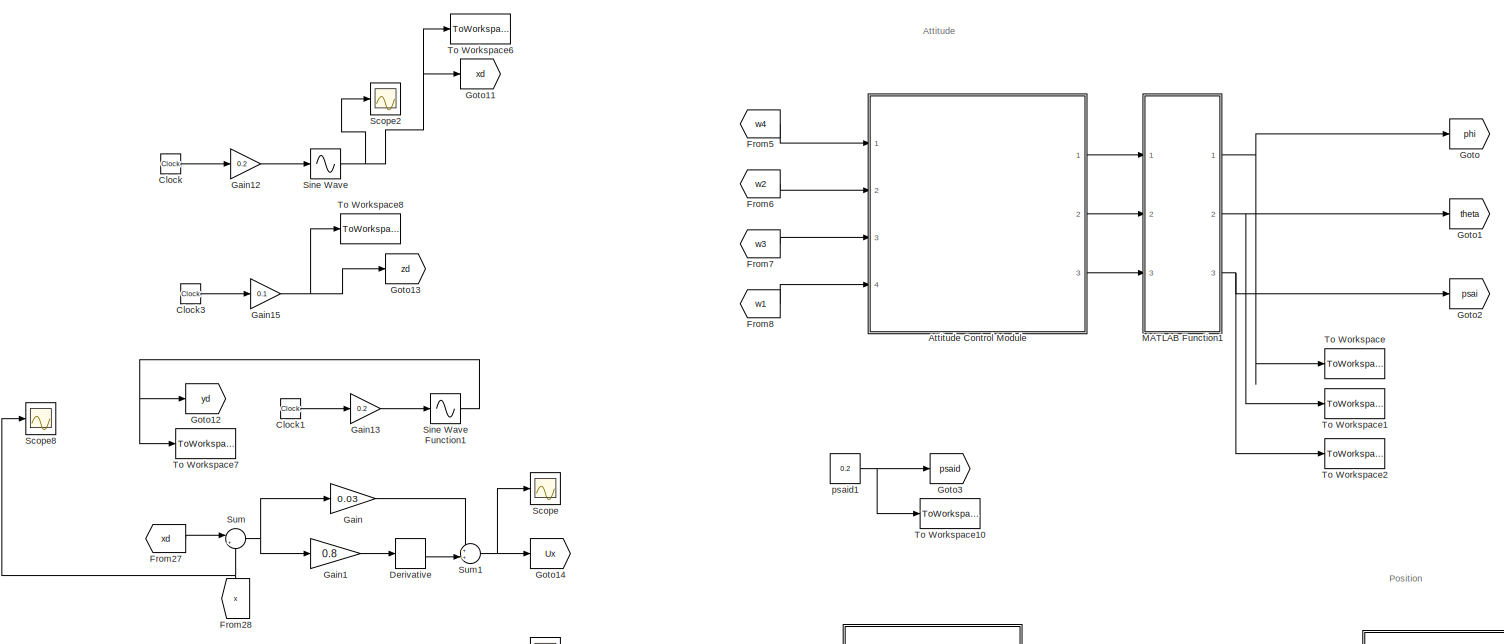
[diagram: root canvas - part 1/14, top left region]
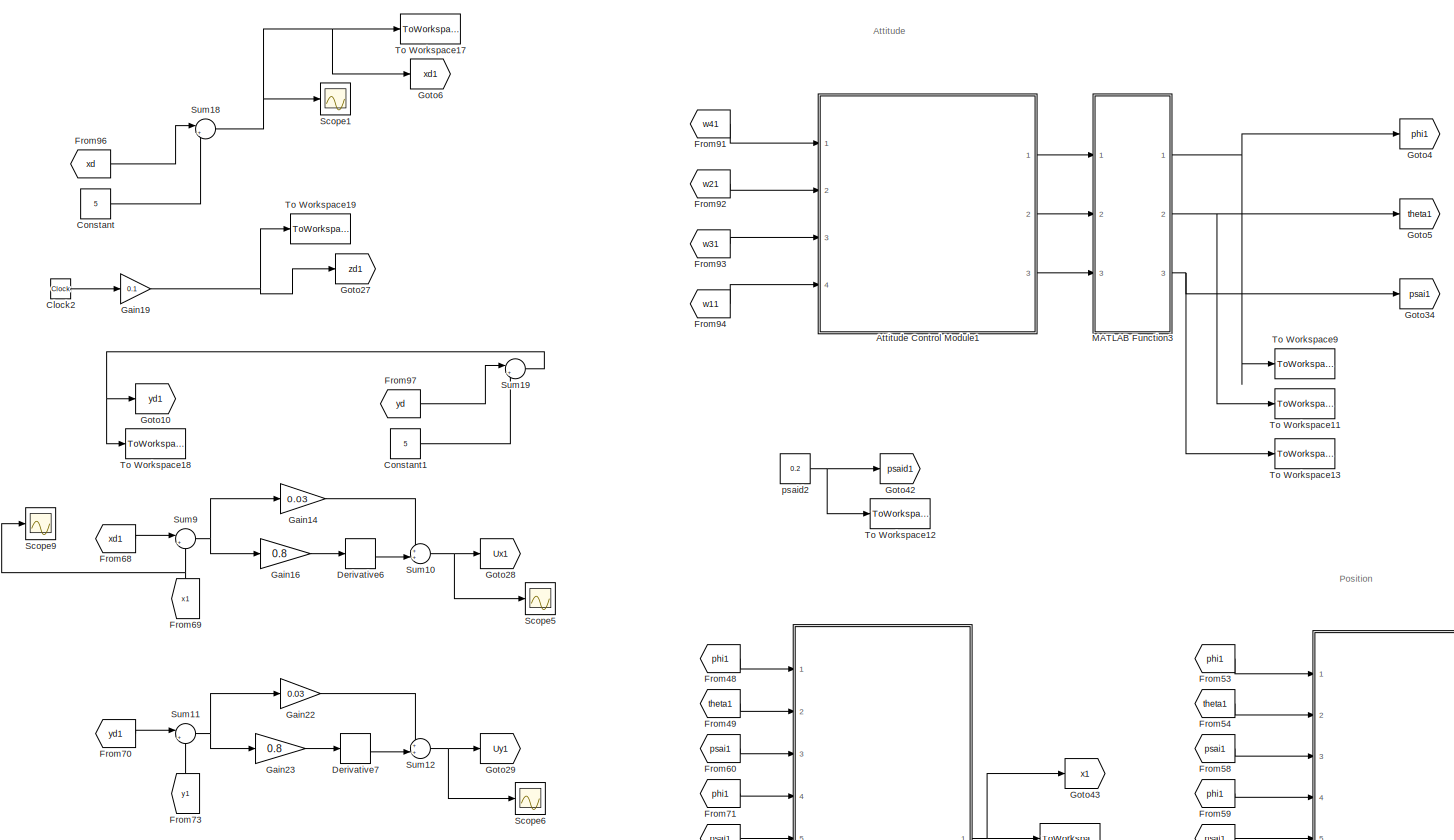
[diagram: root canvas - part 2/14, top right region]
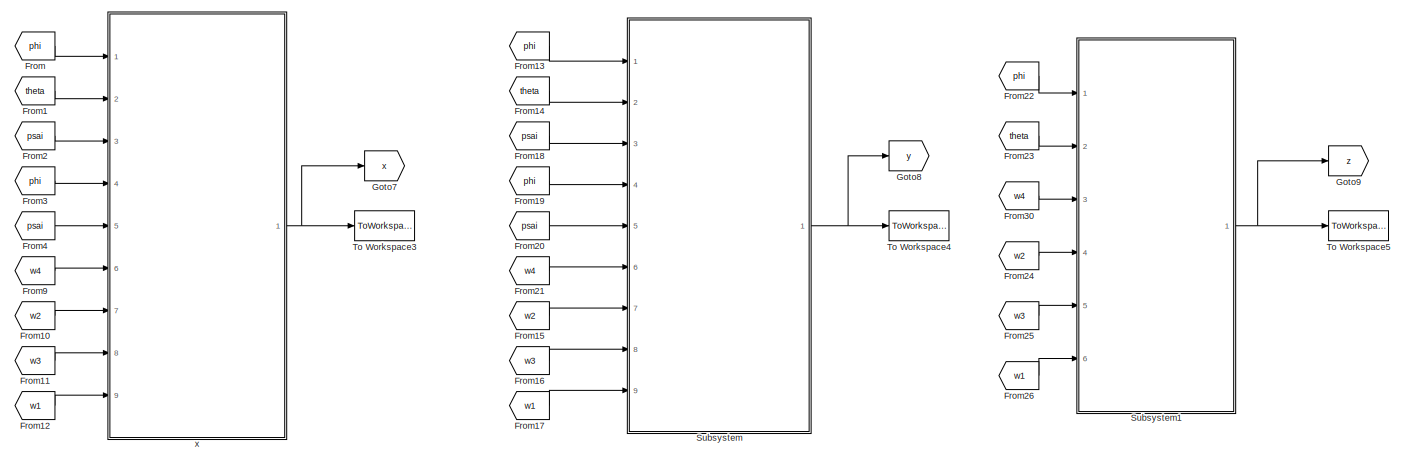
[diagram: root canvas - part 3/14, top center region]
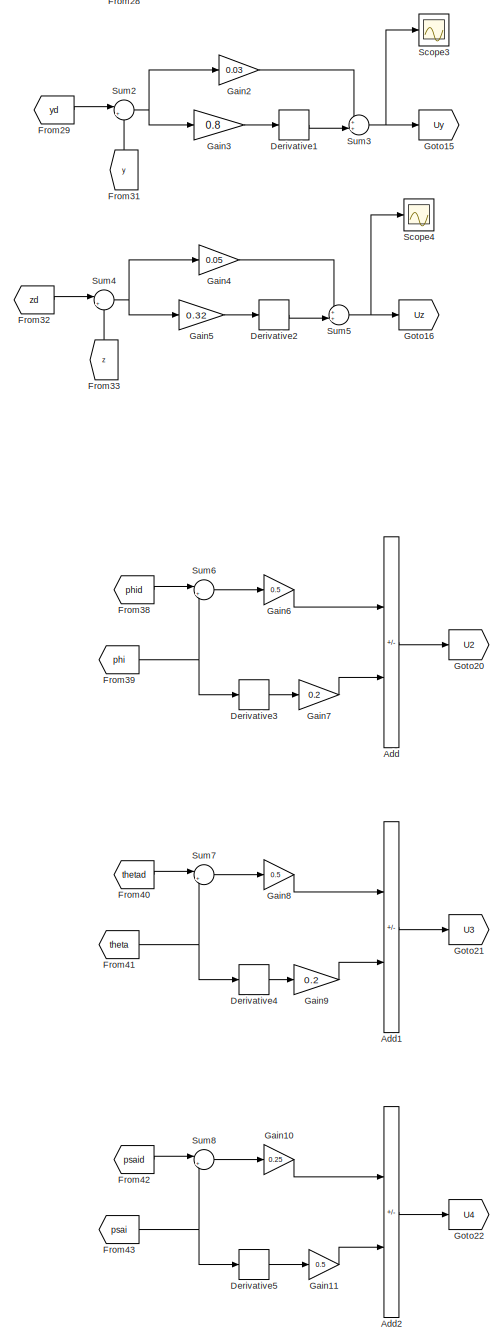
[diagram: root canvas - part 4/14, top left region]
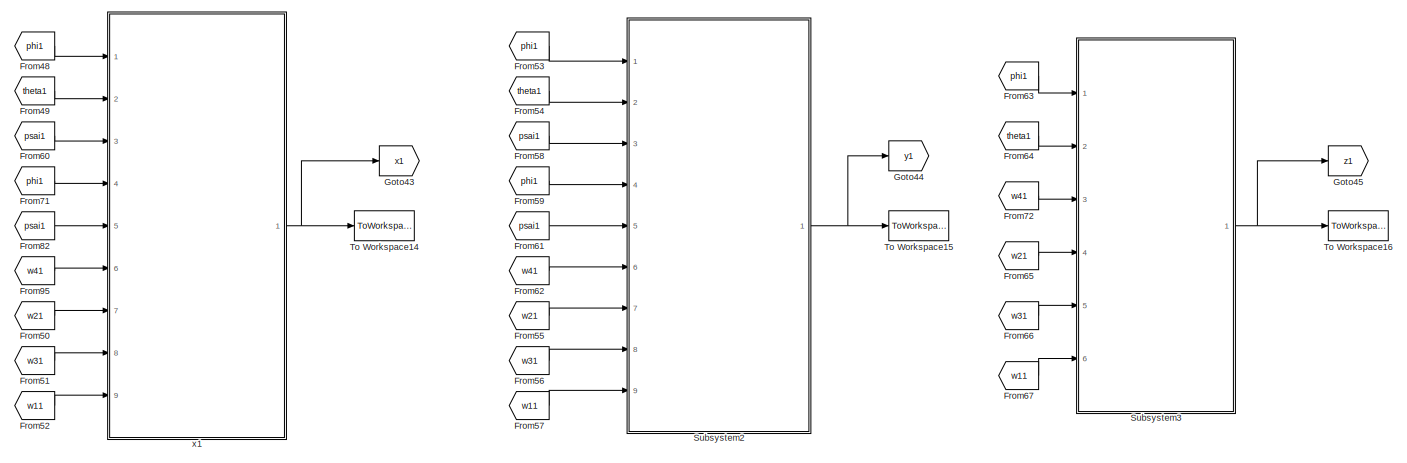
[diagram: root canvas - part 5/14, top right region]
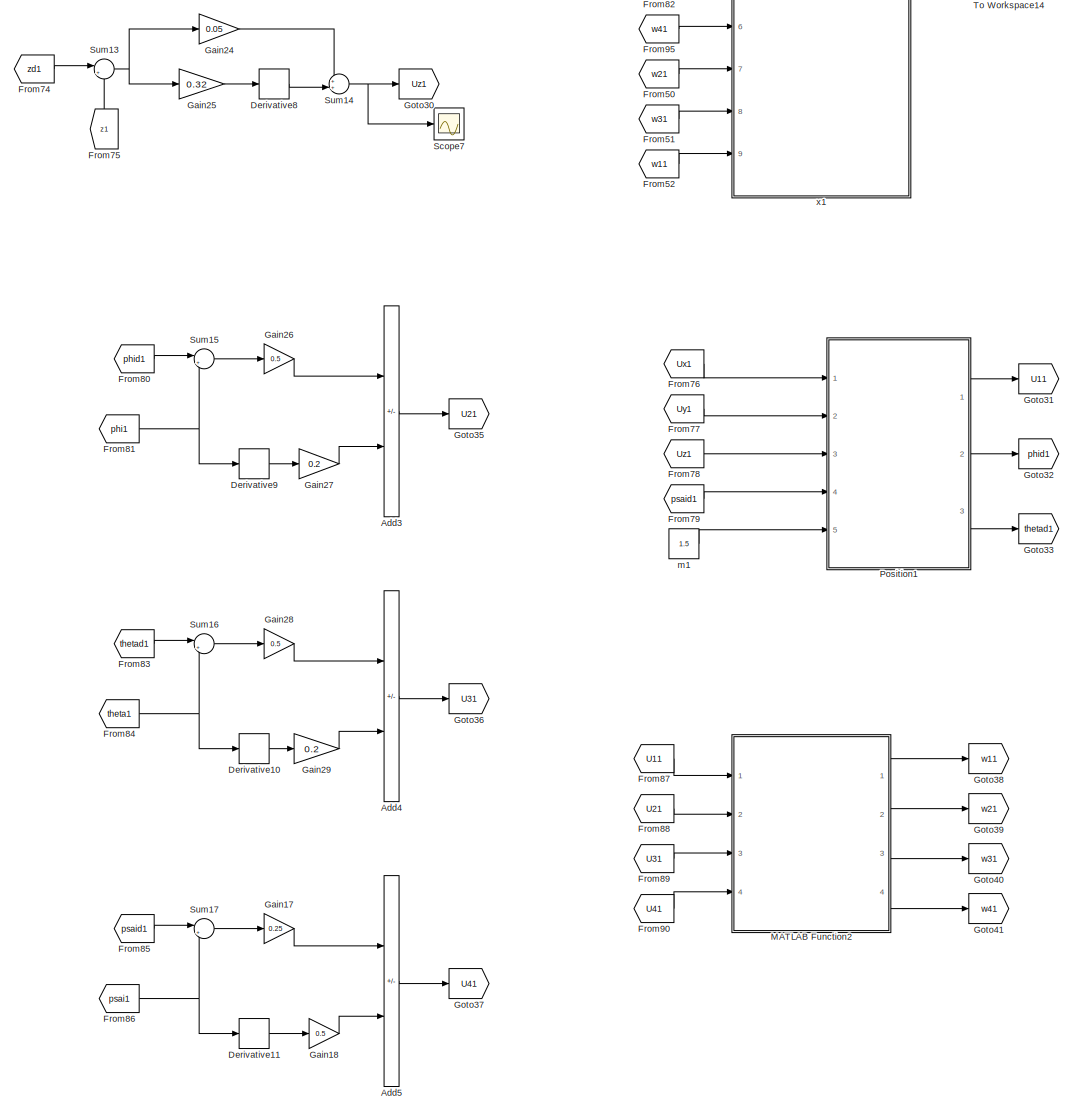
[diagram: root canvas - part 6/14, middle right region]
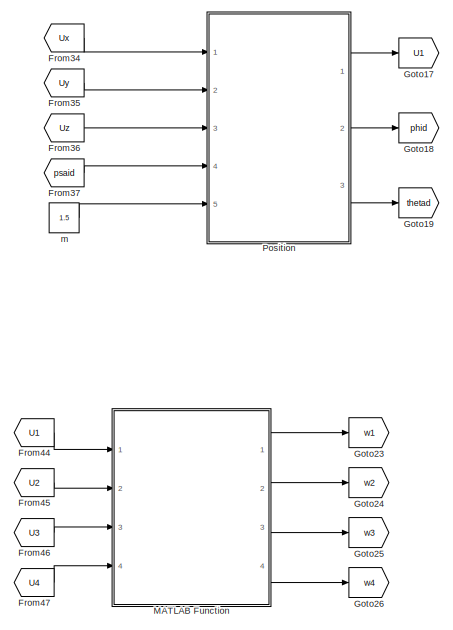
[diagram: root canvas - part 7/14, middle left region]
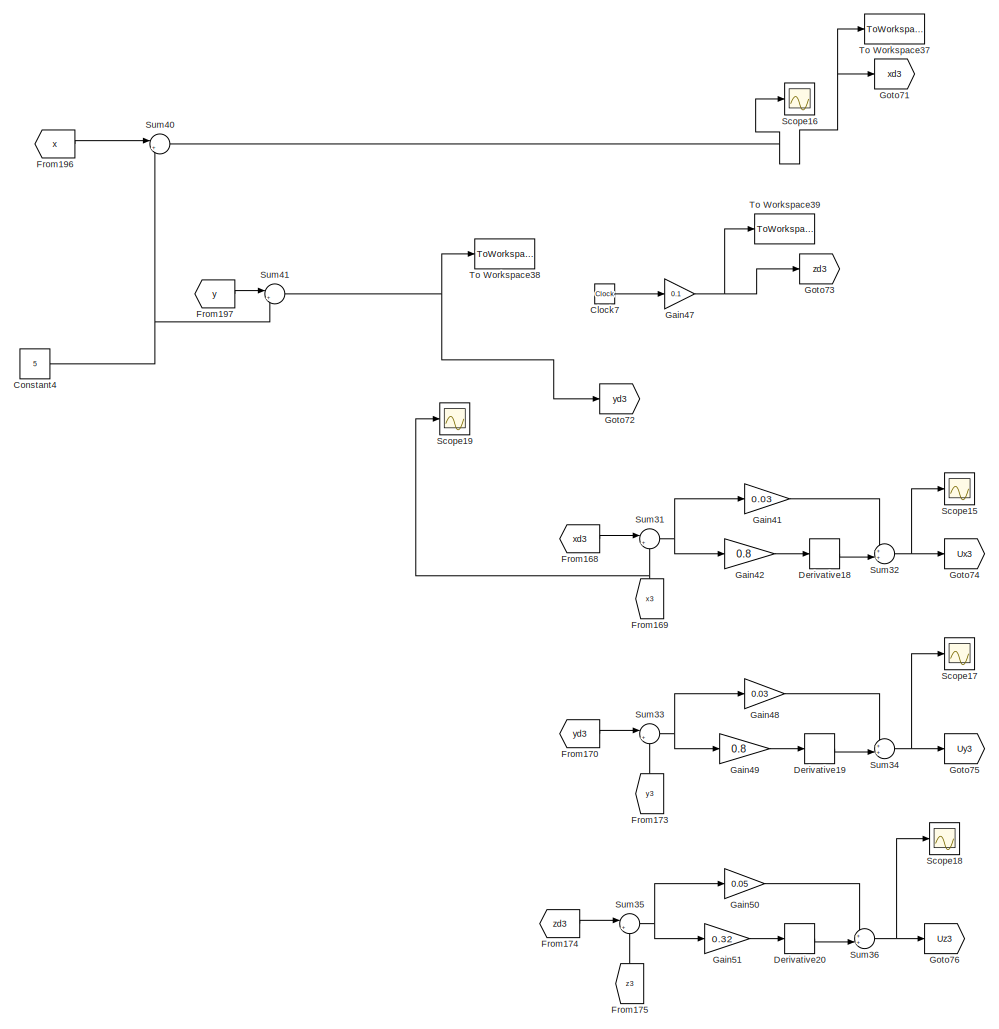
[diagram: root canvas - part 8/14, central region]
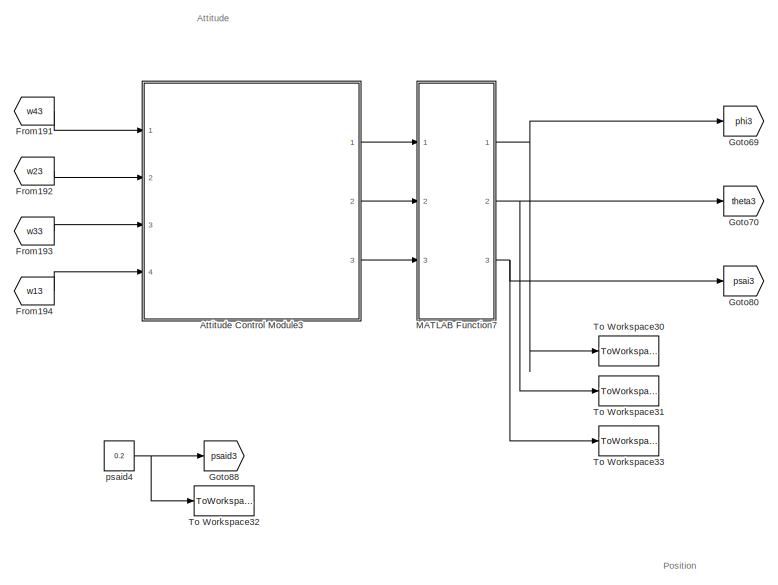
[diagram: root canvas - part 9/14, middle right region]
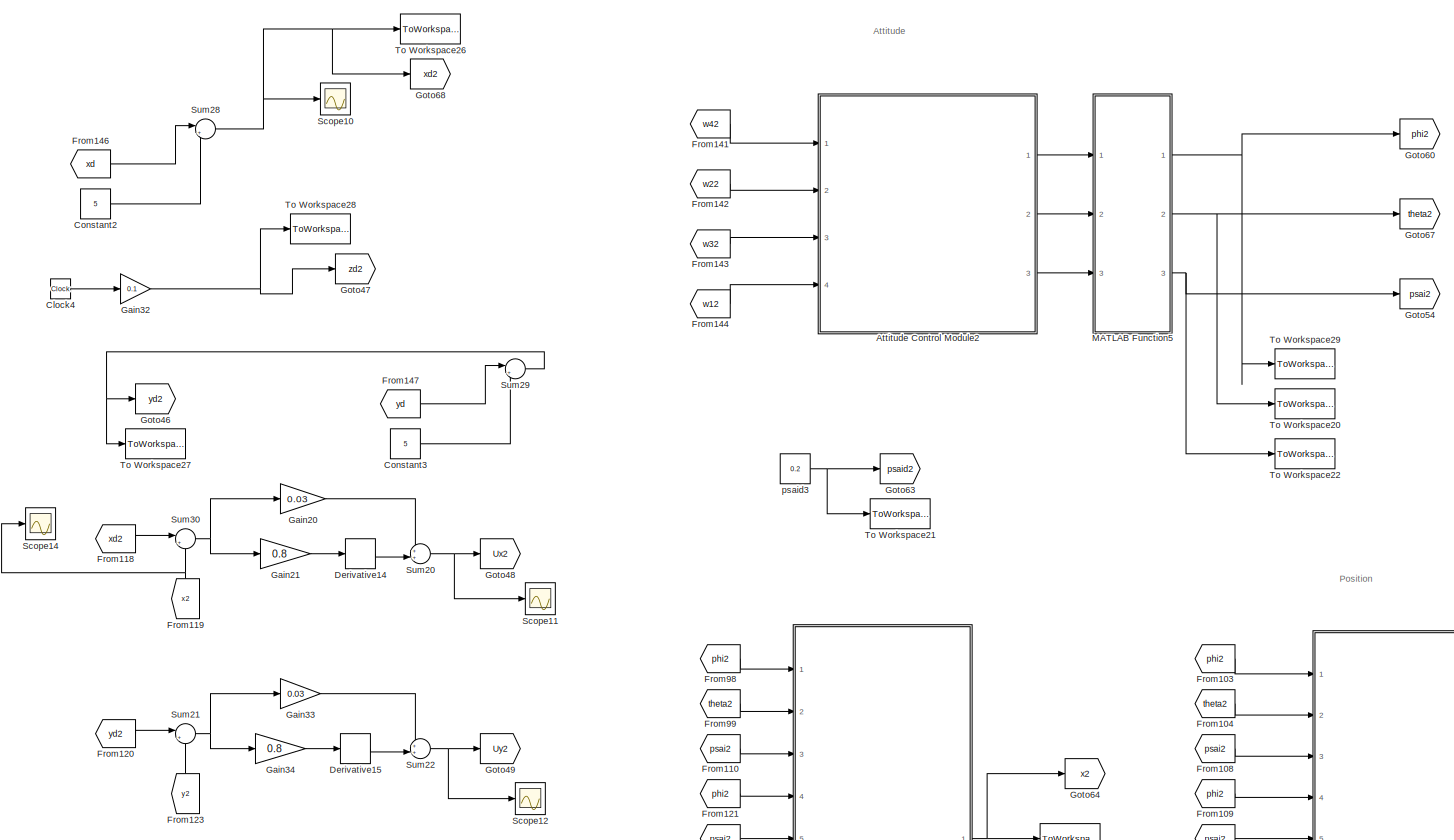
[diagram: root canvas - part 10/14, middle left region]
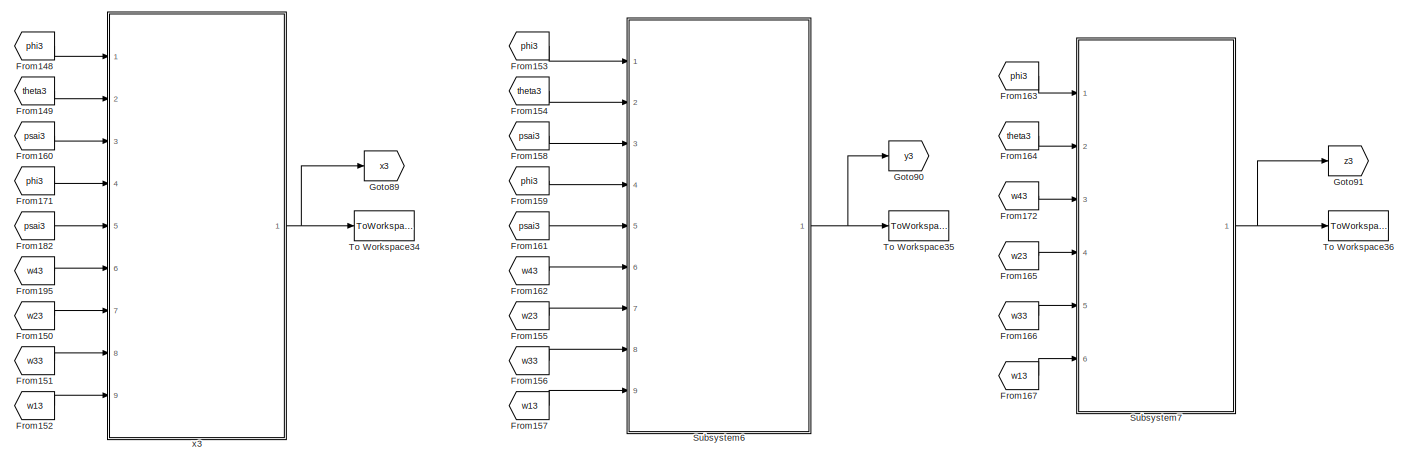
[diagram: root canvas - part 11/14, bottom right region]
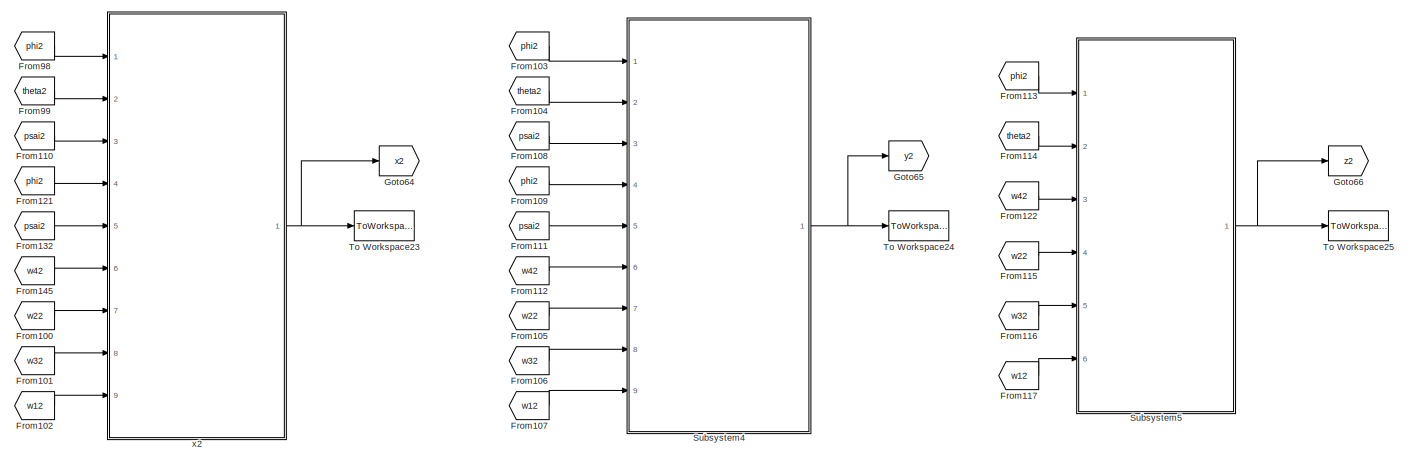
[diagram: root canvas - part 12/14, bottom left region]
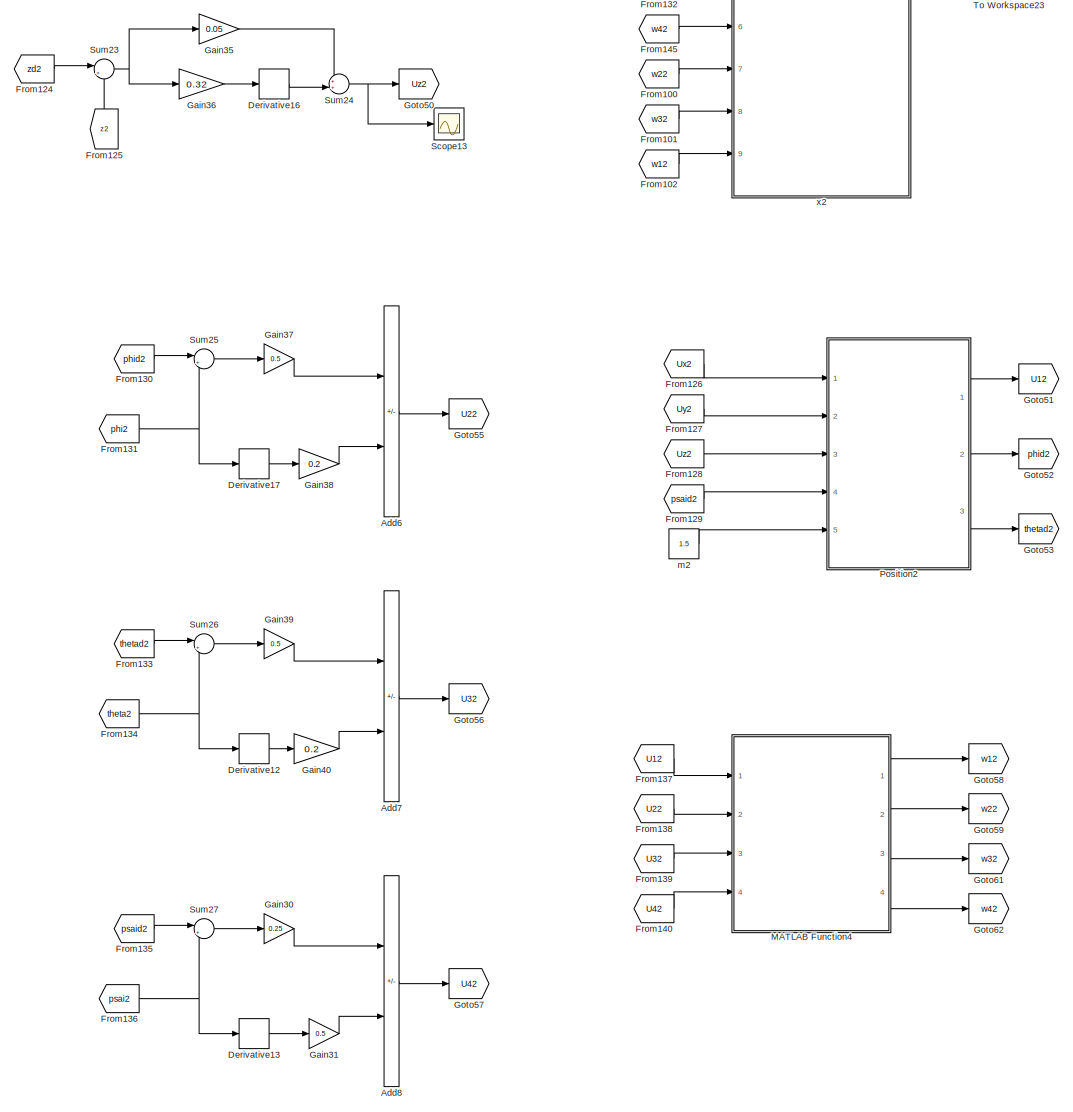
[diagram: root canvas - part 13/14, bottom left region]
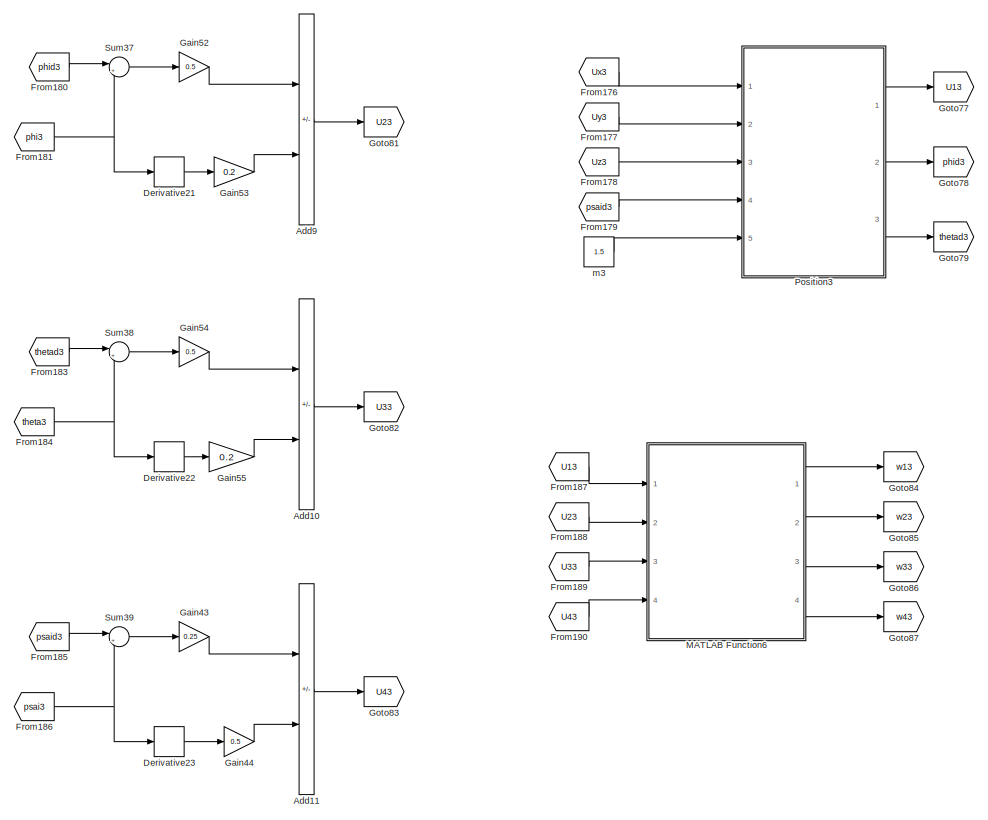
[diagram: root canvas - part 14/14, bottom right region]
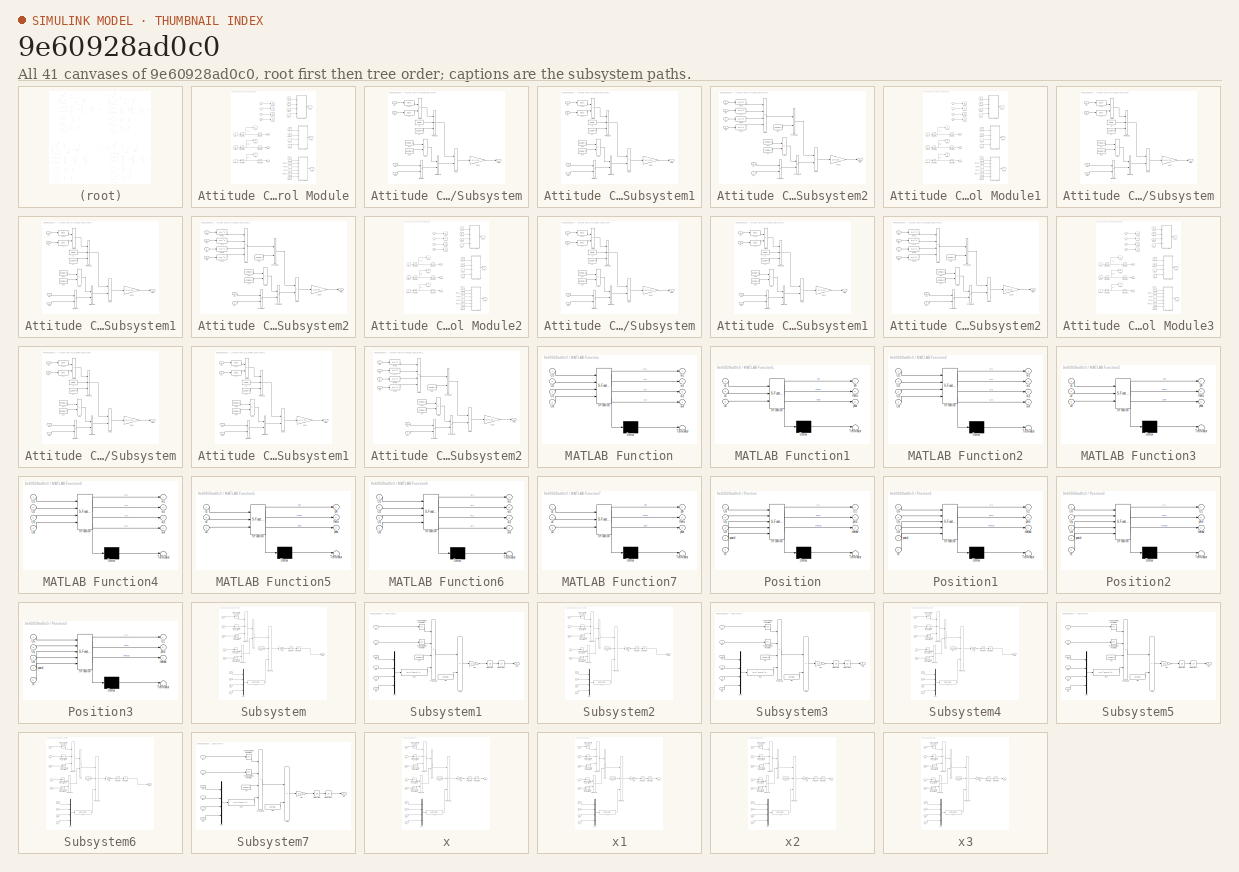
[diagram: thumbnail index - all 41 canvases of the model, root first then tree order]
MODEL slx_9e60928ad0c0
KIND model
CONFIG AbsTol = auto
CONFIG EnableMultiTasking = off
CONFIG FixedStep = 0.1
CONFIG MaxStep = auto
CONFIG MinStep = auto
CONFIG RelTol = 1e-3
CONFIG SampleTimeConstraint = Unconstrained
CONFIG SolverName = FixedStepAuto
CONFIG StartTime = 0.0
CONFIG StopTime = 150
BLOCK [Sum] Add
  IconShape = rectangular
  Inputs = +-
  Ports = [2, 1]
BLOCK [Sum] Add1
  IconShape = rectangular
  Inputs = +-
  Ports = [2, 1]
BLOCK [Sum] Add10
  IconShape = rectangular
  Inputs = +-
  Ports = [2, 1]
BLOCK [Sum] Add11
  IconShape = rectangular
  Inputs = +-
  Ports = [2, 1]
BLOCK [Sum] Add2
  IconShape = rectangular
  Inputs = +-
  Ports = [2, 1]
BLOCK [Sum] Add3
  IconShape = rectangular
  Inputs = +-
  Ports = [2, 1]
BLOCK [Sum] Add4
  IconShape = rectangular
  Inputs = +-
  Ports = [2, 1]
BLOCK [Sum] Add5
  IconShape = rectangular
  Inputs = +-
  Ports = [2, 1]
BLOCK [Sum] Add6
  IconShape = rectangular
  Inputs = +-
  Ports = [2, 1]
BLOCK [Sum] Add7
  IconShape = rectangular
  Inputs = +-
  Ports = [2, 1]
BLOCK [Sum] Add8
  IconShape = rectangular
  Inputs = +-
  Ports = [2, 1]
BLOCK [Sum] Add9
  IconShape = rectangular
  Inputs = +-
  Ports = [2, 1]
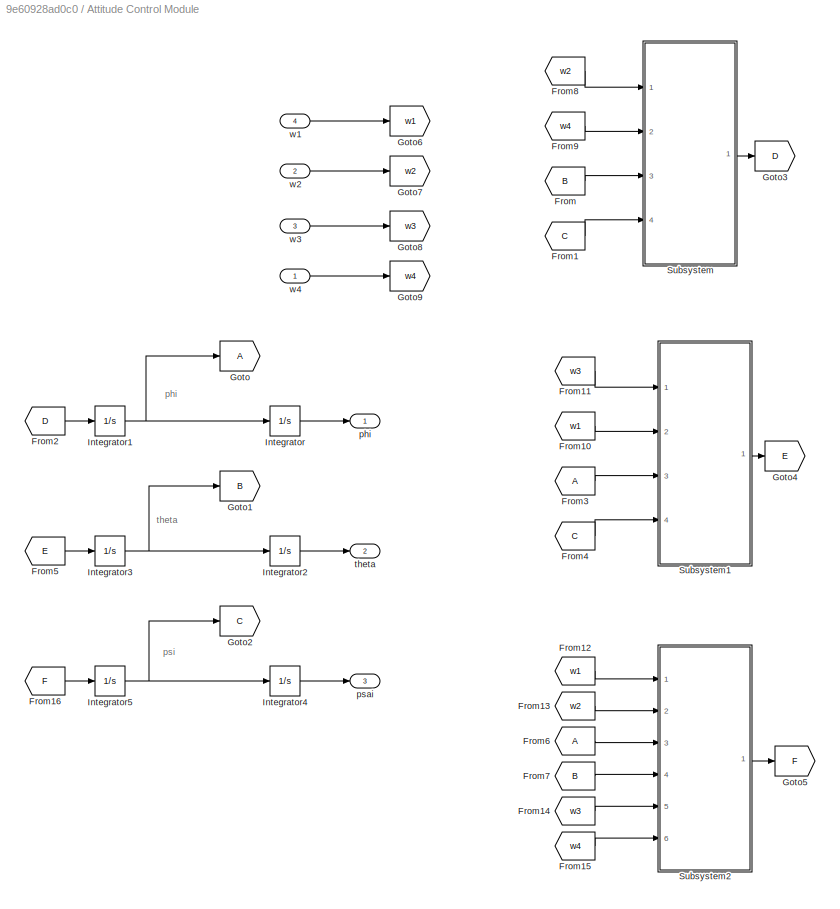
BLOCK [SubSystem] Attitude Control Module
  Ports = [4, 3]
  RequestExecContextInheritance = off
BLOCK [From] Attitude Control Module/From
  GotoTag = B
BLOCK [From] Attitude Control Module/From1
  GotoTag = C
BLOCK [From] Attitude Control Module/From10
  GotoTag = w1
BLOCK [From] Attitude Control Module/From11
  GotoTag = w3
BLOCK [From] Attitude Control Module/From12
  GotoTag = w1
BLOCK [From] Attitude Control Module/From13
  GotoTag = w2
BLOCK [From] Attitude Control Module/From14
  GotoTag = w3
BLOCK [From] Attitude Control Module/From15
  GotoTag = w4
BLOCK [From] Attitude Control Module/From16
  GotoTag = F
BLOCK [From] Attitude Control Module/From2
  GotoTag = D
BLOCK [From] Attitude Control Module/From3
BLOCK [From] Attitude Control Module/From4
  GotoTag = C
BLOCK [From] Attitude Control Module/From5
  GotoTag = E
BLOCK [From] Attitude Control Module/From6
BLOCK [From] Attitude Control Module/From7
  GotoTag = B
BLOCK [From] Attitude Control Module/From8
  GotoTag = w2
BLOCK [From] Attitude Control Module/From9
  GotoTag = w4
BLOCK [Goto] Attitude Control Module/Goto
BLOCK [Goto] Attitude Control Module/Goto1
  GotoTag = B
BLOCK [Goto] Attitude Control Module/Goto2
  GotoTag = C
BLOCK [Goto] Attitude Control Module/Goto3
  GotoTag = D
BLOCK [Goto] Attitude Control Module/Goto4
  GotoTag = E
BLOCK [Goto] Attitude Control Module/Goto5
  GotoTag = F
BLOCK [Goto] Attitude Control Module/Goto6
  GotoTag = w1
BLOCK [Goto] Attitude Control Module/Goto7
  GotoTag = w2
BLOCK [Goto] Attitude Control Module/Goto8
  GotoTag = w3
BLOCK [Goto] Attitude Control Module/Goto9
  GotoTag = w4
BLOCK [Integrator] Attitude Control Module/Integrator
  Ports = [1, 1]
BLOCK [Integrator] Attitude Control Module/Integrator1
  Ports = [1, 1]
BLOCK [Integrator] Attitude Control Module/Integrator2
  Ports = [1, 1]
BLOCK [Integrator] Attitude Control Module/Integrator3
  Ports = [1, 1]
BLOCK [Integrator] Attitude Control Module/Integrator4
  Ports = [1, 1]
BLOCK [Integrator] Attitude Control Module/Integrator5
  Ports = [1, 1]
BLOCK [SubSystem] Attitude Control Module/Subsystem
  Ports = [4, 1]
  RequestExecContextInheritance = off
BLOCK [Gain] Attitude Control Module/Subsystem/1//Jxx
  Gain = 1/(1.745e-2)
BLOCK [Sum] Attitude Control Module/Subsystem/Add
  IconShape = rectangular
  Inputs = +-
  Ports = [2, 1]
BLOCK [Sum] Attitude Control Module/Subsystem/Add1
  IconShape = rectangular
  Ports = [2, 1]
BLOCK [Sum] Attitude Control Module/Subsystem/Add2
  IconShape = rectangular
  Inputs = +-
  Ports = [2, 1]
BLOCK [Constant] Attitude Control Module/Subsystem/CT
  Value = 1.116e-5
BLOCK [Fcn] Attitude Control Module/Subsystem/Fcn
  Expr = u(1)^2
BLOCK [Fcn] Attitude Control Module/Subsystem/Fcn1
  Expr = u(1)^2
BLOCK [Inport] Attitude Control Module/Subsystem/In3
  Port = 3
BLOCK [Inport] Attitude Control Module/Subsystem/In4
  Port = 4
BLOCK [Constant] Attitude Control Module/Subsystem/Jyy
  Value = 1.745e-2
BLOCK [Constant] Attitude Control Module/Subsystem/Jzz 
  Value = 3.175e-2
BLOCK [Outport] Attitude Control Module/Subsystem/Out1
  VectorParamsAs1DForOutWhenUnconnected = off
BLOCK [Product] Attitude Control Module/Subsystem/Product
  Ports = [2, 1]
BLOCK [Product] Attitude Control Module/Subsystem/Product1
  Ports = [2, 1]
BLOCK [Product] Attitude Control Module/Subsystem/Product2
  Inputs = 3
  Ports = [3, 1]
BLOCK [Constant] Attitude Control Module/Subsystem/d
  Value = 0.225
BLOCK [Inport] Attitude Control Module/Subsystem/w2
BLOCK [Inport] Attitude Control Module/Subsystem/w4
  Port = 2
BLOCK [SubSystem] Attitude Control Module/Subsystem1
  Ports = [4, 1]
  RequestExecContextInheritance = off
BLOCK [Gain] Attitude Control Module/Subsystem1/1//Jxx
  Gain = 1/(1.745e-2)
BLOCK [Sum] Attitude Control Module/Subsystem1/Add
  IconShape = rectangular
  Inputs = +-
  Ports = [2, 1]
BLOCK [Sum] Attitude Control Module/Subsystem1/Add1
  IconShape = rectangular
  Ports = [2, 1]
BLOCK [Sum] Attitude Control Module/Subsystem1/Add2
  IconShape = rectangular
  Inputs = +-
  Ports = [2, 1]
BLOCK [Constant] Attitude Control Module/Subsystem1/CT
  Value = 1.116e-5
BLOCK [Fcn] Attitude Control Module/Subsystem1/Fcn
  Expr = u(1)^2
BLOCK [Fcn] Attitude Control Module/Subsystem1/Fcn1
  Expr = u(1)^2
BLOCK [Inport] Attitude Control Module/Subsystem1/In3
  Port = 3
BLOCK [Inport] Attitude Control Module/Subsystem1/In4
  Port = 4
BLOCK [Constant] Attitude Control Module/Subsystem1/Jxx
  Value = 1.745e-2
BLOCK [Constant] Attitude Control Module/Subsystem1/Jzz
  Value = 3.175e-2
BLOCK [Outport] Attitude Control Module/Subsystem1/Out1
  VectorParamsAs1DForOutWhenUnconnected = off
BLOCK [Product] Attitude Control Module/Subsystem1/Product
  Ports = [2, 1]
BLOCK [Product] Attitude Control Module/Subsystem1/Product1
  Ports = [2, 1]
BLOCK [Product] Attitude Control Module/Subsystem1/Product2
  Inputs = 3
  Ports = [3, 1]
BLOCK [Constant] Attitude Control Module/Subsystem1/d
  Value = 0.225
BLOCK [Inport] Attitude Control Module/Subsystem1/w1
  Port = 2
BLOCK [Inport] Attitude Control Module/Subsystem1/w3
BLOCK [SubSystem] Attitude Control Module/Subsystem2
  Ports = [6, 1]
  RequestExecContextInheritance = off
BLOCK [Gain] Attitude Control Module/Subsystem2/1//Jxx
  Gain = 1/(3.175e-2)
BLOCK [Sum] Attitude Control Module/Subsystem2/Add
  IconShape = rectangular
  Inputs = +-
  Ports = [2, 1]
BLOCK [Sum] Attitude Control Module/Subsystem2/Add1
  IconShape = rectangular
  Ports = [2, 1]
BLOCK [Sum] Attitude Control Module/Subsystem2/Add2
  IconShape = rectangular
  Inputs = +-+-
  Ports = [4, 1]
BLOCK [Constant] Attitude Control Module/Subsystem2/CM
  Value = 1.474e-7
BLOCK [Fcn] Attitude Control Module/Subsystem2/Fcn
  Expr = u(1)^2
BLOCK [Fcn] Attitude Control Module/Subsystem2/Fcn1
  Expr = u(1)^2
BLOCK [Fcn] Attitude Control Module/Subsystem2/Fcn2
  Expr = u(1)^2
BLOCK [Fcn] Attitude Control Module/Subsystem2/Fcn3
  Expr = u(1)^2
BLOCK [Inport] Attitude Control Module/Subsystem2/In3
  Port = 3
BLOCK [Inport] Attitude Control Module/Subsystem2/In4
  Port = 4
BLOCK [Constant] Attitude Control Module/Subsystem2/Jxx
  Value = 1.745e-2
BLOCK [Constant] Attitude Control Module/Subsystem2/Jyy
  Value = 1.745e-2
BLOCK [Outport] Attitude Control Module/Subsystem2/Out1
  VectorParamsAs1DForOutWhenUnconnected = off
BLOCK [Product] Attitude Control Module/Subsystem2/Product
  Ports = [2, 1]
BLOCK [Product] Attitude Control Module/Subsystem2/Product1
  Ports = [2, 1]
BLOCK [Product] Attitude Control Module/Subsystem2/Product2
  Ports = [2, 1]
BLOCK [Inport] Attitude Control Module/Subsystem2/w1
BLOCK [Inport] Attitude Control Module/Subsystem2/w2
  Port = 2
BLOCK [Inport] Attitude Control Module/Subsystem2/w3
  Port = 5
BLOCK [Inport] Attitude Control Module/Subsystem2/w4
  Port = 6
BLOCK [Outport] Attitude Control Module/phi
  VectorParamsAs1DForOutWhenUnconnected = off
BLOCK [Outport] Attitude Control Module/psai
  Port = 3
  VectorParamsAs1DForOutWhenUnconnected = off
BLOCK [Outport] Attitude Control Module/theta
  Port = 2
  VectorParamsAs1DForOutWhenUnconnected = off
BLOCK [Inport] Attitude Control Module/w1
  Port = 4
BLOCK [Inport] Attitude Control Module/w2
  Port = 2
BLOCK [Inport] Attitude Control Module/w3
  Port = 3
BLOCK [Inport] Attitude Control Module/w4
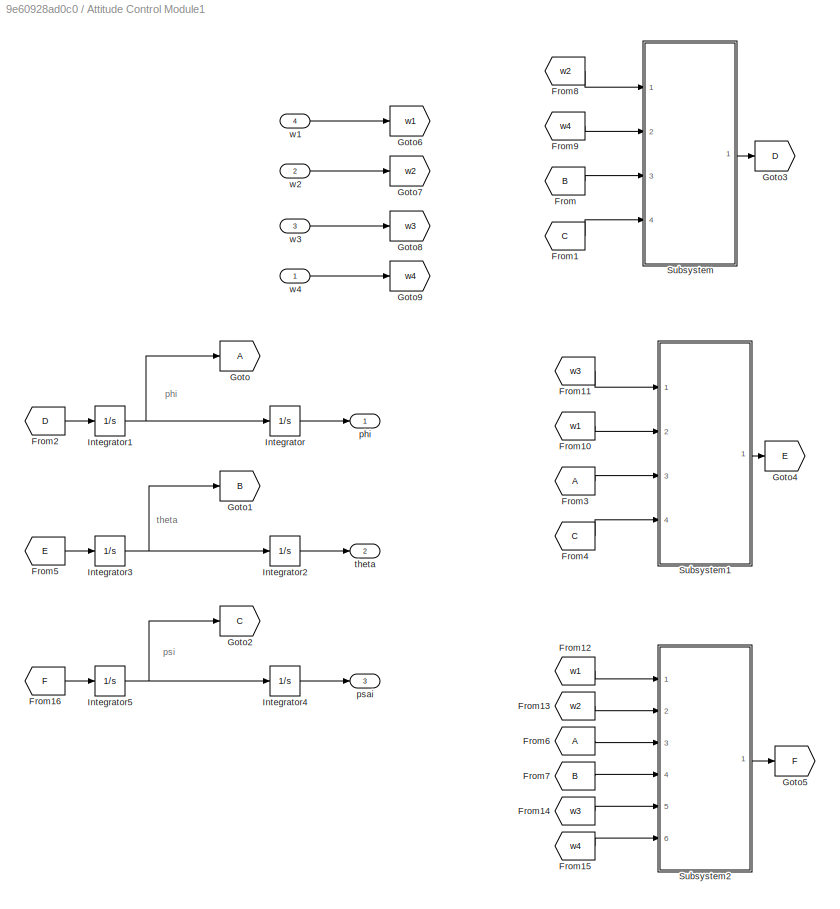
BLOCK [SubSystem] Attitude Control Module1
  Ports = [4, 3]
  RequestExecContextInheritance = off
BLOCK [From] Attitude Control Module1/From
  GotoTag = B
BLOCK [From] Attitude Control Module1/From1
  GotoTag = C
BLOCK [From] Attitude Control Module1/From10
  GotoTag = w1
BLOCK [From] Attitude Control Module1/From11
  GotoTag = w3
BLOCK [From] Attitude Control Module1/From12
  GotoTag = w1
BLOCK [From] Attitude Control Module1/From13
  GotoTag = w2
BLOCK [From] Attitude Control Module1/From14
  GotoTag = w3
BLOCK [From] Attitude Control Module1/From15
  GotoTag = w4
BLOCK [From] Attitude Control Module1/From16
  GotoTag = F
BLOCK [From] Attitude Control Module1/From2
  GotoTag = D
BLOCK [From] Attitude Control Module1/From3
BLOCK [From] Attitude Control Module1/From4
  GotoTag = C
BLOCK [From] Attitude Control Module1/From5
  GotoTag = E
BLOCK [From] Attitude Control Module1/From6
BLOCK [From] Attitude Control Module1/From7
  GotoTag = B
BLOCK [From] Attitude Control Module1/From8
  GotoTag = w2
BLOCK [From] Attitude Control Module1/From9
  GotoTag = w4
BLOCK [Goto] Attitude Control Module1/Goto
BLOCK [Goto] Attitude Control Module1/Goto1
  GotoTag = B
BLOCK [Goto] Attitude Control Module1/Goto2
  GotoTag = C
BLOCK [Goto] Attitude Control Module1/Goto3
  GotoTag = D
BLOCK [Goto] Attitude Control Module1/Goto4
  GotoTag = E
BLOCK [Goto] Attitude Control Module1/Goto5
  GotoTag = F
BLOCK [Goto] Attitude Control Module1/Goto6
  GotoTag = w1
BLOCK [Goto] Attitude Control Module1/Goto7
  GotoTag = w2
BLOCK [Goto] Attitude Control Module1/Goto8
  GotoTag = w3
BLOCK [Goto] Attitude Control Module1/Goto9
  GotoTag = w4
BLOCK [Integrator] Attitude Control Module1/Integrator
  Ports = [1, 1]
BLOCK [Integrator] Attitude Control Module1/Integrator1
  Ports = [1, 1]
BLOCK [Integrator] Attitude Control Module1/Integrator2
  Ports = [1, 1]
BLOCK [Integrator] Attitude Control Module1/Integrator3
  Ports = [1, 1]
BLOCK [Integrator] Attitude Control Module1/Integrator4
  Ports = [1, 1]
BLOCK [Integrator] Attitude Control Module1/Integrator5
  Ports = [1, 1]
BLOCK [SubSystem] Attitude Control Module1/Subsystem
  Ports = [4, 1]
  RequestExecContextInheritance = off
BLOCK [Gain] Attitude Control Module1/Subsystem/1//Jxx
  Gain = 1/(1.745e-2)
BLOCK [Sum] Attitude Control Module1/Subsystem/Add
  IconShape = rectangular
  Inputs = +-
  Ports = [2, 1]
BLOCK [Sum] Attitude Control Module1/Subsystem/Add1
  IconShape = rectangular
  Ports = [2, 1]
BLOCK [Sum] Attitude Control Module1/Subsystem/Add2
  IconShape = rectangular
  Inputs = +-
  Ports = [2, 1]
BLOCK [Constant] Attitude Control Module1/Subsystem/CT
  Value = 1.116e-5
BLOCK [Fcn] Attitude Control Module1/Subsystem/Fcn
  Expr = u(1)^2
BLOCK [Fcn] Attitude Control Module1/Subsystem/Fcn1
  Expr = u(1)^2
BLOCK [Inport] Attitude Control Module1/Subsystem/In3
  Port = 3
BLOCK [Inport] Attitude Control Module1/Subsystem/In4
  Port = 4
BLOCK [Constant] Attitude Control Module1/Subsystem/Jyy
  Value = 1.745e-2
BLOCK [Constant] Attitude Control Module1/Subsystem/Jzz 
  Value = 3.175e-2
BLOCK [Outport] Attitude Control Module1/Subsystem/Out1
  VectorParamsAs1DForOutWhenUnconnected = off
BLOCK [Product] Attitude Control Module1/Subsystem/Product
  Ports = [2, 1]
BLOCK [Product] Attitude Control Module1/Subsystem/Product1
  Ports = [2, 1]
BLOCK [Product] Attitude Control Module1/Subsystem/Product2
  Inputs = 3
  Ports = [3, 1]
BLOCK [Constant] Attitude Control Module1/Subsystem/d
  Value = 0.225
BLOCK [Inport] Attitude Control Module1/Subsystem/w2
BLOCK [Inport] Attitude Control Module1/Subsystem/w4
  Port = 2
BLOCK [SubSystem] Attitude Control Module1/Subsystem1
  Ports = [4, 1]
  RequestExecContextInheritance = off
BLOCK [Gain] Attitude Control Module1/Subsystem1/1//Jxx
  Gain = 1/(1.745e-2)
BLOCK [Sum] Attitude Control Module1/Subsystem1/Add
  IconShape = rectangular
  Inputs = +-
  Ports = [2, 1]
BLOCK [Sum] Attitude Control Module1/Subsystem1/Add1
  IconShape = rectangular
  Ports = [2, 1]
BLOCK [Sum] Attitude Control Module1/Subsystem1/Add2
  IconShape = rectangular
  Inputs = +-
  Ports = [2, 1]
BLOCK [Constant] Attitude Control Module1/Subsystem1/CT
  Value = 1.116e-5
BLOCK [Fcn] Attitude Control Module1/Subsystem1/Fcn
  Expr = u(1)^2
BLOCK [Fcn] Attitude Control Module1/Subsystem1/Fcn1
  Expr = u(1)^2
BLOCK [Inport] Attitude Control Module1/Subsystem1/In3
  Port = 3
BLOCK [Inport] Attitude Control Module1/Subsystem1/In4
  Port = 4
BLOCK [Constant] Attitude Control Module1/Subsystem1/Jxx
  Value = 1.745e-2
BLOCK [Constant] Attitude Control Module1/Subsystem1/Jzz
  Value = 3.175e-2
BLOCK [Outport] Attitude Control Module1/Subsystem1/Out1
  VectorParamsAs1DForOutWhenUnconnected = off
BLOCK [Product] Attitude Control Module1/Subsystem1/Product
  Ports = [2, 1]
BLOCK [Product] Attitude Control Module1/Subsystem1/Product1
  Ports = [2, 1]
BLOCK [Product] Attitude Control Module1/Subsystem1/Product2
  Inputs = 3
  Ports = [3, 1]
BLOCK [Constant] Attitude Control Module1/Subsystem1/d
  Value = 0.225
BLOCK [Inport] Attitude Control Module1/Subsystem1/w1
  Port = 2
BLOCK [Inport] Attitude Control Module1/Subsystem1/w3
BLOCK [SubSystem] Attitude Control Module1/Subsystem2
  Ports = [6, 1]
  RequestExecContextInheritance = off
BLOCK [Gain] Attitude Control Module1/Subsystem2/1//Jxx
  Gain = 1/(3.175e-2)
BLOCK [Sum] Attitude Control Module1/Subsystem2/Add
  IconShape = rectangular
  Inputs = +-
  Ports = [2, 1]
BLOCK [Sum] Attitude Control Module1/Subsystem2/Add1
  IconShape = rectangular
  Ports = [2, 1]
BLOCK [Sum] Attitude Control Module1/Subsystem2/Add2
  IconShape = rectangular
  Inputs = +-+-
  Ports = [4, 1]
BLOCK [Constant] Attitude Control Module1/Subsystem2/CM
  Value = 1.474e-7
BLOCK [Fcn] Attitude Control Module1/Subsystem2/Fcn
  Expr = u(1)^2
BLOCK [Fcn] Attitude Control Module1/Subsystem2/Fcn1
  Expr = u(1)^2
BLOCK [Fcn] Attitude Control Module1/Subsystem2/Fcn2
  Expr = u(1)^2
BLOCK [Fcn] Attitude Control Module1/Subsystem2/Fcn3
  Expr = u(1)^2
BLOCK [Inport] Attitude Control Module1/Subsystem2/In3
  Port = 3
BLOCK [Inport] Attitude Control Module1/Subsystem2/In4
  Port = 4
BLOCK [Constant] Attitude Control Module1/Subsystem2/Jxx
  Value = 1.745e-2
BLOCK [Constant] Attitude Control Module1/Subsystem2/Jyy
  Value = 1.745e-2
BLOCK [Outport] Attitude Control Module1/Subsystem2/Out1
  VectorParamsAs1DForOutWhenUnconnected = off
BLOCK [Product] Attitude Control Module1/Subsystem2/Product
  Ports = [2, 1]
BLOCK [Product] Attitude Control Module1/Subsystem2/Product1
  Ports = [2, 1]
BLOCK [Product] Attitude Control Module1/Subsystem2/Product2
  Ports = [2, 1]
BLOCK [Inport] Attitude Control Module1/Subsystem2/w1
BLOCK [Inport] Attitude Control Module1/Subsystem2/w2
  Port = 2
BLOCK [Inport] Attitude Control Module1/Subsystem2/w3
  Port = 5
BLOCK [Inport] Attitude Control Module1/Subsystem2/w4
  Port = 6
BLOCK [Outport] Attitude Control Module1/phi
  VectorParamsAs1DForOutWhenUnconnected = off
BLOCK [Outport] Attitude Control Module1/psai
  Port = 3
  VectorParamsAs1DForOutWhenUnconnected = off
BLOCK [Outport] Attitude Control Module1/theta
  Port = 2
  VectorParamsAs1DForOutWhenUnconnected = off
BLOCK [Inport] Attitude Control Module1/w1
  Port = 4
BLOCK [Inport] Attitude Control Module1/w2
  Port = 2
BLOCK [Inport] Attitude Control Module1/w3
  Port = 3
BLOCK [Inport] Attitude Control Module1/w4
BLOCK [SubSystem] Attitude Control Module2
  Ports = [4, 3]
  RequestExecContextInheritance = off
BLOCK [From] Attitude Control Module2/From
  GotoTag = B
BLOCK [From] Attitude Control Module2/From1
  GotoTag = C
BLOCK [From] Attitude Control Module2/From10
  GotoTag = w1
BLOCK [From] Attitude Control Module2/From11
  GotoTag = w3
BLOCK [From] Attitude Control Module2/From12
  GotoTag = w1
BLOCK [From] Attitude Control Module2/From13
  GotoTag = w2
BLOCK [From] Attitude Control Module2/From14
  GotoTag = w3
BLOCK [From] Attitude Control Module2/From15
  GotoTag = w4
BLOCK [From] Attitude Control Module2/From16
  GotoTag = F
BLOCK [From] Attitude Control Module2/From2
  GotoTag = D
BLOCK [From] Attitude Control Module2/From3
BLOCK [From] Attitude Control Module2/From4
  GotoTag = C
BLOCK [From] Attitude Control Module2/From5
  GotoTag = E
BLOCK [From] Attitude Control Module2/From6
BLOCK [From] Attitude Control Module2/From7
  GotoTag = B
BLOCK [From] Attitude Control Module2/From8
  GotoTag = w2
BLOCK [From] Attitude Control Module2/From9
  GotoTag = w4
BLOCK [Goto] Attitude Control Module2/Goto
BLOCK [Goto] Attitude Control Module2/Goto1
  GotoTag = B
BLOCK [Goto] Attitude Control Module2/Goto2
  GotoTag = C
BLOCK [Goto] Attitude Control Module2/Goto3
  GotoTag = D
BLOCK [Goto] Attitude Control Module2/Goto4
  GotoTag = E
BLOCK [Goto] Attitude Control Module2/Goto5
  GotoTag = F
BLOCK [Goto] Attitude Control Module2/Goto6
  GotoTag = w1
BLOCK [Goto] Attitude Control Module2/Goto7
  GotoTag = w2
BLOCK [Goto] Attitude Control Module2/Goto8
  GotoTag = w3
BLOCK [Goto] Attitude Control Module2/Goto9
  GotoTag = w4
BLOCK [Integrator] Attitude Control Module2/Integrator
  Ports = [1, 1]
BLOCK [Integrator] Attitude Control Module2/Integrator1
  Ports = [1, 1]
BLOCK [Integrator] Attitude Control Module2/Integrator2
  Ports = [1, 1]
BLOCK [Integrator] Attitude Control Module2/Integrator3
  Ports = [1, 1]
BLOCK [Integrator] Attitude Control Module2/Integrator4
  Ports = [1, 1]
BLOCK [Integrator] Attitude Control Module2/Integrator5
  Ports = [1, 1]
BLOCK [SubSystem] Attitude Control Module2/Subsystem
  Ports = [4, 1]
  RequestExecContextInheritance = off
BLOCK [Gain] Attitude Control Module2/Subsystem/1//Jxx
  Gain = 1/(1.745e-2)
BLOCK [Sum] Attitude Control Module2/Subsystem/Add
  IconShape = rectangular
  Inputs = +-
  Ports = [2, 1]
BLOCK [Sum] Attitude Control Module2/Subsystem/Add1
  IconShape = rectangular
  Ports = [2, 1]
BLOCK [Sum] Attitude Control Module2/Subsystem/Add2
  IconShape = rectangular
  Inputs = +-
  Ports = [2, 1]
BLOCK [Constant] Attitude Control Module2/Subsystem/CT
  Value = 1.116e-5
BLOCK [Fcn] Attitude Control Module2/Subsystem/Fcn
  Expr = u(1)^2
BLOCK [Fcn] Attitude Control Module2/Subsystem/Fcn1
  Expr = u(1)^2
BLOCK [Inport] Attitude Control Module2/Subsystem/In3
  Port = 3
BLOCK [Inport] Attitude Control Module2/Subsystem/In4
  Port = 4
BLOCK [Constant] Attitude Control Module2/Subsystem/Jyy
  Value = 1.745e-2
BLOCK [Constant] Attitude Control Module2/Subsystem/Jzz 
  Value = 3.175e-2
BLOCK [Outport] Attitude Control Module2/Subsystem/Out1
  VectorParamsAs1DForOutWhenUnconnected = off
BLOCK [Product] Attitude Control Module2/Subsystem/Product
  Ports = [2, 1]
BLOCK [Product] Attitude Control Module2/Subsystem/Product1
  Ports = [2, 1]
BLOCK [Product] Attitude Control Module2/Subsystem/Product2
  Inputs = 3
  Ports = [3, 1]
BLOCK [Constant] Attitude Control Module2/Subsystem/d
  Value = 0.225
BLOCK [Inport] Attitude Control Module2/Subsystem/w2
BLOCK [Inport] Attitude Control Module2/Subsystem/w4
  Port = 2
BLOCK [SubSystem] Attitude Control Module2/Subsystem1
  Ports = [4, 1]
  RequestExecContextInheritance = off
BLOCK [Gain] Attitude Control Module2/Subsystem1/1//Jxx
  Gain = 1/(1.745e-2)
BLOCK [Sum] Attitude Control Module2/Subsystem1/Add
  IconShape = rectangular
  Inputs = +-
  Ports = [2, 1]
BLOCK [Sum] Attitude Control Module2/Subsystem1/Add1
  IconShape = rectangular
  Ports = [2, 1]
BLOCK [Sum] Attitude Control Module2/Subsystem1/Add2
  IconShape = rectangular
  Inputs = +-
  Ports = [2, 1]
BLOCK [Constant] Attitude Control Module2/Subsystem1/CT
  Value = 1.116e-5
BLOCK [Fcn] Attitude Control Module2/Subsystem1/Fcn
  Expr = u(1)^2
BLOCK [Fcn] Attitude Control Module2/Subsystem1/Fcn1
  Expr = u(1)^2
BLOCK [Inport] Attitude Control Module2/Subsystem1/In3
  Port = 3
BLOCK [Inport] Attitude Control Module2/Subsystem1/In4
  Port = 4
BLOCK [Constant] Attitude Control Module2/Subsystem1/Jxx
  Value = 1.745e-2
BLOCK [Constant] Attitude Control Module2/Subsystem1/Jzz
  Value = 3.175e-2
BLOCK [Outport] Attitude Control Module2/Subsystem1/Out1
  VectorParamsAs1DForOutWhenUnconnected = off
BLOCK [Product] Attitude Control Module2/Subsystem1/Product
  Ports = [2, 1]
BLOCK [Product] Attitude Control Module2/Subsystem1/Product1
  Ports = [2, 1]
BLOCK [Product] Attitude Control Module2/Subsystem1/Product2
  Inputs = 3
  Ports = [3, 1]
BLOCK [Constant] Attitude Control Module2/Subsystem1/d
  Value = 0.225
BLOCK [Inport] Attitude Control Module2/Subsystem1/w1
  Port = 2
BLOCK [Inport] Attitude Control Module2/Subsystem1/w3
BLOCK [SubSystem] Attitude Control Module2/Subsystem2
  Ports = [6, 1]
  RequestExecContextInheritance = off
BLOCK [Gain] Attitude Control Module2/Subsystem2/1//Jxx
  Gain = 1/(3.175e-2)
BLOCK [Sum] Attitude Control Module2/Subsystem2/Add
  IconShape = rectangular
  Inputs = +-
  Ports = [2, 1]
BLOCK [Sum] Attitude Control Module2/Subsystem2/Add1
  IconShape = rectangular
  Ports = [2, 1]
BLOCK [Sum] Attitude Control Module2/Subsystem2/Add2
  IconShape = rectangular
  Inputs = +-+-
  Ports = [4, 1]
BLOCK [Constant] Attitude Control Module2/Subsystem2/CM
  Value = 1.474e-7
BLOCK [Fcn] Attitude Control Module2/Subsystem2/Fcn
  Expr = u(1)^2
BLOCK [Fcn] Attitude Control Module2/Subsystem2/Fcn1
  Expr = u(1)^2
BLOCK [Fcn] Attitude Control Module2/Subsystem2/Fcn2
  Expr = u(1)^2
BLOCK [Fcn] Attitude Control Module2/Subsystem2/Fcn3
  Expr = u(1)^2
BLOCK [Inport] Attitude Control Module2/Subsystem2/In3
  Port = 3
BLOCK [Inport] Attitude Control Module2/Subsystem2/In4
  Port = 4
BLOCK [Constant] Attitude Control Module2/Subsystem2/Jxx
  Value = 1.745e-2
BLOCK [Constant] Attitude Control Module2/Subsystem2/Jyy
  Value = 1.745e-2
BLOCK [Outport] Attitude Control Module2/Subsystem2/Out1
  VectorParamsAs1DForOutWhenUnconnected = off
BLOCK [Product] Attitude Control Module2/Subsystem2/Product
  Ports = [2, 1]
BLOCK [Product] Attitude Control Module2/Subsystem2/Product1
  Ports = [2, 1]
BLOCK [Product] Attitude Control Module2/Subsystem2/Product2
  Ports = [2, 1]
BLOCK [Inport] Attitude Control Module2/Subsystem2/w1
BLOCK [Inport] Attitude Control Module2/Subsystem2/w2
  Port = 2
BLOCK [Inport] Attitude Control Module2/Subsystem2/w3
  Port = 5
BLOCK [Inport] Attitude Control Module2/Subsystem2/w4
  Port = 6
BLOCK [Outport] Attitude Control Module2/phi
  VectorParamsAs1DForOutWhenUnconnected = off
BLOCK [Outport] Attitude Control Module2/psai
  Port = 3
  VectorParamsAs1DForOutWhenUnconnected = off
BLOCK [Outport] Attitude Control Module2/theta
  Port = 2
  VectorParamsAs1DForOutWhenUnconnected = off
BLOCK [Inport] Attitude Control Module2/w1
  Port = 4
BLOCK [Inport] Attitude Control Module2/w2
  Port = 2
BLOCK [Inport] Attitude Control Module2/w3
  Port = 3
BLOCK [Inport] Attitude Control Module2/w4
BLOCK [SubSystem] Attitude Control Module3
  Ports = [4, 3]
  RequestExecContextInheritance = off
BLOCK [From] Attitude Control Module3/From
  GotoTag = B
BLOCK [From] Attitude Control Module3/From1
  GotoTag = C
BLOCK [From] Attitude Control Module3/From10
  GotoTag = w1
BLOCK [From] Attitude Control Module3/From11
  GotoTag = w3
BLOCK [From] Attitude Control Module3/From12
  GotoTag = w1
BLOCK [From] Attitude Control Module3/From13
  GotoTag = w2
BLOCK [From] Attitude Control Module3/From14
  GotoTag = w3
BLOCK [From] Attitude Control Module3/From15
  GotoTag = w4
BLOCK [From] Attitude Control Module3/From16
  GotoTag = F
BLOCK [From] Attitude Control Module3/From2
  GotoTag = D
BLOCK [From] Attitude Control Module3/From3
BLOCK [From] Attitude Control Module3/From4
  GotoTag = C
BLOCK [From] Attitude Control Module3/From5
  GotoTag = E
BLOCK [From] Attitude Control Module3/From6
BLOCK [From] Attitude Control Module3/From7
  GotoTag = B
BLOCK [From] Attitude Control Module3/From8
  GotoTag = w2
BLOCK [From] Attitude Control Module3/From9
  GotoTag = w4
BLOCK [Goto] Attitude Control Module3/Goto
BLOCK [Goto] Attitude Control Module3/Goto1
  GotoTag = B
BLOCK [Goto] Attitude Control Module3/Goto2
  GotoTag = C
BLOCK [Goto] Attitude Control Module3/Goto3
  GotoTag = D
BLOCK [Goto] Attitude Control Module3/Goto4
  GotoTag = E
BLOCK [Goto] Attitude Control Module3/Goto5
  GotoTag = F
BLOCK [Goto] Attitude Control Module3/Goto6
  GotoTag = w1
BLOCK [Goto] Attitude Control Module3/Goto7
  GotoTag = w2
BLOCK [Goto] Attitude Control Module3/Goto8
  GotoTag = w3
BLOCK [Goto] Attitude Control Module3/Goto9
  GotoTag = w4
BLOCK [Integrator] Attitude Control Module3/Integrator
  Ports = [1, 1]
BLOCK [Integrator] Attitude Control Module3/Integrator1
  Ports = [1, 1]
BLOCK [Integrator] Attitude Control Module3/Integrator2
  Ports = [1, 1]
BLOCK [Integrator] Attitude Control Module3/Integrator3
  Ports = [1, 1]
BLOCK [Integrator] Attitude Control Module3/Integrator4
  Ports = [1, 1]
BLOCK [Integrator] Attitude Control Module3/Integrator5
  Ports = [1, 1]
BLOCK [SubSystem] Attitude Control Module3/Subsystem
  Ports = [4, 1]
  RequestExecContextInheritance = off
BLOCK [Gain] Attitude Control Module3/Subsystem/1//Jxx
  Gain = 1/(1.745e-2)
BLOCK [Sum] Attitude Control Module3/Subsystem/Add
  IconShape = rectangular
  Inputs = +-
  Ports = [2, 1]
BLOCK [Sum] Attitude Control Module3/Subsystem/Add1
  IconShape = rectangular
  Ports = [2, 1]
BLOCK [Sum] Attitude Control Module3/Subsystem/Add2
  IconShape = rectangular
  Inputs = +-
  Ports = [2, 1]
BLOCK [Constant] Attitude Control Module3/Subsystem/CT
  Value = 1.116e-5
BLOCK [Fcn] Attitude Control Module3/Subsystem/Fcn
  Expr = u(1)^2
BLOCK [Fcn] Attitude Control Module3/Subsystem/Fcn1
  Expr = u(1)^2
BLOCK [Inport] Attitude Control Module3/Subsystem/In3
  Port = 3
BLOCK [Inport] Attitude Control Module3/Subsystem/In4
  Port = 4
BLOCK [Constant] Attitude Control Module3/Subsystem/Jyy
  Value = 1.745e-2
BLOCK [Constant] Attitude Control Module3/Subsystem/Jzz 
  Value = 3.175e-2
BLOCK [Outport] Attitude Control Module3/Subsystem/Out1
  VectorParamsAs1DForOutWhenUnconnected = off
BLOCK [Product] Attitude Control Module3/Subsystem/Product
  Ports = [2, 1]
BLOCK [Product] Attitude Control Module3/Subsystem/Product1
  Ports = [2, 1]
BLOCK [Product] Attitude Control Module3/Subsystem/Product2
  Inputs = 3
  Ports = [3, 1]
BLOCK [Constant] Attitude Control Module3/Subsystem/d
  Value = 0.225
BLOCK [Inport] Attitude Control Module3/Subsystem/w2
BLOCK [Inport] Attitude Control Module3/Subsystem/w4
  Port = 2
BLOCK [SubSystem] Attitude Control Module3/Subsystem1
  Ports = [4, 1]
  RequestExecContextInheritance = off
BLOCK [Gain] Attitude Control Module3/Subsystem1/1//Jxx
  Gain = 1/(1.745e-2)
BLOCK [Sum] Attitude Control Module3/Subsystem1/Add
  IconShape = rectangular
  Inputs = +-
  Ports = [2, 1]
BLOCK [Sum] Attitude Control Module3/Subsystem1/Add1
  IconShape = rectangular
  Ports = [2, 1]
BLOCK [Sum] Attitude Control Module3/Subsystem1/Add2
  IconShape = rectangular
  Inputs = +-
  Ports = [2, 1]
BLOCK [Constant] Attitude Control Module3/Subsystem1/CT
  Value = 1.116e-5
BLOCK [Fcn] Attitude Control Module3/Subsystem1/Fcn
  Expr = u(1)^2
BLOCK [Fcn] Attitude Control Module3/Subsystem1/Fcn1
  Expr = u(1)^2
BLOCK [Inport] Attitude Control Module3/Subsystem1/In3
  Port = 3
BLOCK [Inport] Attitude Control Module3/Subsystem1/In4
  Port = 4
BLOCK [Constant] Attitude Control Module3/Subsystem1/Jxx
  Value = 1.745e-2
BLOCK [Constant] Attitude Control Module3/Subsystem1/Jzz
  Value = 3.175e-2
BLOCK [Outport] Attitude Control Module3/Subsystem1/Out1
  VectorParamsAs1DForOutWhenUnconnected = off
BLOCK [Product] Attitude Control Module3/Subsystem1/Product
  Ports = [2, 1]
BLOCK [Product] Attitude Control Module3/Subsystem1/Product1
  Ports = [2, 1]
BLOCK [Product] Attitude Control Module3/Subsystem1/Product2
  Inputs = 3
  Ports = [3, 1]
BLOCK [Constant] Attitude Control Module3/Subsystem1/d
  Value = 0.225
BLOCK [Inport] Attitude Control Module3/Subsystem1/w1
  Port = 2
BLOCK [Inport] Attitude Control Module3/Subsystem1/w3
BLOCK [SubSystem] Attitude Control Module3/Subsystem2
  Ports = [6, 1]
  RequestExecContextInheritance = off
BLOCK [Gain] Attitude Control Module3/Subsystem2/1//Jxx
  Gain = 1/(3.175e-2)
BLOCK [Sum] Attitude Control Module3/Subsystem2/Add
  IconShape = rectangular
  Inputs = +-
  Ports = [2, 1]
BLOCK [Sum] Attitude Control Module3/Subsystem2/Add1
  IconShape = rectangular
  Ports = [2, 1]
BLOCK [Sum] Attitude Control Module3/Subsystem2/Add2
  IconShape = rectangular
  Inputs = +-+-
  Ports = [4, 1]
BLOCK [Constant] Attitude Control Module3/Subsystem2/CM
  Value = 1.474e-7
BLOCK [Fcn] Attitude Control Module3/Subsystem2/Fcn
  Expr = u(1)^2
BLOCK [Fcn] Attitude Control Module3/Subsystem2/Fcn1
  Expr = u(1)^2
BLOCK [Fcn] Attitude Control Module3/Subsystem2/Fcn2
  Expr = u(1)^2
BLOCK [Fcn] Attitude Control Module3/Subsystem2/Fcn3
  Expr = u(1)^2
BLOCK [Inport] Attitude Control Module3/Subsystem2/In3
  Port = 3
BLOCK [Inport] Attitude Control Module3/Subsystem2/In4
  Port = 4
BLOCK [Constant] Attitude Control Module3/Subsystem2/Jxx
  Value = 1.745e-2
BLOCK [Constant] Attitude Control Module3/Subsystem2/Jyy
  Value = 1.745e-2
BLOCK [Outport] Attitude Control Module3/Subsystem2/Out1
  VectorParamsAs1DForOutWhenUnconnected = off
BLOCK [Product] Attitude Control Module3/Subsystem2/Product
  Ports = [2, 1]
BLOCK [Product] Attitude Control Module3/Subsystem2/Product1
  Ports = [2, 1]
BLOCK [Product] Attitude Control Module3/Subsystem2/Product2
  Ports = [2, 1]
BLOCK [Inport] Attitude Control Module3/Subsystem2/w1
BLOCK [Inport] Attitude Control Module3/Subsystem2/w2
  Port = 2
BLOCK [Inport] Attitude Control Module3/Subsystem2/w3
  Port = 5
BLOCK [Inport] Attitude Control Module3/Subsystem2/w4
  Port = 6
BLOCK [Outport] Attitude Control Module3/phi
  VectorParamsAs1DForOutWhenUnconnected = off
BLOCK [Outport] Attitude Control Module3/psai
  Port = 3
  VectorParamsAs1DForOutWhenUnconnected = off
BLOCK [Outport] Attitude Control Module3/theta
  Port = 2
  VectorParamsAs1DForOutWhenUnconnected = off
BLOCK [Inport] Attitude Control Module3/w1
  Port = 4
BLOCK [Inport] Attitude Control Module3/w2
  Port = 2
BLOCK [Inport] Attitude Control Module3/w3
  Port = 3
BLOCK [Inport] Attitude Control Module3/w4
BLOCK [Clock] Clock
BLOCK [Clock] Clock1
BLOCK [Clock] Clock2
BLOCK [Clock] Clock3
BLOCK [Clock] Clock4
BLOCK [Clock] Clock7
BLOCK [Constant] Constant
  Value = 5
BLOCK [Constant] Constant1
  Value = 5
BLOCK [Constant] Constant2
  Value = 5
BLOCK [Constant] Constant3
  Value = 5
BLOCK [Constant] Constant4
  Value = 5
BLOCK [Derivative] Derivative
BLOCK [Derivative] Derivative1
BLOCK [Derivative] Derivative10
BLOCK [Derivative] Derivative11
BLOCK [Derivative] Derivative12
BLOCK [Derivative] Derivative13
BLOCK [Derivative] Derivative14
BLOCK [Derivative] Derivative15
BLOCK [Derivative] Derivative16
BLOCK [Derivative] Derivative17
BLOCK [Derivative] Derivative18
BLOCK [Derivative] Derivative19
BLOCK [Derivative] Derivative2
BLOCK [Derivative] Derivative20
BLOCK [Derivative] Derivative21
BLOCK [Derivative] Derivative22
BLOCK [Derivative] Derivative23
BLOCK [Derivative] Derivative3
BLOCK [Derivative] Derivative4
BLOCK [Derivative] Derivative5
BLOCK [Derivative] Derivative6
BLOCK [Derivative] Derivative7
BLOCK [Derivative] Derivative8
BLOCK [Derivative] Derivative9
BLOCK [From] From
  GotoTag = phi
BLOCK [From] From1
  GotoTag = theta
BLOCK [From] From10
  GotoTag = w2
BLOCK [From] From100
  GotoTag = w22
BLOCK [From] From101
  GotoTag = w32
BLOCK [From] From102
  GotoTag = w12
BLOCK [From] From103
  GotoTag = phi2
BLOCK [From] From104
  GotoTag = theta2
BLOCK [From] From105
  GotoTag = w22
BLOCK [From] From106
  GotoTag = w32
BLOCK [From] From107
  GotoTag = w12
BLOCK [From] From108
  GotoTag = psai2
BLOCK [From] From109
  GotoTag = phi2
BLOCK [From] From11
  GotoTag = w3
BLOCK [From] From110
  GotoTag = psai2
BLOCK [From] From111
  GotoTag = psai2
BLOCK [From] From112
  GotoTag = w42
BLOCK [From] From113
  GotoTag = phi2
BLOCK [From] From114
  GotoTag = theta2
BLOCK [From] From115
  GotoTag = w22
BLOCK [From] From116
  GotoTag = w32
BLOCK [From] From117
  GotoTag = w12
BLOCK [From] From118
  GotoTag = xd2
BLOCK [From] From119
  GotoTag = x2
  NameLocation = right
BLOCK [From] From12
  GotoTag = w1
BLOCK [From] From120
  GotoTag = yd2
BLOCK [From] From121
  GotoTag = phi2
BLOCK [From] From122
  GotoTag = w42
BLOCK [From] From123
  GotoTag = y2
  NameLocation = right
BLOCK [From] From124
  GotoTag = zd2
BLOCK [From] From125
  GotoTag = z2
  NameLocation = right
BLOCK [From] From126
  GotoTag = Ux2
BLOCK [From] From127
  GotoTag = Uy2
BLOCK [From] From128
  GotoTag = Uz2
BLOCK [From] From129
  GotoTag = psaid2
BLOCK [From] From13
  GotoTag = phi
BLOCK [From] From130
  GotoTag = phid2
BLOCK [From] From131
  GotoTag = phi2
BLOCK [From] From132
  GotoTag = psai2
BLOCK [From] From133
  GotoTag = thetad2
BLOCK [From] From134
  GotoTag = theta2
BLOCK [From] From135
  GotoTag = psaid2
BLOCK [From] From136
  GotoTag = psai2
BLOCK [From] From137
  GotoTag = U12
BLOCK [From] From138
  GotoTag = U22
BLOCK [From] From139
  GotoTag = U32
BLOCK [From] From14
  GotoTag = theta
BLOCK [From] From140
  GotoTag = U42
BLOCK [From] From141
  GotoTag = w42
BLOCK [From] From142
  GotoTag = w22
BLOCK [From] From143
  GotoTag = w32
BLOCK [From] From144
  GotoTag = w12
BLOCK [From] From145
  GotoTag = w42
BLOCK [From] From146
  GotoTag = xd
BLOCK [From] From147
  GotoTag = yd
BLOCK [From] From148
  GotoTag = phi3
BLOCK [From] From149
  GotoTag = theta3
BLOCK [From] From15
  GotoTag = w2
BLOCK [From] From150
  GotoTag = w23
BLOCK [From] From151
  GotoTag = w33
BLOCK [From] From152
  GotoTag = w13
BLOCK [From] From153
  GotoTag = phi3
BLOCK [From] From154
  GotoTag = theta3
BLOCK [From] From155
  GotoTag = w23
BLOCK [From] From156
  GotoTag = w33
BLOCK [From] From157
  GotoTag = w13
BLOCK [From] From158
  GotoTag = psai3
BLOCK [From] From159
  GotoTag = phi3
BLOCK [From] From16
  GotoTag = w3
BLOCK [From] From160
  GotoTag = psai3
BLOCK [From] From161
  GotoTag = psai3
BLOCK [From] From162
  GotoTag = w43
BLOCK [From] From163
  GotoTag = phi3
BLOCK [From] From164
  GotoTag = theta3
BLOCK [From] From165
  GotoTag = w23
BLOCK [From] From166
  GotoTag = w33
BLOCK [From] From167
  GotoTag = w13
BLOCK [From] From168
  GotoTag = xd3
BLOCK [From] From169
  GotoTag = x3
  NameLocation = right
BLOCK [From] From17
  GotoTag = w1
BLOCK [From] From170
  GotoTag = yd3
BLOCK [From] From171
  GotoTag = phi3
BLOCK [From] From172
  GotoTag = w43
BLOCK [From] From173
  GotoTag = y3
  NameLocation = right
BLOCK [From] From174
  GotoTag = zd3
BLOCK [From] From175
  GotoTag = z3
  NameLocation = right
BLOCK [From] From176
  GotoTag = Ux3
BLOCK [From] From177
  GotoTag = Uy3
BLOCK [From] From178
  GotoTag = Uz3
BLOCK [From] From179
  GotoTag = psaid3
BLOCK [From] From18
  GotoTag = psai
BLOCK [From] From180
  GotoTag = phid3
BLOCK [From] From181
  GotoTag = phi3
BLOCK [From] From182
  GotoTag = psai3
BLOCK [From] From183
  GotoTag = thetad3
BLOCK [From] From184
  GotoTag = theta3
BLOCK [From] From185
  GotoTag = psaid3
BLOCK [From] From186
  GotoTag = psai3
BLOCK [From] From187
  GotoTag = U13
BLOCK [From] From188
  GotoTag = U23
BLOCK [From] From189
  GotoTag = U33
BLOCK [From] From19
  GotoTag = phi
BLOCK [From] From190
  GotoTag = U43
BLOCK [From] From191
  GotoTag = w43
BLOCK [From] From192
  GotoTag = w23
BLOCK [From] From193
  GotoTag = w33
BLOCK [From] From194
  GotoTag = w13
BLOCK [From] From195
  GotoTag = w43
BLOCK [From] From196
  GotoTag = x
BLOCK [From] From197
  GotoTag = y
BLOCK [From] From2
  GotoTag = psai
BLOCK [From] From20
  GotoTag = psai
BLOCK [From] From21
  GotoTag = w4
BLOCK [From] From22
  GotoTag = phi
BLOCK [From] From23
  GotoTag = theta
BLOCK [From] From24
  GotoTag = w2
BLOCK [From] From25
  GotoTag = w3
BLOCK [From] From26
  GotoTag = w1
BLOCK [From] From27
  GotoTag = xd
BLOCK [From] From28
  GotoTag = x
  NameLocation = right
BLOCK [From] From29
  GotoTag = yd
BLOCK [From] From3
  GotoTag = phi
BLOCK [From] From30
  GotoTag = w4
BLOCK [From] From31
  GotoTag = y
  NameLocation = right
BLOCK [From] From32
  GotoTag = zd
BLOCK [From] From33
  GotoTag = z
  NameLocation = right
BLOCK [From] From34
  GotoTag = Ux
BLOCK [From] From35
  GotoTag = Uy
BLOCK [From] From36
  GotoTag = Uz
BLOCK [From] From37
  GotoTag = psaid
BLOCK [From] From38
  GotoTag = phid
BLOCK [From] From39
  GotoTag = phi
BLOCK [From] From4
  GotoTag = psai
BLOCK [From] From40
  GotoTag = thetad
BLOCK [From] From41
  GotoTag = theta
BLOCK [From] From42
  GotoTag = psaid
BLOCK [From] From43
  GotoTag = psai
BLOCK [From] From44
  GotoTag = U1
BLOCK [From] From45
  GotoTag = U2
BLOCK [From] From46
  GotoTag = U3
BLOCK [From] From47
  GotoTag = U4
BLOCK [From] From48
  GotoTag = phi1
BLOCK [From] From49
  GotoTag = theta1
BLOCK [From] From5
  GotoTag = w4
BLOCK [From] From50
  GotoTag = w21
BLOCK [From] From51
  GotoTag = w31
BLOCK [From] From52
  GotoTag = w11
BLOCK [From] From53
  GotoTag = phi1
BLOCK [From] From54
  GotoTag = theta1
BLOCK [From] From55
  GotoTag = w21
BLOCK [From] From56
  GotoTag = w31
BLOCK [From] From57
  GotoTag = w11
BLOCK [From] From58
  GotoTag = psai1
BLOCK [From] From59
  GotoTag = phi1
BLOCK [From] From6
  GotoTag = w2
BLOCK [From] From60
  GotoTag = psai1
BLOCK [From] From61
  GotoTag = psai1
BLOCK [From] From62
  GotoTag = w41
BLOCK [From] From63
  GotoTag = phi1
BLOCK [From] From64
  GotoTag = theta1
BLOCK [From] From65
  GotoTag = w21
BLOCK [From] From66
  GotoTag = w31
BLOCK [From] From67
  GotoTag = w11
BLOCK [From] From68
  GotoTag = xd1
BLOCK [From] From69
  GotoTag = x1
  NameLocation = right
BLOCK [From] From7
  GotoTag = w3
BLOCK [From] From70
  GotoTag = yd1
BLOCK [From] From71
  GotoTag = phi1
BLOCK [From] From72
  GotoTag = w41
BLOCK [From] From73
  GotoTag = y1
  NameLocation = right
BLOCK [From] From74
  GotoTag = zd1
BLOCK [From] From75
  GotoTag = z1
  NameLocation = right
BLOCK [From] From76
  GotoTag = Ux1
BLOCK [From] From77
  GotoTag = Uy1
BLOCK [From] From78
  GotoTag = Uz1
BLOCK [From] From79
  GotoTag = psaid1
BLOCK [From] From8
  GotoTag = w1
BLOCK [From] From80
  GotoTag = phid1
BLOCK [From] From81
  GotoTag = phi1
BLOCK [From] From82
  GotoTag = psai1
BLOCK [From] From83
  GotoTag = thetad1
BLOCK [From] From84
  GotoTag = theta1
BLOCK [From] From85
  GotoTag = psaid1
BLOCK [From] From86
  GotoTag = psai1
BLOCK [From] From87
  GotoTag = U11
BLOCK [From] From88
  GotoTag = U21
BLOCK [From] From89
  GotoTag = U31
BLOCK [From] From9
  GotoTag = w4
BLOCK [From] From90
  GotoTag = U41
BLOCK [From] From91
  GotoTag = w41
BLOCK [From] From92
  GotoTag = w21
BLOCK [From] From93
  GotoTag = w31
BLOCK [From] From94
  GotoTag = w11
BLOCK [From] From95
  GotoTag = w41
BLOCK [From] From96
  GotoTag = xd
BLOCK [From] From97
  GotoTag = yd
BLOCK [From] From98
  GotoTag = phi2
BLOCK [From] From99
  GotoTag = theta2
BLOCK [Gain] Gain
  Gain = 0.03
BLOCK [Gain] Gain1
  Gain = 0.8
BLOCK [Gain] Gain10
  Gain = 0.25
BLOCK [Gain] Gain11
  Gain = 0.5
BLOCK [Gain] Gain12
  Gain = 0.2
BLOCK [Gain] Gain13
  Gain = 0.2
BLOCK [Gain] Gain14
  Gain = 0.03
BLOCK [Gain] Gain15
  Gain = 0.1
BLOCK [Gain] Gain16
  Gain = 0.8
BLOCK [Gain] Gain17
  Gain = 0.25
BLOCK [Gain] Gain18
  Gain = 0.5
BLOCK [Gain] Gain19
  Gain = 0.1
BLOCK [Gain] Gain2
  Gain = 0.03
BLOCK [Gain] Gain20
  Gain = 0.03
BLOCK [Gain] Gain21
  Gain = 0.8
BLOCK [Gain] Gain22
  Gain = 0.03
BLOCK [Gain] Gain23
  Gain = 0.8
BLOCK [Gain] Gain24
  Gain = 0.05
BLOCK [Gain] Gain25
  Gain = 0.32
BLOCK [Gain] Gain26
  Gain = 0.5
BLOCK [Gain] Gain27
  Gain = 0.2
BLOCK [Gain] Gain28
  Gain = 0.5
BLOCK [Gain] Gain29
  Gain = 0.2
BLOCK [Gain] Gain3
  Gain = 0.8
BLOCK [Gain] Gain30
  Gain = 0.25
BLOCK [Gain] Gain31
  Gain = 0.5
BLOCK [Gain] Gain32
  Gain = 0.1
BLOCK [Gain] Gain33
  Gain = 0.03
BLOCK [Gain] Gain34
  Gain = 0.8
BLOCK [Gain] Gain35
  Gain = 0.05
BLOCK [Gain] Gain36
  Gain = 0.32
BLOCK [Gain] Gain37
  Gain = 0.5
BLOCK [Gain] Gain38
  Gain = 0.2
BLOCK [Gain] Gain39
  Gain = 0.5
BLOCK [Gain] Gain4
  Gain = 0.05
BLOCK [Gain] Gain40
  Gain = 0.2
BLOCK [Gain] Gain41
  Gain = 0.03
BLOCK [Gain] Gain42
  Gain = 0.8
BLOCK [Gain] Gain43
  Gain = 0.25
BLOCK [Gain] Gain44
  Gain = 0.5
BLOCK [Gain] Gain47
  Gain = 0.1
BLOCK [Gain] Gain48
  Gain = 0.03
BLOCK [Gain] Gain49
  Gain = 0.8
BLOCK [Gain] Gain5
  Gain = 0.32
BLOCK [Gain] Gain50
  Gain = 0.05
BLOCK [Gain] Gain51
  Gain = 0.32
BLOCK [Gain] Gain52
  Gain = 0.5
BLOCK [Gain] Gain53
  Gain = 0.2
BLOCK [Gain] Gain54
  Gain = 0.5
BLOCK [Gain] Gain55
  Gain = 0.2
BLOCK [Gain] Gain6
  Gain = 0.5
BLOCK [Gain] Gain7
  Gain = 0.2
BLOCK [Gain] Gain8
  Gain = 0.5
BLOCK [Gain] Gain9
  Gain = 0.2
BLOCK [Goto] Goto
  GotoTag = phi
BLOCK [Goto] Goto1
  GotoTag = theta
BLOCK [Goto] Goto10
  GotoTag = yd1
BLOCK [Goto] Goto11
  GotoTag = xd
BLOCK [Goto] Goto12
  GotoTag = yd
BLOCK [Goto] Goto13
  GotoTag = zd
BLOCK [Goto] Goto14
  GotoTag = Ux
BLOCK [Goto] Goto15
  GotoTag = Uy
BLOCK [Goto] Goto16
  GotoTag = Uz
BLOCK [Goto] Goto17
  GotoTag = U1
BLOCK [Goto] Goto18
  GotoTag = phid
BLOCK [Goto] Goto19
  GotoTag = thetad
BLOCK [Goto] Goto2
  GotoTag = psai
BLOCK [Goto] Goto20
  GotoTag = U2
BLOCK [Goto] Goto21
  GotoTag = U3
BLOCK [Goto] Goto22
  GotoTag = U4
BLOCK [Goto] Goto23
  GotoTag = w1
BLOCK [Goto] Goto24
  GotoTag = w2
BLOCK [Goto] Goto25
  GotoTag = w3
BLOCK [Goto] Goto26
  GotoTag = w4
BLOCK [Goto] Goto27
  GotoTag = zd1
BLOCK [Goto] Goto28
  GotoTag = Ux1
BLOCK [Goto] Goto29
  GotoTag = Uy1
BLOCK [Goto] Goto3
  GotoTag = psaid
BLOCK [Goto] Goto30
  GotoTag = Uz1
BLOCK [Goto] Goto31
  GotoTag = U11
BLOCK [Goto] Goto32
  GotoTag = phid1
BLOCK [Goto] Goto33
  GotoTag = thetad1
BLOCK [Goto] Goto34
  GotoTag = psai1
BLOCK [Goto] Goto35
  GotoTag = U21
BLOCK [Goto] Goto36
  GotoTag = U31
BLOCK [Goto] Goto37
  GotoTag = U41
BLOCK [Goto] Goto38
  GotoTag = w11
BLOCK [Goto] Goto39
  GotoTag = w21
BLOCK [Goto] Goto4
  GotoTag = phi1
BLOCK [Goto] Goto40
  GotoTag = w31
BLOCK [Goto] Goto41
  GotoTag = w41
BLOCK [Goto] Goto42
  GotoTag = psaid1
BLOCK [Goto] Goto43
  GotoTag = x1
BLOCK [Goto] Goto44
  GotoTag = y1
BLOCK [Goto] Goto45
  GotoTag = z1
BLOCK [Goto] Goto46
  GotoTag = yd2
BLOCK [Goto] Goto47
  GotoTag = zd2
BLOCK [Goto] Goto48
  GotoTag = Ux2
BLOCK [Goto] Goto49
  GotoTag = Uy2
BLOCK [Goto] Goto5
  GotoTag = theta1
BLOCK [Goto] Goto50
  GotoTag = Uz2
BLOCK [Goto] Goto51
  GotoTag = U12
BLOCK [Goto] Goto52
  GotoTag = phid2
BLOCK [Goto] Goto53
  GotoTag = thetad2
BLOCK [Goto] Goto54
  GotoTag = psai2
BLOCK [Goto] Goto55
  GotoTag = U22
BLOCK [Goto] Goto56
  GotoTag = U32
BLOCK [Goto] Goto57
  GotoTag = U42
BLOCK [Goto] Goto58
  GotoTag = w12
BLOCK [Goto] Goto59
  GotoTag = w22
BLOCK [Goto] Goto6
  GotoTag = xd1
BLOCK [Goto] Goto60
  GotoTag = phi2
BLOCK [Goto] Goto61
  GotoTag = w32
BLOCK [Goto] Goto62
  GotoTag = w42
BLOCK [Goto] Goto63
  GotoTag = psaid2
BLOCK [Goto] Goto64
  GotoTag = x2
BLOCK [Goto] Goto65
  GotoTag = y2
BLOCK [Goto] Goto66
  GotoTag = z2
BLOCK [Goto] Goto67
  GotoTag = theta2
BLOCK [Goto] Goto68
  GotoTag = xd2
BLOCK [Goto] Goto69
  GotoTag = phi3
BLOCK [Goto] Goto7
  GotoTag = x
BLOCK [Goto] Goto70
  GotoTag = theta3
BLOCK [Goto] Goto71
  GotoTag = xd3
BLOCK [Goto] Goto72
  GotoTag = yd3
BLOCK [Goto] Goto73
  GotoTag = zd3
BLOCK [Goto] Goto74
  GotoTag = Ux3
BLOCK [Goto] Goto75
  GotoTag = Uy3
BLOCK [Goto] Goto76
  GotoTag = Uz3
BLOCK [Goto] Goto77
  GotoTag = U13
BLOCK [Goto] Goto78
  GotoTag = phid3
BLOCK [Goto] Goto79
  GotoTag = thetad3
BLOCK [Goto] Goto8
  GotoTag = y
BLOCK [Goto] Goto80
  GotoTag = psai3
BLOCK [Goto] Goto81
  GotoTag = U23
BLOCK [Goto] Goto82
  GotoTag = U33
BLOCK [Goto] Goto83
  GotoTag = U43
BLOCK [Goto] Goto84
  GotoTag = w13
BLOCK [Goto] Goto85
  GotoTag = w23
BLOCK [Goto] Goto86
  GotoTag = w33
BLOCK [Goto] Goto87
  GotoTag = w43
BLOCK [Goto] Goto88
  GotoTag = psaid3
BLOCK [Goto] Goto89
  GotoTag = x3
BLOCK [Goto] Goto9
  GotoTag = z
BLOCK [Goto] Goto90
  GotoTag = y3
BLOCK [Goto] Goto91
  GotoTag = z3
BLOCK [SubSystem] MATLAB Function
  ErrorFcn = Stateflow.Translate.translate
  PermitHierarchicalResolution = ExplicitOnly
  Ports = [4, 4]
  RequestExecContextInheritance = off
  SFBlockType = MATLAB Function
  TreatAsAtomicUnit = on
BLOCK [Demux] MATLAB Function/ Demux 
  Outputs = 1
  Ports = [1, 1]
BLOCK [S-Function] MATLAB Function/ SFunction 
  EnableBusSupport = on
  FunctionName = sf_sfun
  PortCounts = [4 5]
  Ports = [4, 5]
  SFcnIsStateOwnerBlock = off
  SFunctionDeploymentMode = off
  Tag = Stateflow S-Function 1
BLOCK [Terminator] MATLAB Function/ Terminator 
BLOCK [Inport] MATLAB Function/U1
BLOCK [Inport] MATLAB Function/U2
  Port = 2
BLOCK [Inport] MATLAB Function/U3
  Port = 3
BLOCK [Inport] MATLAB Function/U4
  Port = 4
BLOCK [Outport] MATLAB Function/w1
  VectorParamsAs1DForOutWhenUnconnected = off
BLOCK [Outport] MATLAB Function/w2
  Port = 2
  VectorParamsAs1DForOutWhenUnconnected = off
BLOCK [Outport] MATLAB Function/w3
  Port = 3
  VectorParamsAs1DForOutWhenUnconnected = off
BLOCK [Outport] MATLAB Function/w4
  Port = 4
  VectorParamsAs1DForOutWhenUnconnected = off
BLOCK [SubSystem] MATLAB Function1
  ErrorFcn = Stateflow.Translate.translate
  PermitHierarchicalResolution = ExplicitOnly
  Ports = [3, 3]
  RequestExecContextInheritance = off
  SFBlockType = MATLAB Function
  TreatAsAtomicUnit = on
BLOCK [Demux] MATLAB Function1/ Demux 
  Outputs = 1
  Ports = [1, 1]
BLOCK [S-Function] MATLAB Function1/ SFunction 
  EnableBusSupport = on
  FunctionName = sf_sfun
  PortCounts = [3 4]
  Ports = [3, 4]
  SFcnIsStateOwnerBlock = off
  SFunctionDeploymentMode = off
  Tag = Stateflow S-Function 3
BLOCK [Terminator] MATLAB Function1/ Terminator 
BLOCK [Outport] MATLAB Function1/phi
  VectorParamsAs1DForOutWhenUnconnected = off
BLOCK [Outport] MATLAB Function1/psai
  Port = 3
  VectorParamsAs1DForOutWhenUnconnected = off
BLOCK [Outport] MATLAB Function1/theta
  Port = 2
  VectorParamsAs1DForOutWhenUnconnected = off
BLOCK [Inport] MATLAB Function1/u1
BLOCK [Inport] MATLAB Function1/u2
  Port = 2
BLOCK [Inport] MATLAB Function1/u3
  Port = 3
BLOCK [SubSystem] MATLAB Function2
  ErrorFcn = Stateflow.Translate.translate
  PermitHierarchicalResolution = ExplicitOnly
  Ports = [4, 4]
  RequestExecContextInheritance = off
  SFBlockType = MATLAB Function
  TreatAsAtomicUnit = on
BLOCK [Demux] MATLAB Function2/ Demux 
  Outputs = 1
  Ports = [1, 1]
BLOCK [S-Function] MATLAB Function2/ SFunction 
  EnableBusSupport = on
  FunctionName = sf_sfun
  PortCounts = [4 5]
  Ports = [4, 5]
  SFcnIsStateOwnerBlock = off
  SFunctionDeploymentMode = off
  Tag = Stateflow S-Function 4
BLOCK [Terminator] MATLAB Function2/ Terminator 
BLOCK [Inport] MATLAB Function2/U1
BLOCK [Inport] MATLAB Function2/U2
  Port = 2
BLOCK [Inport] MATLAB Function2/U3
  Port = 3
BLOCK [Inport] MATLAB Function2/U4
  Port = 4
BLOCK [Outport] MATLAB Function2/w1
  VectorParamsAs1DForOutWhenUnconnected = off
BLOCK [Outport] MATLAB Function2/w2
  Port = 2
  VectorParamsAs1DForOutWhenUnconnected = off
BLOCK [Outport] MATLAB Function2/w3
  Port = 3
  VectorParamsAs1DForOutWhenUnconnected = off
BLOCK [Outport] MATLAB Function2/w4
  Port = 4
  VectorParamsAs1DForOutWhenUnconnected = off
BLOCK [SubSystem] MATLAB Function3
  ErrorFcn = Stateflow.Translate.translate
  PermitHierarchicalResolution = ExplicitOnly
  Ports = [3, 3]
  RequestExecContextInheritance = off
  SFBlockType = MATLAB Function
  TreatAsAtomicUnit = on
BLOCK [Demux] MATLAB Function3/ Demux 
  Outputs = 1
  Ports = [1, 1]
BLOCK [S-Function] MATLAB Function3/ SFunction 
  EnableBusSupport = on
  FunctionName = sf_sfun
  PortCounts = [3 4]
  Ports = [3, 4]
  SFcnIsStateOwnerBlock = off
  SFunctionDeploymentMode = off
  Tag = Stateflow S-Function 5
BLOCK [Terminator] MATLAB Function3/ Terminator 
BLOCK [Outport] MATLAB Function3/phi
  VectorParamsAs1DForOutWhenUnconnected = off
BLOCK [Outport] MATLAB Function3/psai
  Port = 3
  VectorParamsAs1DForOutWhenUnconnected = off
BLOCK [Outport] MATLAB Function3/theta
  Port = 2
  VectorParamsAs1DForOutWhenUnconnected = off
BLOCK [Inport] MATLAB Function3/u1
BLOCK [Inport] MATLAB Function3/u2
  Port = 2
BLOCK [Inport] MATLAB Function3/u3
  Port = 3
BLOCK [SubSystem] MATLAB Function4
  ErrorFcn = Stateflow.Translate.translate
  PermitHierarchicalResolution = ExplicitOnly
  Ports = [4, 4]
  RequestExecContextInheritance = off
  SFBlockType = MATLAB Function
  TreatAsAtomicUnit = on
BLOCK [Demux] MATLAB Function4/ Demux 
  Outputs = 1
  Ports = [1, 1]
BLOCK [S-Function] MATLAB Function4/ SFunction 
  EnableBusSupport = on
  FunctionName = sf_sfun
  PortCounts = [4 5]
  Ports = [4, 5]
  SFcnIsStateOwnerBlock = off
  SFunctionDeploymentMode = off
  Tag = Stateflow S-Function 7
BLOCK [Terminator] MATLAB Function4/ Terminator 
BLOCK [Inport] MATLAB Function4/U1
BLOCK [Inport] MATLAB Function4/U2
  Port = 2
BLOCK [Inport] MATLAB Function4/U3
  Port = 3
BLOCK [Inport] MATLAB Function4/U4
  Port = 4
BLOCK [Outport] MATLAB Function4/w1
  VectorParamsAs1DForOutWhenUnconnected = off
BLOCK [Outport] MATLAB Function4/w2
  Port = 2
  VectorParamsAs1DForOutWhenUnconnected = off
BLOCK [Outport] MATLAB Function4/w3
  Port = 3
  VectorParamsAs1DForOutWhenUnconnected = off
BLOCK [Outport] MATLAB Function4/w4
  Port = 4
  VectorParamsAs1DForOutWhenUnconnected = off
BLOCK [SubSystem] MATLAB Function5
  ErrorFcn = Stateflow.Translate.translate
  PermitHierarchicalResolution = ExplicitOnly
  Ports = [3, 3]
  RequestExecContextInheritance = off
  SFBlockType = MATLAB Function
  TreatAsAtomicUnit = on
BLOCK [Demux] MATLAB Function5/ Demux 
  Outputs = 1
  Ports = [1, 1]
BLOCK [S-Function] MATLAB Function5/ SFunction 
  EnableBusSupport = on
  FunctionName = sf_sfun
  PortCounts = [3 4]
  Ports = [3, 4]
  SFcnIsStateOwnerBlock = off
  SFunctionDeploymentMode = off
  Tag = Stateflow S-Function 8
BLOCK [Terminator] MATLAB Function5/ Terminator 
BLOCK [Outport] MATLAB Function5/phi
  VectorParamsAs1DForOutWhenUnconnected = off
BLOCK [Outport] MATLAB Function5/psai
  Port = 3
  VectorParamsAs1DForOutWhenUnconnected = off
BLOCK [Outport] MATLAB Function5/theta
  Port = 2
  VectorParamsAs1DForOutWhenUnconnected = off
BLOCK [Inport] MATLAB Function5/u1
BLOCK [Inport] MATLAB Function5/u2
  Port = 2
BLOCK [Inport] MATLAB Function5/u3
  Port = 3
BLOCK [SubSystem] MATLAB Function6
  ErrorFcn = Stateflow.Translate.translate
  PermitHierarchicalResolution = ExplicitOnly
  Ports = [4, 4]
  RequestExecContextInheritance = off
  SFBlockType = MATLAB Function
  TreatAsAtomicUnit = on
BLOCK [Demux] MATLAB Function6/ Demux 
  Outputs = 1
  Ports = [1, 1]
BLOCK [S-Function] MATLAB Function6/ SFunction 
  EnableBusSupport = on
  FunctionName = sf_sfun
  PortCounts = [4 5]
  Ports = [4, 5]
  SFcnIsStateOwnerBlock = off
  SFunctionDeploymentMode = off
  Tag = Stateflow S-Function 10
BLOCK [Terminator] MATLAB Function6/ Terminator 
BLOCK [Inport] MATLAB Function6/U1
BLOCK [Inport] MATLAB Function6/U2
  Port = 2
BLOCK [Inport] MATLAB Function6/U3
  Port = 3
BLOCK [Inport] MATLAB Function6/U4
  Port = 4
BLOCK [Outport] MATLAB Function6/w1
  VectorParamsAs1DForOutWhenUnconnected = off
BLOCK [Outport] MATLAB Function6/w2
  Port = 2
  VectorParamsAs1DForOutWhenUnconnected = off
BLOCK [Outport] MATLAB Function6/w3
  Port = 3
  VectorParamsAs1DForOutWhenUnconnected = off
BLOCK [Outport] MATLAB Function6/w4
  Port = 4
  VectorParamsAs1DForOutWhenUnconnected = off
BLOCK [SubSystem] MATLAB Function7
  ErrorFcn = Stateflow.Translate.translate
  PermitHierarchicalResolution = ExplicitOnly
  Ports = [3, 3]
  RequestExecContextInheritance = off
  SFBlockType = MATLAB Function
  TreatAsAtomicUnit = on
BLOCK [Demux] MATLAB Function7/ Demux 
  Outputs = 1
  Ports = [1, 1]
BLOCK [S-Function] MATLAB Function7/ SFunction 
  EnableBusSupport = on
  FunctionName = sf_sfun
  PortCounts = [3 4]
  Ports = [3, 4]
  SFcnIsStateOwnerBlock = off
  SFunctionDeploymentMode = off
  Tag = Stateflow S-Function 11
BLOCK [Terminator] MATLAB Function7/ Terminator 
BLOCK [Outport] MATLAB Function7/phi
  VectorParamsAs1DForOutWhenUnconnected = off
BLOCK [Outport] MATLAB Function7/psai
  Port = 3
  VectorParamsAs1DForOutWhenUnconnected = off
BLOCK [Outport] MATLAB Function7/theta
  Port = 2
  VectorParamsAs1DForOutWhenUnconnected = off
BLOCK [Inport] MATLAB Function7/u1
BLOCK [Inport] MATLAB Function7/u2
  Port = 2
BLOCK [Inport] MATLAB Function7/u3
  Port = 3
BLOCK [SubSystem] Position
  ErrorFcn = Stateflow.Translate.translate
  PermitHierarchicalResolution = ExplicitOnly
  Ports = [5, 3]
  RequestExecContextInheritance = off
  SFBlockType = MATLAB Function
  TreatAsAtomicUnit = on
BLOCK [Demux] Position/ Demux 
  Outputs = 1
  Ports = [1, 1]
BLOCK [S-Function] Position/ SFunction 
  EnableBusSupport = on
  FunctionName = sf_sfun
  PortCounts = [5 4]
  Ports = [5, 4]
  SFcnIsStateOwnerBlock = off
  SFunctionDeploymentMode = off
  Tag = Stateflow S-Function 2
BLOCK [Terminator] Position/ Terminator 
BLOCK [Outport] Position/U1
  VectorParamsAs1DForOutWhenUnconnected = off
BLOCK [Inport] Position/Ux
BLOCK [Inport] Position/Uy
  Port = 2
BLOCK [Inport] Position/Uz
  Port = 3
BLOCK [Inport] Position/m
  Port = 5
BLOCK [Outport] Position/phid
  Port = 2
  VectorParamsAs1DForOutWhenUnconnected = off
BLOCK [Inport] Position/psaid
  Port = 4
BLOCK [Outport] Position/thetad
  Port = 3
  VectorParamsAs1DForOutWhenUnconnected = off
BLOCK [SubSystem] Position1
  ErrorFcn = Stateflow.Translate.translate
  PermitHierarchicalResolution = ExplicitOnly
  Ports = [5, 3]
  RequestExecContextInheritance = off
  SFBlockType = MATLAB Function
  TreatAsAtomicUnit = on
BLOCK [Demux] Position1/ Demux 
  Outputs = 1
  Ports = [1, 1]
BLOCK [S-Function] Position1/ SFunction 
  EnableBusSupport = on
  FunctionName = sf_sfun
  PortCounts = [5 4]
  Ports = [5, 4]
  SFcnIsStateOwnerBlock = off
  SFunctionDeploymentMode = off
  Tag = Stateflow S-Function 6
BLOCK [Terminator] Position1/ Terminator 
BLOCK [Outport] Position1/U1
  VectorParamsAs1DForOutWhenUnconnected = off
BLOCK [Inport] Position1/Ux
BLOCK [Inport] Position1/Uy
  Port = 2
BLOCK [Inport] Position1/Uz
  Port = 3
BLOCK [Inport] Position1/m
  Port = 5
BLOCK [Outport] Position1/phid
  Port = 2
  VectorParamsAs1DForOutWhenUnconnected = off
BLOCK [Inport] Position1/psaid
  Port = 4
BLOCK [Outport] Position1/thetad
  Port = 3
  VectorParamsAs1DForOutWhenUnconnected = off
BLOCK [SubSystem] Position2
  ErrorFcn = Stateflow.Translate.translate
  PermitHierarchicalResolution = ExplicitOnly
  Ports = [5, 3]
  RequestExecContextInheritance = off
  SFBlockType = MATLAB Function
  TreatAsAtomicUnit = on
BLOCK [Demux] Position2/ Demux 
  Outputs = 1
  Ports = [1, 1]
BLOCK [S-Function] Position2/ SFunction 
  EnableBusSupport = on
  FunctionName = sf_sfun
  PortCounts = [5 4]
  Ports = [5, 4]
  SFcnIsStateOwnerBlock = off
  SFunctionDeploymentMode = off
  Tag = Stateflow S-Function 9
BLOCK [Terminator] Position2/ Terminator 
BLOCK [Outport] Position2/U1
  VectorParamsAs1DForOutWhenUnconnected = off
BLOCK [Inport] Position2/Ux
BLOCK [Inport] Position2/Uy
  Port = 2
BLOCK [Inport] Position2/Uz
  Port = 3
BLOCK [Inport] Position2/m
  Port = 5
BLOCK [Outport] Position2/phid
  Port = 2
  VectorParamsAs1DForOutWhenUnconnected = off
BLOCK [Inport] Position2/psaid
  Port = 4
BLOCK [Outport] Position2/thetad
  Port = 3
  VectorParamsAs1DForOutWhenUnconnected = off
BLOCK [SubSystem] Position3
  ErrorFcn = Stateflow.Translate.translate
  PermitHierarchicalResolution = ExplicitOnly
  Ports = [5, 3]
  RequestExecContextInheritance = off
  SFBlockType = MATLAB Function
  TreatAsAtomicUnit = on
BLOCK [Demux] Position3/ Demux 
  Outputs = 1
  Ports = [1, 1]
BLOCK [S-Function] Position3/ SFunction 
  EnableBusSupport = on
  FunctionName = sf_sfun
  PortCounts = [5 4]
  Ports = [5, 4]
  SFcnIsStateOwnerBlock = off
  SFunctionDeploymentMode = off
  Tag = Stateflow S-Function 12
BLOCK [Terminator] Position3/ Terminator 
BLOCK [Outport] Position3/U1
  VectorParamsAs1DForOutWhenUnconnected = off
BLOCK [Inport] Position3/Ux
BLOCK [Inport] Position3/Uy
  Port = 2
BLOCK [Inport] Position3/Uz
  Port = 3
BLOCK [Inport] Position3/m
  Port = 5
BLOCK [Outport] Position3/phid
  Port = 2
  VectorParamsAs1DForOutWhenUnconnected = off
BLOCK [Inport] Position3/psaid
  Port = 4
BLOCK [Outport] Position3/thetad
  Port = 3
  VectorParamsAs1DForOutWhenUnconnected = off
BLOCK [Scope] Scope
  Floating = off
  NumInputPorts = 1
  Ports = [1]
  ScopeSpecificationString = Simulink.scopes.TimeScopeBlockCfg('CurrentConfiguration', extmgr.ConfigurationSet(extmgr.Configuration('Core','General UI',true),extmgr.Configuration('Core','Source UI',true),extmgr.Configuration('Sources','WiredSimulink',true,'DataLoggingVariableName','ScopeData1'),extmgr.Configuration('Visuals','Time Domain',true,'SerializedDisplays',{struct('MinYLimReal','-0.13344','MaxYLimReal','0.37231','YLab...<+1363ch>
BLOCK [Scope] Scope1
  Floating = off
  NumInputPorts = 1
  Ports = [1]
  ScopeSpecificationString = Simulink.scopes.TimeScopeBlockCfg('CurrentConfiguration', extmgr.ConfigurationSet(extmgr.Configuration('Core','General UI',true),extmgr.Configuration('Core','Source UI',true),extmgr.Configuration('Sources','WiredSimulink',true,'DataLoggingVariableName','ScopeData1'),extmgr.Configuration('Visuals','Time Domain',true,'SerializedDisplays',{struct('MinYLimReal','-2.5','MaxYLimReal','2.5','YLabelReal',...<+1379ch>
BLOCK [Scope] Scope10
  Floating = off
  NumInputPorts = 1
  Ports = [1]
  ScopeSpecificationString = Simulink.scopes.TimeScopeBlockCfg('CurrentConfiguration', extmgr.ConfigurationSet(extmgr.Configuration('Core','General UI',true),extmgr.Configuration('Core','Source UI',true),extmgr.Configuration('Sources','WiredSimulink',true,'DataLoggingVariableName','ScopeData9'),extmgr.Configuration('Visuals','Time Domain',true,'SerializedDisplays',{struct('MinYLimReal','-2.5','MaxYLimReal','2.5','YLabelReal',...<+1379ch>
BLOCK [Scope] Scope11
  Floating = off
  NumInputPorts = 1
  Ports = [1]
  ScopeSpecificationString = Simulink.scopes.TimeScopeBlockCfg('CurrentConfiguration', extmgr.ConfigurationSet(extmgr.Configuration('Core','General UI',true),extmgr.Configuration('Core','Source UI',true),extmgr.Configuration('Sources','WiredSimulink',true,'DataLoggingVariableName','ScopeData10'),extmgr.Configuration('Visuals','Time Domain',true,'SerializedDisplays',{struct('MinYLimReal','-0.19028','MaxYLimReal','0.21254','YLa...<+1392ch>
BLOCK [Scope] Scope12
  Floating = off
  NumInputPorts = 1
  Ports = [1]
  ScopeSpecificationString = Simulink.scopes.TimeScopeBlockCfg('CurrentConfiguration', extmgr.ConfigurationSet(extmgr.Configuration('Core','General UI',true),extmgr.Configuration('Core','Source UI',true),extmgr.Configuration('Sources','WiredSimulink',true,'DataLoggingVariableName','ScopeData11'),extmgr.Configuration('Visuals','Time Domain',true,'SerializedDisplays',{struct('MinYLimReal','-0.13767','MaxYLimReal','0.10974','YLa...<+1365ch>
BLOCK [Scope] Scope13
  Floating = off
  NumInputPorts = 1
  Ports = [1]
  ScopeSpecificationString = Simulink.scopes.TimeScopeBlockCfg('CurrentConfiguration', extmgr.ConfigurationSet(extmgr.Configuration('Core','General UI',true),extmgr.Configuration('Core','Source UI',true),extmgr.Configuration('Sources','WiredSimulink',true,'DataLoggingVariableName','ScopeData12'),extmgr.Configuration('Visuals','Time Domain',true,'SerializedDisplays',{struct('MinYLimReal','-0.00636','MaxYLimReal','0.0364','YLab...<+1361ch>
BLOCK [Scope] Scope14
  Floating = off
  NumInputPorts = 1
  Ports = [1]
  ScopeSpecificationString = Simulink.scopes.TimeScopeBlockCfg('CurrentConfiguration', extmgr.ConfigurationSet(extmgr.Configuration('Core','General UI',true),extmgr.Configuration('Core','Source UI',true),extmgr.Configuration('Sources','WiredSimulink',true,'DataLoggingVariableName','ScopeData13'),extmgr.Configuration('Visuals','Time Domain',true,'SerializedDisplays',{struct('MinYLimReal','-8.03998','MaxYLimReal','1.82933','YLa...<+1362ch>
BLOCK [Scope] Scope15
  Floating = off
  NumInputPorts = 1
  Ports = [1]
  ScopeSpecificationString = Simulink.scopes.TimeScopeBlockCfg('CurrentConfiguration', extmgr.ConfigurationSet(extmgr.Configuration('Core','General UI',true),extmgr.Configuration('Core','Source UI',true),extmgr.Configuration('Sources','WiredSimulink',true,'DataLoggingVariableName','ScopeData1'),extmgr.Configuration('Visuals','Time Domain',true,'SerializedDisplays',{struct('MinYLimReal','-0.13344','MaxYLimReal','0.37231','YLab...<+1363ch>
BLOCK [Scope] Scope16
  Floating = off
  NumInputPorts = 1
  Ports = [1]
  ScopeSpecificationString = Simulink.scopes.TimeScopeBlockCfg('CurrentConfiguration', extmgr.ConfigurationSet(extmgr.Configuration('Core','General UI',true),extmgr.Configuration('Core','Source UI',true),extmgr.Configuration('Sources','WiredSimulink',true,'DataLoggingVariableName','ScopeData2'),extmgr.Configuration('Visuals','Time Domain',true,'SerializedDisplays',{struct('MinYLimReal','-2.5','MaxYLimReal','2.5','YLabelReal',...<+1379ch>
BLOCK [Scope] Scope17
  Floating = off
  NumInputPorts = 1
  Ports = [1]
  ScopeSpecificationString = Simulink.scopes.TimeScopeBlockCfg('CurrentConfiguration', extmgr.ConfigurationSet(extmgr.Configuration('Core','General UI',true),extmgr.Configuration('Core','Source UI',true),extmgr.Configuration('Sources','WiredSimulink',true,'DataLoggingVariableName','ScopeData3'),extmgr.Configuration('Visuals','Time Domain',true,'SerializedDisplays',{struct('MinYLimReal','-0.10435','MaxYLimReal','0.10335','YLab...<+1363ch>
BLOCK [Scope] Scope18
  Floating = off
  NumInputPorts = 1
  Ports = [1]
  ScopeSpecificationString = Simulink.scopes.TimeScopeBlockCfg('CurrentConfiguration', extmgr.ConfigurationSet(extmgr.Configuration('Core','General UI',true),extmgr.Configuration('Core','Source UI',true),extmgr.Configuration('Sources','WiredSimulink',true,'DataLoggingVariableName','ScopeData4'),extmgr.Configuration('Visuals','Time Domain',true,'SerializedDisplays',{struct('MinYLimReal','-0.00635','MaxYLimReal','0.03636','YLab...<+1363ch>
BLOCK [Scope] Scope19
  Floating = off
  NumInputPorts = 1
  Ports = [1]
  ScopeSpecificationString = Simulink.scopes.TimeScopeBlockCfg('CurrentConfiguration', extmgr.ConfigurationSet(extmgr.Configuration('Core','General UI',true),extmgr.Configuration('Core','Source UI',true),extmgr.Configuration('Sources','WiredSimulink',true,'DataLoggingVariableName','ScopeData5'),extmgr.Configuration('Visuals','Time Domain',true,'SerializedDisplays',{struct('MinYLimReal','-2.60287','MaxYLimReal','2.59559','YLab...<+1360ch>
BLOCK [Scope] Scope2
  Floating = off
  NumInputPorts = 1
  Ports = [1]
  ScopeSpecificationString = Simulink.scopes.TimeScopeBlockCfg('CurrentConfiguration', extmgr.ConfigurationSet(extmgr.Configuration('Core','General UI',true),extmgr.Configuration('Core','Source UI',true),extmgr.Configuration('Sources','WiredSimulink',true),extmgr.Configuration('Visuals','Time Domain',true,'SerializedDisplays',{struct('MinYLimReal','-2.5','MaxYLimReal','2.5','YLabelReal','','MinYLimMag','0.00000','MaxYLimMag',...<+1340ch>
BLOCK [Scope] Scope3
  Floating = off
  NumInputPorts = 1
  Ports = [1]
  ScopeSpecificationString = Simulink.scopes.TimeScopeBlockCfg('CurrentConfiguration', extmgr.ConfigurationSet(extmgr.Configuration('Core','General UI',true),extmgr.Configuration('Core','Source UI',true),extmgr.Configuration('Sources','WiredSimulink',true,'DataLoggingVariableName','ScopeData2'),extmgr.Configuration('Visuals','Time Domain',true,'SerializedDisplays',{struct('MinYLimReal','-0.10435','MaxYLimReal','0.10335','YLab...<+1363ch>
BLOCK [Scope] Scope4
  Floating = off
  NumInputPorts = 1
  Ports = [1]
  ScopeSpecificationString = Simulink.scopes.TimeScopeBlockCfg('CurrentConfiguration', extmgr.ConfigurationSet(extmgr.Configuration('Core','General UI',true),extmgr.Configuration('Core','Source UI',true),extmgr.Configuration('Sources','WiredSimulink',true,'DataLoggingVariableName','ScopeData3'),extmgr.Configuration('Visuals','Time Domain',true,'SerializedDisplays',{struct('MinYLimReal','-0.00635','MaxYLimReal','0.03636','YLab...<+1363ch>
BLOCK [Scope] Scope5
  Floating = off
  NumInputPorts = 1
  Ports = [1]
  ScopeSpecificationString = Simulink.scopes.TimeScopeBlockCfg('CurrentConfiguration', extmgr.ConfigurationSet(extmgr.Configuration('Core','General UI',true),extmgr.Configuration('Core','Source UI',true),extmgr.Configuration('Sources','WiredSimulink',true,'DataLoggingVariableName','ScopeData4'),extmgr.Configuration('Visuals','Time Domain',true,'SerializedDisplays',{struct('MinYLimReal','-0.19028','MaxYLimReal','0.21254','YLab...<+1391ch>
BLOCK [Scope] Scope6
  Floating = off
  NumInputPorts = 1
  Ports = [1]
  ScopeSpecificationString = Simulink.scopes.TimeScopeBlockCfg('CurrentConfiguration', extmgr.ConfigurationSet(extmgr.Configuration('Core','General UI',true),extmgr.Configuration('Core','Source UI',true),extmgr.Configuration('Sources','WiredSimulink',true,'DataLoggingVariableName','ScopeData5'),extmgr.Configuration('Visuals','Time Domain',true,'SerializedDisplays',{struct('MinYLimReal','-0.13767','MaxYLimReal','0.10974','YLab...<+1364ch>
BLOCK [Scope] Scope7
  Floating = off
  NumInputPorts = 1
  Ports = [1]
  ScopeSpecificationString = Simulink.scopes.TimeScopeBlockCfg('CurrentConfiguration', extmgr.ConfigurationSet(extmgr.Configuration('Core','General UI',true),extmgr.Configuration('Core','Source UI',true),extmgr.Configuration('Sources','WiredSimulink',true,'DataLoggingVariableName','ScopeData6'),extmgr.Configuration('Visuals','Time Domain',true,'SerializedDisplays',{struct('MinYLimReal','-0.00636','MaxYLimReal','0.0364','YLabe...<+1360ch>
BLOCK [Scope] Scope8
  Floating = off
  NumInputPorts = 1
  Ports = [1]
  ScopeSpecificationString = Simulink.scopes.TimeScopeBlockCfg('CurrentConfiguration', extmgr.ConfigurationSet(extmgr.Configuration('Core','General UI',true),extmgr.Configuration('Core','Source UI',true),extmgr.Configuration('Sources','WiredSimulink',true,'DataLoggingVariableName','ScopeData7'),extmgr.Configuration('Visuals','Time Domain',true,'SerializedDisplays',{struct('MinYLimReal','-2.60287','MaxYLimReal','2.59559','YLab...<+1360ch>
BLOCK [Scope] Scope9
  Floating = off
  NumInputPorts = 1
  Ports = [1]
  ScopeSpecificationString = Simulink.scopes.TimeScopeBlockCfg('CurrentConfiguration', extmgr.ConfigurationSet(extmgr.Configuration('Core','General UI',true),extmgr.Configuration('Core','Source UI',true),extmgr.Configuration('Sources','WiredSimulink',true,'DataLoggingVariableName','ScopeData8'),extmgr.Configuration('Visuals','Time Domain',true,'SerializedDisplays',{struct('MinYLimReal','-8.03998','MaxYLimReal','1.82933','YLab...<+1361ch>
BLOCK [Sin] Sine Wave
  Amplitude = 2
  Ports = [1, 1]
  SampleTime = 0
  TimeSource = Use external signal
BLOCK [Sin] Sine Wave Function1
  Amplitude = 2
  Phase = pi/2
  Ports = [1, 1]
  SampleTime = 0
  TimeSource = Use external signal
BLOCK [SubSystem] Subsystem
  Ports = [9, 1]
  RequestExecContextInheritance = off
BLOCK [Gain] Subsystem/1//m
  Gain = 1/1.5
BLOCK [Sum] Subsystem/Add
  IconShape = rectangular
  Inputs = +-
  Ports = [2, 1]
BLOCK [Constant] Subsystem/CT
  Value = 1.116e-5
BLOCK [Fcn] Subsystem/Fcn
  Expr = u(1)^2+u(2)^2+u(3)^2+u(4)^2
BLOCK [Inport] Subsystem/In1
BLOCK [Inport] Subsystem/In2
  Port = 2
BLOCK [Inport] Subsystem/In3
  Port = 3
BLOCK [Inport] Subsystem/In4
  Port = 4
BLOCK [Inport] Subsystem/In5
  Port = 5
BLOCK [Inport] Subsystem/In6
  Port = 6
BLOCK [Inport] Subsystem/In7
  Port = 7
BLOCK [Inport] Subsystem/In8
  Port = 8
BLOCK [Inport] Subsystem/In9
  Port = 9
BLOCK [Integrator] Subsystem/Integrator
  Ports = [1, 1]
BLOCK [Integrator] Subsystem/Integrator1
  Ports = [1, 1]
BLOCK [Mux] Subsystem/Mux
  DisplayOption = bar
  Ports = [4, 1]
BLOCK [Outport] Subsystem/Out1
  VectorParamsAs1DForOutWhenUnconnected = off
BLOCK [Product] Subsystem/Product
  Inputs = 3
  Ports = [3, 1]
BLOCK [Product] Subsystem/Product1
  Ports = [2, 1]
BLOCK [Product] Subsystem/Product2
  Inputs = 3
  Ports = [3, 1]
BLOCK [Trigonometry] Subsystem/Trigonometric Function
  Ports = [1, 1]
BLOCK [Trigonometry] Subsystem/Trigonometric Function1
  Operator = cos
  Ports = [1, 1]
BLOCK [Trigonometry] Subsystem/Trigonometric Function2
  Ports = [1, 1]
BLOCK [Trigonometry] Subsystem/Trigonometric Function3
  Ports = [1, 1]
BLOCK [Trigonometry] Subsystem/Trigonometric Function4
  Operator = cos
  Ports = [1, 1]
BLOCK [SubSystem] Subsystem1
  Ports = [6, 1]
  RequestExecContextInheritance = off
BLOCK [Gain] Subsystem1/1//m
  Gain = 1/1.5
BLOCK [Sum] Subsystem1/Add
  IconShape = rectangular
  Inputs = +-
  Ports = [2, 1]
BLOCK [Constant] Subsystem1/CT
  Value = 1.116e-5
BLOCK [Fcn] Subsystem1/Fcn
  Expr = u(1)^2+u(2)^2+u(3)^2+u(4)^2
BLOCK [Inport] Subsystem1/In1
BLOCK [Inport] Subsystem1/In2
  Port = 2
BLOCK [Inport] Subsystem1/In3
  Port = 3
BLOCK [Inport] Subsystem1/In4
  Port = 4
BLOCK [Inport] Subsystem1/In5
  Port = 5
BLOCK [Inport] Subsystem1/In6
  Port = 6
BLOCK [Integrator] Subsystem1/Integrator
  Ports = [1, 1]
BLOCK [Integrator] Subsystem1/Integrator1
  Ports = [1, 1]
BLOCK [Mux] Subsystem1/Mux
  DisplayOption = bar
  Ports = [4, 1]
BLOCK [Outport] Subsystem1/Out1
  VectorParamsAs1DForOutWhenUnconnected = off
BLOCK [Product] Subsystem1/Product1
  Inputs = 4
  Ports = [4, 1]
BLOCK [Trigonometry] Subsystem1/Trigonometric Function
  Operator = cos
  Ports = [1, 1]
BLOCK [Trigonometry] Subsystem1/Trigonometric Function1
  Operator = cos
  Ports = [1, 1]
BLOCK [Constant] Subsystem1/mg
  Value = 1.5*9.81
BLOCK [SubSystem] Subsystem2
  Ports = [9, 1]
  RequestExecContextInheritance = off
BLOCK [Gain] Subsystem2/1//m
  Gain = 1/1.5
BLOCK [Sum] Subsystem2/Add
  IconShape = rectangular
  Inputs = +-
  Ports = [2, 1]
BLOCK [Constant] Subsystem2/CT
  Value = 1.116e-5
BLOCK [Fcn] Subsystem2/Fcn
  Expr = u(1)^2+u(2)^2+u(3)^2+u(4)^2
BLOCK [Inport] Subsystem2/In1
BLOCK [Inport] Subsystem2/In2
  Port = 2
BLOCK [Inport] Subsystem2/In3
  Port = 3
BLOCK [Inport] Subsystem2/In4
  Port = 4
BLOCK [Inport] Subsystem2/In5
  Port = 5
BLOCK [Inport] Subsystem2/In6
  Port = 6
BLOCK [Inport] Subsystem2/In7
  Port = 7
BLOCK [Inport] Subsystem2/In8
  Port = 8
BLOCK [Inport] Subsystem2/In9
  Port = 9
BLOCK [Integrator] Subsystem2/Integrator
  Ports = [1, 1]
BLOCK [Integrator] Subsystem2/Integrator1
  Ports = [1, 1]
BLOCK [Mux] Subsystem2/Mux
  DisplayOption = bar
  Ports = [4, 1]
BLOCK [Outport] Subsystem2/Out1
  VectorParamsAs1DForOutWhenUnconnected = off
BLOCK [Product] Subsystem2/Product
  Inputs = 3
  Ports = [3, 1]
BLOCK [Product] Subsystem2/Product1
  Ports = [2, 1]
BLOCK [Product] Subsystem2/Product2
  Inputs = 3
  Ports = [3, 1]
BLOCK [Trigonometry] Subsystem2/Trigonometric Function
  Ports = [1, 1]
BLOCK [Trigonometry] Subsystem2/Trigonometric Function1
  Operator = cos
  Ports = [1, 1]
BLOCK [Trigonometry] Subsystem2/Trigonometric Function2
  Ports = [1, 1]
BLOCK [Trigonometry] Subsystem2/Trigonometric Function3
  Ports = [1, 1]
BLOCK [Trigonometry] Subsystem2/Trigonometric Function4
  Operator = cos
  Ports = [1, 1]
BLOCK [SubSystem] Subsystem3
  Ports = [6, 1]
  RequestExecContextInheritance = off
BLOCK [Gain] Subsystem3/1//m
  Gain = 1/1.5
BLOCK [Sum] Subsystem3/Add
  IconShape = rectangular
  Inputs = +-
  Ports = [2, 1]
BLOCK [Constant] Subsystem3/CT
  Value = 1.116e-5
BLOCK [Fcn] Subsystem3/Fcn
  Expr = u(1)^2+u(2)^2+u(3)^2+u(4)^2
BLOCK [Inport] Subsystem3/In1
BLOCK [Inport] Subsystem3/In2
  Port = 2
BLOCK [Inport] Subsystem3/In3
  Port = 3
BLOCK [Inport] Subsystem3/In4
  Port = 4
BLOCK [Inport] Subsystem3/In5
  Port = 5
BLOCK [Inport] Subsystem3/In6
  Port = 6
BLOCK [Integrator] Subsystem3/Integrator
  Ports = [1, 1]
BLOCK [Integrator] Subsystem3/Integrator1
  Ports = [1, 1]
BLOCK [Mux] Subsystem3/Mux
  DisplayOption = bar
  Ports = [4, 1]
BLOCK [Outport] Subsystem3/Out1
  VectorParamsAs1DForOutWhenUnconnected = off
BLOCK [Product] Subsystem3/Product1
  Inputs = 4
  Ports = [4, 1]
BLOCK [Trigonometry] Subsystem3/Trigonometric Function
  Operator = cos
  Ports = [1, 1]
BLOCK [Trigonometry] Subsystem3/Trigonometric Function1
  Operator = cos
  Ports = [1, 1]
BLOCK [Constant] Subsystem3/mg
  Value = 1.5*9.81
BLOCK [SubSystem] Subsystem4
  Ports = [9, 1]
  RequestExecContextInheritance = off
BLOCK [Gain] Subsystem4/1//m
  Gain = 1/1.5
BLOCK [Sum] Subsystem4/Add
  IconShape = rectangular
  Inputs = +-
  Ports = [2, 1]
BLOCK [Constant] Subsystem4/CT
  Value = 1.116e-5
BLOCK [Fcn] Subsystem4/Fcn
  Expr = u(1)^2+u(2)^2+u(3)^2+u(4)^2
BLOCK [Inport] Subsystem4/In1
BLOCK [Inport] Subsystem4/In2
  Port = 2
BLOCK [Inport] Subsystem4/In3
  Port = 3
BLOCK [Inport] Subsystem4/In4
  Port = 4
BLOCK [Inport] Subsystem4/In5
  Port = 5
BLOCK [Inport] Subsystem4/In6
  Port = 6
BLOCK [Inport] Subsystem4/In7
  Port = 7
BLOCK [Inport] Subsystem4/In8
  Port = 8
BLOCK [Inport] Subsystem4/In9
  Port = 9
BLOCK [Integrator] Subsystem4/Integrator
  Ports = [1, 1]
BLOCK [Integrator] Subsystem4/Integrator1
  Ports = [1, 1]
BLOCK [Mux] Subsystem4/Mux
  DisplayOption = bar
  Ports = [4, 1]
BLOCK [Outport] Subsystem4/Out1
  VectorParamsAs1DForOutWhenUnconnected = off
BLOCK [Product] Subsystem4/Product
  Inputs = 3
  Ports = [3, 1]
BLOCK [Product] Subsystem4/Product1
  Ports = [2, 1]
BLOCK [Product] Subsystem4/Product2
  Inputs = 3
  Ports = [3, 1]
BLOCK [Trigonometry] Subsystem4/Trigonometric Function
  Ports = [1, 1]
BLOCK [Trigonometry] Subsystem4/Trigonometric Function1
  Operator = cos
  Ports = [1, 1]
BLOCK [Trigonometry] Subsystem4/Trigonometric Function2
  Ports = [1, 1]
BLOCK [Trigonometry] Subsystem4/Trigonometric Function3
  Ports = [1, 1]
BLOCK [Trigonometry] Subsystem4/Trigonometric Function4
  Operator = cos
  Ports = [1, 1]
BLOCK [SubSystem] Subsystem5
  Ports = [6, 1]
  RequestExecContextInheritance = off
BLOCK [Gain] Subsystem5/1//m
  Gain = 1/1.5
BLOCK [Sum] Subsystem5/Add
  IconShape = rectangular
  Inputs = +-
  Ports = [2, 1]
BLOCK [Constant] Subsystem5/CT
  Value = 1.116e-5
BLOCK [Fcn] Subsystem5/Fcn
  Expr = u(1)^2+u(2)^2+u(3)^2+u(4)^2
BLOCK [Inport] Subsystem5/In1
BLOCK [Inport] Subsystem5/In2
  Port = 2
BLOCK [Inport] Subsystem5/In3
  Port = 3
BLOCK [Inport] Subsystem5/In4
  Port = 4
BLOCK [Inport] Subsystem5/In5
  Port = 5
BLOCK [Inport] Subsystem5/In6
  Port = 6
BLOCK [Integrator] Subsystem5/Integrator
  Ports = [1, 1]
BLOCK [Integrator] Subsystem5/Integrator1
  Ports = [1, 1]
BLOCK [Mux] Subsystem5/Mux
  DisplayOption = bar
  Ports = [4, 1]
BLOCK [Outport] Subsystem5/Out1
  VectorParamsAs1DForOutWhenUnconnected = off
BLOCK [Product] Subsystem5/Product1
  Inputs = 4
  Ports = [4, 1]
BLOCK [Trigonometry] Subsystem5/Trigonometric Function
  Operator = cos
  Ports = [1, 1]
BLOCK [Trigonometry] Subsystem5/Trigonometric Function1
  Operator = cos
  Ports = [1, 1]
BLOCK [Constant] Subsystem5/mg
  Value = 1.5*9.81
BLOCK [SubSystem] Subsystem6
  Ports = [9, 1]
  RequestExecContextInheritance = off
BLOCK [Gain] Subsystem6/1//m
  Gain = 1/1.5
BLOCK [Sum] Subsystem6/Add
  IconShape = rectangular
  Inputs = +-
  Ports = [2, 1]
BLOCK [Constant] Subsystem6/CT
  Value = 1.116e-5
BLOCK [Fcn] Subsystem6/Fcn
  Expr = u(1)^2+u(2)^2+u(3)^2+u(4)^2
BLOCK [Inport] Subsystem6/In1
BLOCK [Inport] Subsystem6/In2
  Port = 2
BLOCK [Inport] Subsystem6/In3
  Port = 3
BLOCK [Inport] Subsystem6/In4
  Port = 4
BLOCK [Inport] Subsystem6/In5
  Port = 5
BLOCK [Inport] Subsystem6/In6
  Port = 6
BLOCK [Inport] Subsystem6/In7
  Port = 7
BLOCK [Inport] Subsystem6/In8
  Port = 8
BLOCK [Inport] Subsystem6/In9
  Port = 9
BLOCK [Integrator] Subsystem6/Integrator
  Ports = [1, 1]
BLOCK [Integrator] Subsystem6/Integrator1
  Ports = [1, 1]
BLOCK [Mux] Subsystem6/Mux
  DisplayOption = bar
  Ports = [4, 1]
BLOCK [Outport] Subsystem6/Out1
  VectorParamsAs1DForOutWhenUnconnected = off
BLOCK [Product] Subsystem6/Product
  Inputs = 3
  Ports = [3, 1]
BLOCK [Product] Subsystem6/Product1
  Ports = [2, 1]
BLOCK [Product] Subsystem6/Product2
  Inputs = 3
  Ports = [3, 1]
BLOCK [Trigonometry] Subsystem6/Trigonometric Function
  Ports = [1, 1]
BLOCK [Trigonometry] Subsystem6/Trigonometric Function1
  Operator = cos
  Ports = [1, 1]
BLOCK [Trigonometry] Subsystem6/Trigonometric Function2
  Ports = [1, 1]
BLOCK [Trigonometry] Subsystem6/Trigonometric Function3
  Ports = [1, 1]
BLOCK [Trigonometry] Subsystem6/Trigonometric Function4
  Operator = cos
  Ports = [1, 1]
BLOCK [SubSystem] Subsystem7
  Ports = [6, 1]
  RequestExecContextInheritance = off
BLOCK [Gain] Subsystem7/1//m
  Gain = 1/1.5
BLOCK [Sum] Subsystem7/Add
  IconShape = rectangular
  Inputs = +-
  Ports = [2, 1]
BLOCK [Constant] Subsystem7/CT
  Value = 1.116e-5
BLOCK [Fcn] Subsystem7/Fcn
  Expr = u(1)^2+u(2)^2+u(3)^2+u(4)^2
BLOCK [Inport] Subsystem7/In1
BLOCK [Inport] Subsystem7/In2
  Port = 2
BLOCK [Inport] Subsystem7/In3
  Port = 3
BLOCK [Inport] Subsystem7/In4
  Port = 4
BLOCK [Inport] Subsystem7/In5
  Port = 5
BLOCK [Inport] Subsystem7/In6
  Port = 6
BLOCK [Integrator] Subsystem7/Integrator
  Ports = [1, 1]
BLOCK [Integrator] Subsystem7/Integrator1
  Ports = [1, 1]
BLOCK [Mux] Subsystem7/Mux
  DisplayOption = bar
  Ports = [4, 1]
BLOCK [Outport] Subsystem7/Out1
  VectorParamsAs1DForOutWhenUnconnected = off
BLOCK [Product] Subsystem7/Product1
  Inputs = 4
  Ports = [4, 1]
BLOCK [Trigonometry] Subsystem7/Trigonometric Function
  Operator = cos
  Ports = [1, 1]
BLOCK [Trigonometry] Subsystem7/Trigonometric Function1
  Operator = cos
  Ports = [1, 1]
BLOCK [Constant] Subsystem7/mg
  Value = 1.5*9.81
BLOCK [Sum] Sum
  Inputs = |+-
  Ports = [2, 1]
BLOCK [Sum] Sum1
  Inputs = ++|
  Ports = [2, 1]
BLOCK [Sum] Sum10
  Inputs = ++|
  Ports = [2, 1]
BLOCK [Sum] Sum11
  Inputs = |+-
  Ports = [2, 1]
BLOCK [Sum] Sum12
  Inputs = ++|
  Ports = [2, 1]
BLOCK [Sum] Sum13
  Inputs = |+-
  Ports = [2, 1]
BLOCK [Sum] Sum14
  Inputs = ++|
  Ports = [2, 1]
BLOCK [Sum] Sum15
  Inputs = |+-
  Ports = [2, 1]
BLOCK [Sum] Sum16
  Inputs = |+-
  Ports = [2, 1]
BLOCK [Sum] Sum17
  Inputs = |+-
  Ports = [2, 1]
BLOCK [Sum] Sum18
  Inputs = |+-
  Ports = [2, 1]
BLOCK [Sum] Sum19
  Inputs = |+-
  Ports = [2, 1]
BLOCK [Sum] Sum2
  Inputs = |+-
  Ports = [2, 1]
BLOCK [Sum] Sum20
  Inputs = ++|
  Ports = [2, 1]
BLOCK [Sum] Sum21
  Inputs = |+-
  Ports = [2, 1]
BLOCK [Sum] Sum22
  Inputs = ++|
  Ports = [2, 1]
BLOCK [Sum] Sum23
  Inputs = |+-
  Ports = [2, 1]
BLOCK [Sum] Sum24
  Inputs = ++|
  Ports = [2, 1]
BLOCK [Sum] Sum25
  Inputs = |+-
  Ports = [2, 1]
BLOCK [Sum] Sum26
  Inputs = |+-
  Ports = [2, 1]
BLOCK [Sum] Sum27
  Inputs = |+-
  Ports = [2, 1]
BLOCK [Sum] Sum28
  Inputs = |++
  Ports = [2, 1]
BLOCK [Sum] Sum29
  Inputs = |++
  Ports = [2, 1]
BLOCK [Sum] Sum3
  Inputs = ++|
  Ports = [2, 1]
BLOCK [Sum] Sum30
  Inputs = |+-
  Ports = [2, 1]
BLOCK [Sum] Sum31
  Inputs = |+-
  Ports = [2, 1]
BLOCK [Sum] Sum32
  Inputs = ++|
  Ports = [2, 1]
BLOCK [Sum] Sum33
  Inputs = |+-
  Ports = [2, 1]
BLOCK [Sum] Sum34
  Inputs = ++|
  Ports = [2, 1]
BLOCK [Sum] Sum35
  Inputs = |+-
  Ports = [2, 1]
BLOCK [Sum] Sum36
  Inputs = ++|
  Ports = [2, 1]
BLOCK [Sum] Sum37
  Inputs = |+-
  Ports = [2, 1]
BLOCK [Sum] Sum38
  Inputs = |+-
  Ports = [2, 1]
BLOCK [Sum] Sum39
  Inputs = |+-
  Ports = [2, 1]
BLOCK [Sum] Sum4
  Inputs = |+-
  Ports = [2, 1]
BLOCK [Sum] Sum40
  Inputs = |++
  Ports = [2, 1]
BLOCK [Sum] Sum41
  Inputs = |+-
  Ports = [2, 1]
BLOCK [Sum] Sum5
  Inputs = ++|
  Ports = [2, 1]
BLOCK [Sum] Sum6
  Inputs = |+-
  Ports = [2, 1]
BLOCK [Sum] Sum7
  Inputs = |+-
  Ports = [2, 1]
BLOCK [Sum] Sum8
  Inputs = |+-
  Ports = [2, 1]
BLOCK [Sum] Sum9
  Inputs = |+-
  Ports = [2, 1]
BLOCK [ToWorkspace] To Workspace
  FixptAsFi = on
  MaxDataPoints = inf
  Ports = [1]
  SampleTime = -1
  VariableName = phi
BLOCK [ToWorkspace] To Workspace1
  FixptAsFi = on
  MaxDataPoints = inf
  Ports = [1]
  SampleTime = -1
  VariableName = theta
BLOCK [ToWorkspace] To Workspace10
  FixptAsFi = on
  MaxDataPoints = inf
  Ports = [1]
  SampleTime = -1
  VariableName = psaid
BLOCK [ToWorkspace] To Workspace11
  FixptAsFi = on
  MaxDataPoints = inf
  Ports = [1]
  SampleTime = -1
  VariableName = theta1
BLOCK [ToWorkspace] To Workspace12
  FixptAsFi = on
  MaxDataPoints = inf
  Ports = [1]
  SampleTime = -1
  VariableName = psaid1
BLOCK [ToWorkspace] To Workspace13
  FixptAsFi = on
  MaxDataPoints = inf
  Ports = [1]
  SampleTime = -1
  VariableName = psai1
BLOCK [ToWorkspace] To Workspace14
  FixptAsFi = on
  MaxDataPoints = inf
  Ports = [1]
  SampleTime = -1
  VariableName = x1
BLOCK [ToWorkspace] To Workspace15
  FixptAsFi = on
  MaxDataPoints = inf
  Ports = [1]
  SampleTime = -1
  VariableName = y1
BLOCK [ToWorkspace] To Workspace16
  FixptAsFi = on
  MaxDataPoints = inf
  Ports = [1]
  SampleTime = -1
  VariableName = z1
BLOCK [ToWorkspace] To Workspace17
  FixptAsFi = on
  MaxDataPoints = inf
  Ports = [1]
  SampleTime = -1
  VariableName = xd1
BLOCK [ToWorkspace] To Workspace18
  FixptAsFi = on
  MaxDataPoints = inf
  Ports = [1]
  SampleTime = -1
  VariableName = yd1
BLOCK [ToWorkspace] To Workspace19
  FixptAsFi = on
  MaxDataPoints = inf
  Ports = [1]
  SampleTime = -1
  VariableName = zd1
BLOCK [ToWorkspace] To Workspace2
  FixptAsFi = on
  MaxDataPoints = inf
  Ports = [1]
  SampleTime = -1
  VariableName = psai
BLOCK [ToWorkspace] To Workspace20
  FixptAsFi = on
  MaxDataPoints = inf
  Ports = [1]
  SampleTime = -1
  VariableName = theta2
BLOCK [ToWorkspace] To Workspace21
  FixptAsFi = on
  MaxDataPoints = inf
  Ports = [1]
  SampleTime = -1
  VariableName = psaid2
BLOCK [ToWorkspace] To Workspace22
  FixptAsFi = on
  MaxDataPoints = inf
  Ports = [1]
  SampleTime = -1
  VariableName = psai2
BLOCK [ToWorkspace] To Workspace23
  FixptAsFi = on
  MaxDataPoints = inf
  Ports = [1]
  SampleTime = -1
  VariableName = x2
BLOCK [ToWorkspace] To Workspace24
  FixptAsFi = on
  MaxDataPoints = inf
  Ports = [1]
  SampleTime = -1
  VariableName = y2
BLOCK [ToWorkspace] To Workspace25
  FixptAsFi = on
  MaxDataPoints = inf
  Ports = [1]
  SampleTime = -1
  VariableName = z2
BLOCK [ToWorkspace] To Workspace26
  FixptAsFi = on
  MaxDataPoints = inf
  Ports = [1]
  SampleTime = -1
  VariableName = xd2
BLOCK [ToWorkspace] To Workspace27
  FixptAsFi = on
  MaxDataPoints = inf
  Ports = [1]
  SampleTime = -1
  VariableName = yd2
BLOCK [ToWorkspace] To Workspace28
  FixptAsFi = on
  MaxDataPoints = inf
  Ports = [1]
  SampleTime = -1
  VariableName = zd2
BLOCK [ToWorkspace] To Workspace29
  FixptAsFi = on
  MaxDataPoints = inf
  Ports = [1]
  SampleTime = -1
  VariableName = phi2
BLOCK [ToWorkspace] To Workspace3
  FixptAsFi = on
  MaxDataPoints = inf
  Ports = [1]
  SampleTime = -1
  VariableName = x
BLOCK [ToWorkspace] To Workspace30
  FixptAsFi = on
  MaxDataPoints = inf
  Ports = [1]
  SampleTime = -1
  VariableName = phi3
BLOCK [ToWorkspace] To Workspace31
  FixptAsFi = on
  MaxDataPoints = inf
  Ports = [1]
  SampleTime = -1
  VariableName = theta3
BLOCK [ToWorkspace] To Workspace32
  FixptAsFi = on
  MaxDataPoints = inf
  Ports = [1]
  SampleTime = -1
  VariableName = psaid3
BLOCK [ToWorkspace] To Workspace33
  FixptAsFi = on
  MaxDataPoints = inf
  Ports = [1]
  SampleTime = -1
  VariableName = psai3
BLOCK [ToWorkspace] To Workspace34
  FixptAsFi = on
  MaxDataPoints = inf
  Ports = [1]
  SampleTime = -1
  VariableName = x3
BLOCK [ToWorkspace] To Workspace35
  FixptAsFi = on
  MaxDataPoints = inf
  Ports = [1]
  SampleTime = -1
  VariableName = y3
BLOCK [ToWorkspace] To Workspace36
  FixptAsFi = on
  MaxDataPoints = inf
  Ports = [1]
  SampleTime = -1
  VariableName = z3
BLOCK [ToWorkspace] To Workspace37
  FixptAsFi = on
  MaxDataPoints = inf
  Ports = [1]
  SampleTime = -1
  VariableName = xd3
BLOCK [ToWorkspace] To Workspace38
  FixptAsFi = on
  MaxDataPoints = inf
  Ports = [1]
  SampleTime = -1
  VariableName = yd3
BLOCK [ToWorkspace] To Workspace39
  FixptAsFi = on
  MaxDataPoints = inf
  Ports = [1]
  SampleTime = -1
  VariableName = zd3
BLOCK [ToWorkspace] To Workspace4
  FixptAsFi = on
  MaxDataPoints = inf
  Ports = [1]
  SampleTime = -1
  VariableName = y
BLOCK [ToWorkspace] To Workspace5
  FixptAsFi = on
  MaxDataPoints = inf
  Ports = [1]
  SampleTime = -1
  VariableName = z
BLOCK [ToWorkspace] To Workspace6
  FixptAsFi = on
  MaxDataPoints = inf
  Ports = [1]
  SampleTime = -1
  VariableName = xd
BLOCK [ToWorkspace] To Workspace7
  FixptAsFi = on
  MaxDataPoints = inf
  Ports = [1]
  SampleTime = -1
  VariableName = yd
BLOCK [ToWorkspace] To Workspace8
  FixptAsFi = on
  MaxDataPoints = inf
  Ports = [1]
  SampleTime = -1
  VariableName = zd
BLOCK [ToWorkspace] To Workspace9
  FixptAsFi = on
  MaxDataPoints = inf
  Ports = [1]
  SampleTime = -1
  VariableName = phi1
BLOCK [Constant] m
  Value = 1.5
BLOCK [Constant] m1
  Value = 1.5
BLOCK [Constant] m2
  Value = 1.5
BLOCK [Constant] m3
  Value = 1.5
BLOCK [Constant] psaid1
  Value = 0.2
BLOCK [Constant] psaid2
  Value = 0.2
BLOCK [Constant] psaid3
  Value = 0.2
BLOCK [Constant] psaid4
  Value = 0.2
BLOCK [SubSystem] x
  Ports = [9, 1]
  RequestExecContextInheritance = off
BLOCK [Gain] x/1//m
  Gain = 1/1.5
BLOCK [Sum] x/Add
  IconShape = rectangular
  Ports = [2, 1]
BLOCK [Constant] x/CT
  Value = 1.116e-5
BLOCK [Fcn] x/Fcn
  Expr = u(1)^2+u(2)^2+u(3)^2+u(4)^2
BLOCK [Inport] x/In1
BLOCK [Inport] x/In2
  Port = 2
BLOCK [Inport] x/In3
  Port = 3
BLOCK [Inport] x/In4
  Port = 4
BLOCK [Inport] x/In5
  Port = 5
BLOCK [Inport] x/In6
  Port = 6
BLOCK [Inport] x/In7
  Port = 7
BLOCK [Inport] x/In8
  Port = 8
BLOCK [Inport] x/In9
  Port = 9
BLOCK [Integrator] x/Integrator
  Ports = [1, 1]
BLOCK [Integrator] x/Integrator1
  Ports = [1, 1]
BLOCK [Mux] x/Mux
  DisplayOption = bar
  Ports = [4, 1]
BLOCK [Outport] x/Out1
  VectorParamsAs1DForOutWhenUnconnected = off
BLOCK [Product] x/Product
  Inputs = 3
  Ports = [3, 1]
BLOCK [Product] x/Product1
  Ports = [2, 1]
BLOCK [Product] x/Product2
  Inputs = 3
  Ports = [3, 1]
BLOCK [Trigonometry] x/Trigonometric Function
  Ports = [1, 1]
BLOCK [Trigonometry] x/Trigonometric Function1
  Operator = cos
  Ports = [1, 1]
BLOCK [Trigonometry] x/Trigonometric Function2
  Operator = cos
  Ports = [1, 1]
BLOCK [Trigonometry] x/Trigonometric Function3
  Ports = [1, 1]
BLOCK [Trigonometry] x/Trigonometric Function4
  Ports = [1, 1]
BLOCK [SubSystem] x1
  Ports = [9, 1]
  RequestExecContextInheritance = off
BLOCK [Gain] x1/1//m
  Gain = 1/1.5
BLOCK [Sum] x1/Add
  IconShape = rectangular
  Ports = [2, 1]
BLOCK [Constant] x1/CT
  Value = 1.116e-5
BLOCK [Fcn] x1/Fcn
  Expr = u(1)^2+u(2)^2+u(3)^2+u(4)^2
BLOCK [Inport] x1/In1
BLOCK [Inport] x1/In2
  Port = 2
BLOCK [Inport] x1/In3
  Port = 3
BLOCK [Inport] x1/In4
  Port = 4
BLOCK [Inport] x1/In5
  Port = 5
BLOCK [Inport] x1/In6
  Port = 6
BLOCK [Inport] x1/In7
  Port = 7
BLOCK [Inport] x1/In8
  Port = 8
BLOCK [Inport] x1/In9
  Port = 9
BLOCK [Integrator] x1/Integrator
  Ports = [1, 1]
BLOCK [Integrator] x1/Integrator1
  Ports = [1, 1]
BLOCK [Mux] x1/Mux
  DisplayOption = bar
  Ports = [4, 1]
BLOCK [Outport] x1/Out1
  VectorParamsAs1DForOutWhenUnconnected = off
BLOCK [Product] x1/Product
  Inputs = 3
  Ports = [3, 1]
BLOCK [Product] x1/Product1
  Ports = [2, 1]
BLOCK [Product] x1/Product2
  Inputs = 3
  Ports = [3, 1]
BLOCK [Trigonometry] x1/Trigonometric Function
  Ports = [1, 1]
BLOCK [Trigonometry] x1/Trigonometric Function1
  Operator = cos
  Ports = [1, 1]
BLOCK [Trigonometry] x1/Trigonometric Function2
  Operator = cos
  Ports = [1, 1]
BLOCK [Trigonometry] x1/Trigonometric Function3
  Ports = [1, 1]
BLOCK [Trigonometry] x1/Trigonometric Function4
  Ports = [1, 1]
BLOCK [SubSystem] x2
  Ports = [9, 1]
  RequestExecContextInheritance = off
BLOCK [Gain] x2/1//m
  Gain = 1/1.5
BLOCK [Sum] x2/Add
  IconShape = rectangular
  Ports = [2, 1]
BLOCK [Constant] x2/CT
  Value = 1.116e-5
BLOCK [Fcn] x2/Fcn
  Expr = u(1)^2+u(2)^2+u(3)^2+u(4)^2
BLOCK [Inport] x2/In1
BLOCK [Inport] x2/In2
  Port = 2
BLOCK [Inport] x2/In3
  Port = 3
BLOCK [Inport] x2/In4
  Port = 4
BLOCK [Inport] x2/In5
  Port = 5
BLOCK [Inport] x2/In6
  Port = 6
BLOCK [Inport] x2/In7
  Port = 7
BLOCK [Inport] x2/In8
  Port = 8
BLOCK [Inport] x2/In9
  Port = 9
BLOCK [Integrator] x2/Integrator
  Ports = [1, 1]
BLOCK [Integrator] x2/Integrator1
  Ports = [1, 1]
BLOCK [Mux] x2/Mux
  DisplayOption = bar
  Ports = [4, 1]
BLOCK [Outport] x2/Out1
  VectorParamsAs1DForOutWhenUnconnected = off
BLOCK [Product] x2/Product
  Inputs = 3
  Ports = [3, 1]
BLOCK [Product] x2/Product1
  Ports = [2, 1]
BLOCK [Product] x2/Product2
  Inputs = 3
  Ports = [3, 1]
BLOCK [Trigonometry] x2/Trigonometric Function
  Ports = [1, 1]
BLOCK [Trigonometry] x2/Trigonometric Function1
  Operator = cos
  Ports = [1, 1]
BLOCK [Trigonometry] x2/Trigonometric Function2
  Operator = cos
  Ports = [1, 1]
BLOCK [Trigonometry] x2/Trigonometric Function3
  Ports = [1, 1]
BLOCK [Trigonometry] x2/Trigonometric Function4
  Ports = [1, 1]
BLOCK [SubSystem] x3
  Ports = [9, 1]
  RequestExecContextInheritance = off
BLOCK [Gain] x3/1//m
  Gain = 1/1.5
BLOCK [Sum] x3/Add
  IconShape = rectangular
  Ports = [2, 1]
BLOCK [Constant] x3/CT
  Value = 1.116e-5
BLOCK [Fcn] x3/Fcn
  Expr = u(1)^2+u(2)^2+u(3)^2+u(4)^2
BLOCK [Inport] x3/In1
BLOCK [Inport] x3/In2
  Port = 2
BLOCK [Inport] x3/In3
  Port = 3
BLOCK [Inport] x3/In4
  Port = 4
BLOCK [Inport] x3/In5
  Port = 5
BLOCK [Inport] x3/In6
  Port = 6
BLOCK [Inport] x3/In7
  Port = 7
BLOCK [Inport] x3/In8
  Port = 8
BLOCK [Inport] x3/In9
  Port = 9
BLOCK [Integrator] x3/Integrator
  Ports = [1, 1]
BLOCK [Integrator] x3/Integrator1
  Ports = [1, 1]
BLOCK [Mux] x3/Mux
  DisplayOption = bar
  Ports = [4, 1]
BLOCK [Outport] x3/Out1
  VectorParamsAs1DForOutWhenUnconnected = off
BLOCK [Product] x3/Product
  Inputs = 3
  Ports = [3, 1]
BLOCK [Product] x3/Product1
  Ports = [2, 1]
BLOCK [Product] x3/Product2
  Inputs = 3
  Ports = [3, 1]
BLOCK [Trigonometry] x3/Trigonometric Function
  Ports = [1, 1]
BLOCK [Trigonometry] x3/Trigonometric Function1
  Operator = cos
  Ports = [1, 1]
BLOCK [Trigonometry] x3/Trigonometric Function2
  Operator = cos
  Ports = [1, 1]
BLOCK [Trigonometry] x3/Trigonometric Function3
  Ports = [1, 1]
BLOCK [Trigonometry] x3/Trigonometric Function4
  Ports = [1, 1]
ANNOTATION (root): Position
ANNOTATION (root): Attitude
ANNOTATION Attitude Control Module: phi
ANNOTATION Attitude Control Module: psi
ANNOTATION Attitude Control Module: theta
ANNOTATION Attitude Control Module1: phi
ANNOTATION Attitude Control Module1: psi
ANNOTATION Attitude Control Module1: theta
ANNOTATION Attitude Control Module2: phi
ANNOTATION Attitude Control Module2: psi
ANNOTATION Attitude Control Module2: theta
ANNOTATION Attitude Control Module3: phi
ANNOTATION Attitude Control Module3: psi
ANNOTATION Attitude Control Module3: theta
LINE Add10:1 -> Goto82:1
LINE Add11:1 -> Goto83:1
LINE Add1:1 -> Goto21:1
LINE Add2:1 -> Goto22:1
LINE Add3:1 -> Goto35:1
LINE Add4:1 -> Goto36:1
LINE Add5:1 -> Goto37:1
LINE Add6:1 -> Goto55:1
LINE Add7:1 -> Goto56:1
LINE Add8:1 -> Goto57:1
LINE Add9:1 -> Goto81:1
LINE Add:1 -> Goto20:1
LINE Attitude Control Module/From10:1 -> Attitude Control Module/Subsystem1:2
LINE Attitude Control Module/From11:1 -> Attitude Control Module/Subsystem1:1
LINE Attitude Control Module/From12:1 -> Attitude Control Module/Subsystem2:1
LINE Attitude Control Module/From13:1 -> Attitude Control Module/Subsystem2:2
LINE Attitude Control Module/From14:1 -> Attitude Control Module/Subsystem2:5
LINE Attitude Control Module/From15:1 -> Attitude Control Module/Subsystem2:6
LINE Attitude Control Module/From16:1 -> Attitude Control Module/Integrator5:1
LINE Attitude Control Module/From1:1 -> Attitude Control Module/Subsystem:4
LINE Attitude Control Module/From2:1 -> Attitude Control Module/Integrator1:1
LINE Attitude Control Module/From3:1 -> Attitude Control Module/Subsystem1:3
LINE Attitude Control Module/From4:1 -> Attitude Control Module/Subsystem1:4
LINE Attitude Control Module/From5:1 -> Attitude Control Module/Integrator3:1
LINE Attitude Control Module/From6:1 -> Attitude Control Module/Subsystem2:3
LINE Attitude Control Module/From7:1 -> Attitude Control Module/Subsystem2:4
LINE Attitude Control Module/From8:1 -> Attitude Control Module/Subsystem:1
LINE Attitude Control Module/From9:1 -> Attitude Control Module/Subsystem:2
LINE Attitude Control Module/From:1 -> Attitude Control Module/Subsystem:3
NET Attitude Control Module/Integrator1:1 -> Attitude Control Module/Goto:1, Attitude Control Module/Integrator:1
LINE Attitude Control Module/Integrator2:1 -> Attitude Control Module/theta:1
NET Attitude Control Module/Integrator3:1 -> Attitude Control Module/Goto1:1, Attitude Control Module/Integrator2:1
LINE Attitude Control Module/Integrator4:1 -> Attitude Control Module/psai:1
NET Attitude Control Module/Integrator5:1 -> Attitude Control Module/Goto2:1, Attitude Control Module/Integrator4:1
LINE Attitude Control Module/Integrator:1 -> Attitude Control Module/phi:1
LINE Attitude Control Module/Subsystem/1//Jxx:1 -> Attitude Control Module/Subsystem/Out1:1
LINE Attitude Control Module/Subsystem/Add1:1 -> Attitude Control Module/Subsystem/1//Jxx:1
LINE Attitude Control Module/Subsystem/Add2:1 -> Attitude Control Module/Subsystem/Product2:1
LINE Attitude Control Module/Subsystem/Add:1 -> Attitude Control Module/Subsystem/Product1:1
LINE Attitude Control Module/Subsystem/CT:1 -> Attitude Control Module/Subsystem/Product2:3
LINE Attitude Control Module/Subsystem/Fcn1:1 -> Attitude Control Module/Subsystem/Add2:1
LINE Attitude Control Module/Subsystem/Fcn:1 -> Attitude Control Module/Subsystem/Add2:2
LINE Attitude Control Module/Subsystem/In3:1 -> Attitude Control Module/Subsystem/Product:1
LINE Attitude Control Module/Subsystem/In4:1 -> Attitude Control Module/Subsystem/Product:2
LINE Attitude Control Module/Subsystem/Jyy:1 -> Attitude Control Module/Subsystem/Add:1
LINE Attitude Control Module/Subsystem/Jzz :1 -> Attitude Control Module/Subsystem/Add:2
LINE Attitude Control Module/Subsystem/Product1:1 -> Attitude Control Module/Subsystem/Add1:2
LINE Attitude Control Module/Subsystem/Product2:1 -> Attitude Control Module/Subsystem/Add1:1
LINE Attitude Control Module/Subsystem/Product:1 -> Attitude Control Module/Subsystem/Product1:2
LINE Attitude Control Module/Subsystem/d:1 -> Attitude Control Module/Subsystem/Product2:2
LINE Attitude Control Module/Subsystem/w2:1 -> Attitude Control Module/Subsystem/Fcn1:1
LINE Attitude Control Module/Subsystem/w4:1 -> Attitude Control Module/Subsystem/Fcn:1
LINE Attitude Control Module/Subsystem1/1//Jxx:1 -> Attitude Control Module/Subsystem1/Out1:1
LINE Attitude Control Module/Subsystem1/Add1:1 -> Attitude Control Module/Subsystem1/1//Jxx:1
LINE Attitude Control Module/Subsystem1/Add2:1 -> Attitude Control Module/Subsystem1/Product2:1
LINE Attitude Control Module/Subsystem1/Add:1 -> Attitude Control Module/Subsystem1/Product1:1
LINE Attitude Control Module/Subsystem1/CT:1 -> Attitude Control Module/Subsystem1/Product2:3
LINE Attitude Control Module/Subsystem1/Fcn1:1 -> Attitude Control Module/Subsystem1/Add2:1
LINE Attitude Control Module/Subsystem1/Fcn:1 -> Attitude Control Module/Subsystem1/Add2:2
LINE Attitude Control Module/Subsystem1/In3:1 -> Attitude Control Module/Subsystem1/Product:1
LINE Attitude Control Module/Subsystem1/In4:1 -> Attitude Control Module/Subsystem1/Product:2
LINE Attitude Control Module/Subsystem1/Jxx:1 -> Attitude Control Module/Subsystem1/Add:2
LINE Attitude Control Module/Subsystem1/Jzz:1 -> Attitude Control Module/Subsystem1/Add:1
LINE Attitude Control Module/Subsystem1/Product1:1 -> Attitude Control Module/Subsystem1/Add1:2
LINE Attitude Control Module/Subsystem1/Product2:1 -> Attitude Control Module/Subsystem1/Add1:1
LINE Attitude Control Module/Subsystem1/Product:1 -> Attitude Control Module/Subsystem1/Product1:2
LINE Attitude Control Module/Subsystem1/d:1 -> Attitude Control Module/Subsystem1/Product2:2
LINE Attitude Control Module/Subsystem1/w1:1 -> Attitude Control Module/Subsystem1/Fcn:1
LINE Attitude Control Module/Subsystem1/w3:1 -> Attitude Control Module/Subsystem1/Fcn1:1
LINE Attitude Control Module/Subsystem1:1 -> Attitude Control Module/Goto4:1
LINE Attitude Control Module/Subsystem2/1//Jxx:1 -> Attitude Control Module/Subsystem2/Out1:1
LINE Attitude Control Module/Subsystem2/Add1:1 -> Attitude Control Module/Subsystem2/1//Jxx:1
LINE Attitude Control Module/Subsystem2/Add2:1 -> Attitude Control Module/Subsystem2/Product2:1
LINE Attitude Control Module/Subsystem2/Add:1 -> Attitude Control Module/Subsystem2/Product1:1
LINE Attitude Control Module/Subsystem2/CM:1 -> Attitude Control Module/Subsystem2/Product2:2
LINE Attitude Control Module/Subsystem2/Fcn1:1 -> Attitude Control Module/Subsystem2/Add2:1
LINE Attitude Control Module/Subsystem2/Fcn2:1 -> Attitude Control Module/Subsystem2/Add2:4
LINE Attitude Control Module/Subsystem2/Fcn3:1 -> Attitude Control Module/Subsystem2/Add2:3
LINE Attitude Control Module/Subsystem2/Fcn:1 -> Attitude Control Module/Subsystem2/Add2:2
LINE Attitude Control Module/Subsystem2/In3:1 -> Attitude Control Module/Subsystem2/Product:1
LINE Attitude Control Module/Subsystem2/In4:1 -> Attitude Control Module/Subsystem2/Product:2
LINE Attitude Control Module/Subsystem2/Jxx:1 -> Attitude Control Module/Subsystem2/Add:1
LINE Attitude Control Module/Subsystem2/Jyy:1 -> Attitude Control Module/Subsystem2/Add:2
LINE Attitude Control Module/Subsystem2/Product1:1 -> Attitude Control Module/Subsystem2/Add1:2
LINE Attitude Control Module/Subsystem2/Product2:1 -> Attitude Control Module/Subsystem2/Add1:1
LINE Attitude Control Module/Subsystem2/Product:1 -> Attitude Control Module/Subsystem2/Product1:2
LINE Attitude Control Module/Subsystem2/w1:1 -> Attitude Control Module/Subsystem2/Fcn:1
LINE Attitude Control Module/Subsystem2/w2:1 -> Attitude Control Module/Subsystem2/Fcn1:1
LINE Attitude Control Module/Subsystem2/w3:1 -> Attitude Control Module/Subsystem2/Fcn2:1
LINE Attitude Control Module/Subsystem2/w4:1 -> Attitude Control Module/Subsystem2/Fcn3:1
LINE Attitude Control Module/Subsystem2:1 -> Attitude Control Module/Goto5:1
LINE Attitude Control Module/Subsystem:1 -> Attitude Control Module/Goto3:1
LINE Attitude Control Module/w1:1 -> Attitude Control Module/Goto6:1
LINE Attitude Control Module/w2:1 -> Attitude Control Module/Goto7:1
LINE Attitude Control Module/w3:1 -> Attitude Control Module/Goto8:1
LINE Attitude Control Module/w4:1 -> Attitude Control Module/Goto9:1
LINE Attitude Control Module1/From10:1 -> Attitude Control Module1/Subsystem1:2
LINE Attitude Control Module1/From11:1 -> Attitude Control Module1/Subsystem1:1
LINE Attitude Control Module1/From12:1 -> Attitude Control Module1/Subsystem2:1
LINE Attitude Control Module1/From13:1 -> Attitude Control Module1/Subsystem2:2
LINE Attitude Control Module1/From14:1 -> Attitude Control Module1/Subsystem2:5
LINE Attitude Control Module1/From15:1 -> Attitude Control Module1/Subsystem2:6
LINE Attitude Control Module1/From16:1 -> Attitude Control Module1/Integrator5:1
LINE Attitude Control Module1/From1:1 -> Attitude Control Module1/Subsystem:4
LINE Attitude Control Module1/From2:1 -> Attitude Control Module1/Integrator1:1
LINE Attitude Control Module1/From3:1 -> Attitude Control Module1/Subsystem1:3
LINE Attitude Control Module1/From4:1 -> Attitude Control Module1/Subsystem1:4
LINE Attitude Control Module1/From5:1 -> Attitude Control Module1/Integrator3:1
LINE Attitude Control Module1/From6:1 -> Attitude Control Module1/Subsystem2:3
LINE Attitude Control Module1/From7:1 -> Attitude Control Module1/Subsystem2:4
LINE Attitude Control Module1/From8:1 -> Attitude Control Module1/Subsystem:1
LINE Attitude Control Module1/From9:1 -> Attitude Control Module1/Subsystem:2
LINE Attitude Control Module1/From:1 -> Attitude Control Module1/Subsystem:3
NET Attitude Control Module1/Integrator1:1 -> Attitude Control Module1/Goto:1, Attitude Control Module1/Integrator:1
LINE Attitude Control Module1/Integrator2:1 -> Attitude Control Module1/theta:1
NET Attitude Control Module1/Integrator3:1 -> Attitude Control Module1/Goto1:1, Attitude Control Module1/Integrator2:1
LINE Attitude Control Module1/Integrator4:1 -> Attitude Control Module1/psai:1
NET Attitude Control Module1/Integrator5:1 -> Attitude Control Module1/Goto2:1, Attitude Control Module1/Integrator4:1
LINE Attitude Control Module1/Integrator:1 -> Attitude Control Module1/phi:1
LINE Attitude Control Module1/Subsystem/1//Jxx:1 -> Attitude Control Module1/Subsystem/Out1:1
LINE Attitude Control Module1/Subsystem/Add1:1 -> Attitude Control Module1/Subsystem/1//Jxx:1
LINE Attitude Control Module1/Subsystem/Add2:1 -> Attitude Control Module1/Subsystem/Product2:1
LINE Attitude Control Module1/Subsystem/Add:1 -> Attitude Control Module1/Subsystem/Product1:1
LINE Attitude Control Module1/Subsystem/CT:1 -> Attitude Control Module1/Subsystem/Product2:3
LINE Attitude Control Module1/Subsystem/Fcn1:1 -> Attitude Control Module1/Subsystem/Add2:1
LINE Attitude Control Module1/Subsystem/Fcn:1 -> Attitude Control Module1/Subsystem/Add2:2
LINE Attitude Control Module1/Subsystem/In3:1 -> Attitude Control Module1/Subsystem/Product:1
LINE Attitude Control Module1/Subsystem/In4:1 -> Attitude Control Module1/Subsystem/Product:2
LINE Attitude Control Module1/Subsystem/Jyy:1 -> Attitude Control Module1/Subsystem/Add:1
LINE Attitude Control Module1/Subsystem/Jzz :1 -> Attitude Control Module1/Subsystem/Add:2
LINE Attitude Control Module1/Subsystem/Product1:1 -> Attitude Control Module1/Subsystem/Add1:2
LINE Attitude Control Module1/Subsystem/Product2:1 -> Attitude Control Module1/Subsystem/Add1:1
LINE Attitude Control Module1/Subsystem/Product:1 -> Attitude Control Module1/Subsystem/Product1:2
LINE Attitude Control Module1/Subsystem/d:1 -> Attitude Control Module1/Subsystem/Product2:2
LINE Attitude Control Module1/Subsystem/w2:1 -> Attitude Control Module1/Subsystem/Fcn1:1
LINE Attitude Control Module1/Subsystem/w4:1 -> Attitude Control Module1/Subsystem/Fcn:1
LINE Attitude Control Module1/Subsystem1/1//Jxx:1 -> Attitude Control Module1/Subsystem1/Out1:1
LINE Attitude Control Module1/Subsystem1/Add1:1 -> Attitude Control Module1/Subsystem1/1//Jxx:1
LINE Attitude Control Module1/Subsystem1/Add2:1 -> Attitude Control Module1/Subsystem1/Product2:1
LINE Attitude Control Module1/Subsystem1/Add:1 -> Attitude Control Module1/Subsystem1/Product1:1
LINE Attitude Control Module1/Subsystem1/CT:1 -> Attitude Control Module1/Subsystem1/Product2:3
LINE Attitude Control Module1/Subsystem1/Fcn1:1 -> Attitude Control Module1/Subsystem1/Add2:1
LINE Attitude Control Module1/Subsystem1/Fcn:1 -> Attitude Control Module1/Subsystem1/Add2:2
LINE Attitude Control Module1/Subsystem1/In3:1 -> Attitude Control Module1/Subsystem1/Product:1
LINE Attitude Control Module1/Subsystem1/In4:1 -> Attitude Control Module1/Subsystem1/Product:2
LINE Attitude Control Module1/Subsystem1/Jxx:1 -> Attitude Control Module1/Subsystem1/Add:2
LINE Attitude Control Module1/Subsystem1/Jzz:1 -> Attitude Control Module1/Subsystem1/Add:1
LINE Attitude Control Module1/Subsystem1/Product1:1 -> Attitude Control Module1/Subsystem1/Add1:2
LINE Attitude Control Module1/Subsystem1/Product2:1 -> Attitude Control Module1/Subsystem1/Add1:1
LINE Attitude Control Module1/Subsystem1/Product:1 -> Attitude Control Module1/Subsystem1/Product1:2
LINE Attitude Control Module1/Subsystem1/d:1 -> Attitude Control Module1/Subsystem1/Product2:2
LINE Attitude Control Module1/Subsystem1/w1:1 -> Attitude Control Module1/Subsystem1/Fcn:1
LINE Attitude Control Module1/Subsystem1/w3:1 -> Attitude Control Module1/Subsystem1/Fcn1:1
LINE Attitude Control Module1/Subsystem1:1 -> Attitude Control Module1/Goto4:1
LINE Attitude Control Module1/Subsystem2/1//Jxx:1 -> Attitude Control Module1/Subsystem2/Out1:1
LINE Attitude Control Module1/Subsystem2/Add1:1 -> Attitude Control Module1/Subsystem2/1//Jxx:1
LINE Attitude Control Module1/Subsystem2/Add2:1 -> Attitude Control Module1/Subsystem2/Product2:1
LINE Attitude Control Module1/Subsystem2/Add:1 -> Attitude Control Module1/Subsystem2/Product1:1
LINE Attitude Control Module1/Subsystem2/CM:1 -> Attitude Control Module1/Subsystem2/Product2:2
LINE Attitude Control Module1/Subsystem2/Fcn1:1 -> Attitude Control Module1/Subsystem2/Add2:1
LINE Attitude Control Module1/Subsystem2/Fcn2:1 -> Attitude Control Module1/Subsystem2/Add2:4
LINE Attitude Control Module1/Subsystem2/Fcn3:1 -> Attitude Control Module1/Subsystem2/Add2:3
LINE Attitude Control Module1/Subsystem2/Fcn:1 -> Attitude Control Module1/Subsystem2/Add2:2
LINE Attitude Control Module1/Subsystem2/In3:1 -> Attitude Control Module1/Subsystem2/Product:1
LINE Attitude Control Module1/Subsystem2/In4:1 -> Attitude Control Module1/Subsystem2/Product:2
LINE Attitude Control Module1/Subsystem2/Jxx:1 -> Attitude Control Module1/Subsystem2/Add:1
LINE Attitude Control Module1/Subsystem2/Jyy:1 -> Attitude Control Module1/Subsystem2/Add:2
LINE Attitude Control Module1/Subsystem2/Product1:1 -> Attitude Control Module1/Subsystem2/Add1:2
LINE Attitude Control Module1/Subsystem2/Product2:1 -> Attitude Control Module1/Subsystem2/Add1:1
LINE Attitude Control Module1/Subsystem2/Product:1 -> Attitude Control Module1/Subsystem2/Product1:2
LINE Attitude Control Module1/Subsystem2/w1:1 -> Attitude Control Module1/Subsystem2/Fcn:1
LINE Attitude Control Module1/Subsystem2/w2:1 -> Attitude Control Module1/Subsystem2/Fcn1:1
LINE Attitude Control Module1/Subsystem2/w3:1 -> Attitude Control Module1/Subsystem2/Fcn2:1
LINE Attitude Control Module1/Subsystem2/w4:1 -> Attitude Control Module1/Subsystem2/Fcn3:1
LINE Attitude Control Module1/Subsystem2:1 -> Attitude Control Module1/Goto5:1
LINE Attitude Control Module1/Subsystem:1 -> Attitude Control Module1/Goto3:1
LINE Attitude Control Module1/w1:1 -> Attitude Control Module1/Goto6:1
LINE Attitude Control Module1/w2:1 -> Attitude Control Module1/Goto7:1
LINE Attitude Control Module1/w3:1 -> Attitude Control Module1/Goto8:1
LINE Attitude Control Module1/w4:1 -> Attitude Control Module1/Goto9:1
LINE Attitude Control Module1:1 -> MATLAB Function3:1
LINE Attitude Control Module1:2 -> MATLAB Function3:2
LINE Attitude Control Module1:3 -> MATLAB Function3:3
LINE Attitude Control Module2/From10:1 -> Attitude Control Module2/Subsystem1:2
LINE Attitude Control Module2/From11:1 -> Attitude Control Module2/Subsystem1:1
LINE Attitude Control Module2/From12:1 -> Attitude Control Module2/Subsystem2:1
LINE Attitude Control Module2/From13:1 -> Attitude Control Module2/Subsystem2:2
LINE Attitude Control Module2/From14:1 -> Attitude Control Module2/Subsystem2:5
LINE Attitude Control Module2/From15:1 -> Attitude Control Module2/Subsystem2:6
LINE Attitude Control Module2/From16:1 -> Attitude Control Module2/Integrator5:1
LINE Attitude Control Module2/From1:1 -> Attitude Control Module2/Subsystem:4
LINE Attitude Control Module2/From2:1 -> Attitude Control Module2/Integrator1:1
LINE Attitude Control Module2/From3:1 -> Attitude Control Module2/Subsystem1:3
LINE Attitude Control Module2/From4:1 -> Attitude Control Module2/Subsystem1:4
LINE Attitude Control Module2/From5:1 -> Attitude Control Module2/Integrator3:1
LINE Attitude Control Module2/From6:1 -> Attitude Control Module2/Subsystem2:3
LINE Attitude Control Module2/From7:1 -> Attitude Control Module2/Subsystem2:4
LINE Attitude Control Module2/From8:1 -> Attitude Control Module2/Subsystem:1
LINE Attitude Control Module2/From9:1 -> Attitude Control Module2/Subsystem:2
LINE Attitude Control Module2/From:1 -> Attitude Control Module2/Subsystem:3
NET Attitude Control Module2/Integrator1:1 -> Attitude Control Module2/Goto:1, Attitude Control Module2/Integrator:1
LINE Attitude Control Module2/Integrator2:1 -> Attitude Control Module2/theta:1
NET Attitude Control Module2/Integrator3:1 -> Attitude Control Module2/Goto1:1, Attitude Control Module2/Integrator2:1
LINE Attitude Control Module2/Integrator4:1 -> Attitude Control Module2/psai:1
NET Attitude Control Module2/Integrator5:1 -> Attitude Control Module2/Goto2:1, Attitude Control Module2/Integrator4:1
LINE Attitude Control Module2/Integrator:1 -> Attitude Control Module2/phi:1
LINE Attitude Control Module2/Subsystem/1//Jxx:1 -> Attitude Control Module2/Subsystem/Out1:1
LINE Attitude Control Module2/Subsystem/Add1:1 -> Attitude Control Module2/Subsystem/1//Jxx:1
LINE Attitude Control Module2/Subsystem/Add2:1 -> Attitude Control Module2/Subsystem/Product2:1
LINE Attitude Control Module2/Subsystem/Add:1 -> Attitude Control Module2/Subsystem/Product1:1
LINE Attitude Control Module2/Subsystem/CT:1 -> Attitude Control Module2/Subsystem/Product2:3
LINE Attitude Control Module2/Subsystem/Fcn1:1 -> Attitude Control Module2/Subsystem/Add2:1
LINE Attitude Control Module2/Subsystem/Fcn:1 -> Attitude Control Module2/Subsystem/Add2:2
LINE Attitude Control Module2/Subsystem/In3:1 -> Attitude Control Module2/Subsystem/Product:1
LINE Attitude Control Module2/Subsystem/In4:1 -> Attitude Control Module2/Subsystem/Product:2
LINE Attitude Control Module2/Subsystem/Jyy:1 -> Attitude Control Module2/Subsystem/Add:1
LINE Attitude Control Module2/Subsystem/Jzz :1 -> Attitude Control Module2/Subsystem/Add:2
LINE Attitude Control Module2/Subsystem/Product1:1 -> Attitude Control Module2/Subsystem/Add1:2
LINE Attitude Control Module2/Subsystem/Product2:1 -> Attitude Control Module2/Subsystem/Add1:1
LINE Attitude Control Module2/Subsystem/Product:1 -> Attitude Control Module2/Subsystem/Product1:2
LINE Attitude Control Module2/Subsystem/d:1 -> Attitude Control Module2/Subsystem/Product2:2
LINE Attitude Control Module2/Subsystem/w2:1 -> Attitude Control Module2/Subsystem/Fcn1:1
LINE Attitude Control Module2/Subsystem/w4:1 -> Attitude Control Module2/Subsystem/Fcn:1
LINE Attitude Control Module2/Subsystem1/1//Jxx:1 -> Attitude Control Module2/Subsystem1/Out1:1
LINE Attitude Control Module2/Subsystem1/Add1:1 -> Attitude Control Module2/Subsystem1/1//Jxx:1
LINE Attitude Control Module2/Subsystem1/Add2:1 -> Attitude Control Module2/Subsystem1/Product2:1
LINE Attitude Control Module2/Subsystem1/Add:1 -> Attitude Control Module2/Subsystem1/Product1:1
LINE Attitude Control Module2/Subsystem1/CT:1 -> Attitude Control Module2/Subsystem1/Product2:3
LINE Attitude Control Module2/Subsystem1/Fcn1:1 -> Attitude Control Module2/Subsystem1/Add2:1
LINE Attitude Control Module2/Subsystem1/Fcn:1 -> Attitude Control Module2/Subsystem1/Add2:2
LINE Attitude Control Module2/Subsystem1/In3:1 -> Attitude Control Module2/Subsystem1/Product:1
LINE Attitude Control Module2/Subsystem1/In4:1 -> Attitude Control Module2/Subsystem1/Product:2
LINE Attitude Control Module2/Subsystem1/Jxx:1 -> Attitude Control Module2/Subsystem1/Add:2
LINE Attitude Control Module2/Subsystem1/Jzz:1 -> Attitude Control Module2/Subsystem1/Add:1
LINE Attitude Control Module2/Subsystem1/Product1:1 -> Attitude Control Module2/Subsystem1/Add1:2
LINE Attitude Control Module2/Subsystem1/Product2:1 -> Attitude Control Module2/Subsystem1/Add1:1
LINE Attitude Control Module2/Subsystem1/Product:1 -> Attitude Control Module2/Subsystem1/Product1:2
LINE Attitude Control Module2/Subsystem1/d:1 -> Attitude Control Module2/Subsystem1/Product2:2
LINE Attitude Control Module2/Subsystem1/w1:1 -> Attitude Control Module2/Subsystem1/Fcn:1
LINE Attitude Control Module2/Subsystem1/w3:1 -> Attitude Control Module2/Subsystem1/Fcn1:1
LINE Attitude Control Module2/Subsystem1:1 -> Attitude Control Module2/Goto4:1
LINE Attitude Control Module2/Subsystem2/1//Jxx:1 -> Attitude Control Module2/Subsystem2/Out1:1
LINE Attitude Control Module2/Subsystem2/Add1:1 -> Attitude Control Module2/Subsystem2/1//Jxx:1
LINE Attitude Control Module2/Subsystem2/Add2:1 -> Attitude Control Module2/Subsystem2/Product2:1
LINE Attitude Control Module2/Subsystem2/Add:1 -> Attitude Control Module2/Subsystem2/Product1:1
LINE Attitude Control Module2/Subsystem2/CM:1 -> Attitude Control Module2/Subsystem2/Product2:2
LINE Attitude Control Module2/Subsystem2/Fcn1:1 -> Attitude Control Module2/Subsystem2/Add2:1
LINE Attitude Control Module2/Subsystem2/Fcn2:1 -> Attitude Control Module2/Subsystem2/Add2:4
LINE Attitude Control Module2/Subsystem2/Fcn3:1 -> Attitude Control Module2/Subsystem2/Add2:3
LINE Attitude Control Module2/Subsystem2/Fcn:1 -> Attitude Control Module2/Subsystem2/Add2:2
LINE Attitude Control Module2/Subsystem2/In3:1 -> Attitude Control Module2/Subsystem2/Product:1
LINE Attitude Control Module2/Subsystem2/In4:1 -> Attitude Control Module2/Subsystem2/Product:2
LINE Attitude Control Module2/Subsystem2/Jxx:1 -> Attitude Control Module2/Subsystem2/Add:1
LINE Attitude Control Module2/Subsystem2/Jyy:1 -> Attitude Control Module2/Subsystem2/Add:2
LINE Attitude Control Module2/Subsystem2/Product1:1 -> Attitude Control Module2/Subsystem2/Add1:2
LINE Attitude Control Module2/Subsystem2/Product2:1 -> Attitude Control Module2/Subsystem2/Add1:1
LINE Attitude Control Module2/Subsystem2/Product:1 -> Attitude Control Module2/Subsystem2/Product1:2
LINE Attitude Control Module2/Subsystem2/w1:1 -> Attitude Control Module2/Subsystem2/Fcn:1
LINE Attitude Control Module2/Subsystem2/w2:1 -> Attitude Control Module2/Subsystem2/Fcn1:1
LINE Attitude Control Module2/Subsystem2/w3:1 -> Attitude Control Module2/Subsystem2/Fcn2:1
LINE Attitude Control Module2/Subsystem2/w4:1 -> Attitude Control Module2/Subsystem2/Fcn3:1
LINE Attitude Control Module2/Subsystem2:1 -> Attitude Control Module2/Goto5:1
LINE Attitude Control Module2/Subsystem:1 -> Attitude Control Module2/Goto3:1
LINE Attitude Control Module2/w1:1 -> Attitude Control Module2/Goto6:1
LINE Attitude Control Module2/w2:1 -> Attitude Control Module2/Goto7:1
LINE Attitude Control Module2/w3:1 -> Attitude Control Module2/Goto8:1
LINE Attitude Control Module2/w4:1 -> Attitude Control Module2/Goto9:1
LINE Attitude Control Module2:1 -> MATLAB Function5:1
LINE Attitude Control Module2:2 -> MATLAB Function5:2
LINE Attitude Control Module2:3 -> MATLAB Function5:3
LINE Attitude Control Module3/From10:1 -> Attitude Control Module3/Subsystem1:2
LINE Attitude Control Module3/From11:1 -> Attitude Control Module3/Subsystem1:1
LINE Attitude Control Module3/From12:1 -> Attitude Control Module3/Subsystem2:1
LINE Attitude Control Module3/From13:1 -> Attitude Control Module3/Subsystem2:2
LINE Attitude Control Module3/From14:1 -> Attitude Control Module3/Subsystem2:5
LINE Attitude Control Module3/From15:1 -> Attitude Control Module3/Subsystem2:6
LINE Attitude Control Module3/From16:1 -> Attitude Control Module3/Integrator5:1
LINE Attitude Control Module3/From1:1 -> Attitude Control Module3/Subsystem:4
LINE Attitude Control Module3/From2:1 -> Attitude Control Module3/Integrator1:1
LINE Attitude Control Module3/From3:1 -> Attitude Control Module3/Subsystem1:3
LINE Attitude Control Module3/From4:1 -> Attitude Control Module3/Subsystem1:4
LINE Attitude Control Module3/From5:1 -> Attitude Control Module3/Integrator3:1
LINE Attitude Control Module3/From6:1 -> Attitude Control Module3/Subsystem2:3
LINE Attitude Control Module3/From7:1 -> Attitude Control Module3/Subsystem2:4
LINE Attitude Control Module3/From8:1 -> Attitude Control Module3/Subsystem:1
LINE Attitude Control Module3/From9:1 -> Attitude Control Module3/Subsystem:2
LINE Attitude Control Module3/From:1 -> Attitude Control Module3/Subsystem:3
NET Attitude Control Module3/Integrator1:1 -> Attitude Control Module3/Goto:1, Attitude Control Module3/Integrator:1
LINE Attitude Control Module3/Integrator2:1 -> Attitude Control Module3/theta:1
NET Attitude Control Module3/Integrator3:1 -> Attitude Control Module3/Goto1:1, Attitude Control Module3/Integrator2:1
LINE Attitude Control Module3/Integrator4:1 -> Attitude Control Module3/psai:1
NET Attitude Control Module3/Integrator5:1 -> Attitude Control Module3/Goto2:1, Attitude Control Module3/Integrator4:1
LINE Attitude Control Module3/Integrator:1 -> Attitude Control Module3/phi:1
LINE Attitude Control Module3/Subsystem/1//Jxx:1 -> Attitude Control Module3/Subsystem/Out1:1
LINE Attitude Control Module3/Subsystem/Add1:1 -> Attitude Control Module3/Subsystem/1//Jxx:1
LINE Attitude Control Module3/Subsystem/Add2:1 -> Attitude Control Module3/Subsystem/Product2:1
LINE Attitude Control Module3/Subsystem/Add:1 -> Attitude Control Module3/Subsystem/Product1:1
LINE Attitude Control Module3/Subsystem/CT:1 -> Attitude Control Module3/Subsystem/Product2:3
LINE Attitude Control Module3/Subsystem/Fcn1:1 -> Attitude Control Module3/Subsystem/Add2:1
LINE Attitude Control Module3/Subsystem/Fcn:1 -> Attitude Control Module3/Subsystem/Add2:2
LINE Attitude Control Module3/Subsystem/In3:1 -> Attitude Control Module3/Subsystem/Product:1
LINE Attitude Control Module3/Subsystem/In4:1 -> Attitude Control Module3/Subsystem/Product:2
LINE Attitude Control Module3/Subsystem/Jyy:1 -> Attitude Control Module3/Subsystem/Add:1
LINE Attitude Control Module3/Subsystem/Jzz :1 -> Attitude Control Module3/Subsystem/Add:2
LINE Attitude Control Module3/Subsystem/Product1:1 -> Attitude Control Module3/Subsystem/Add1:2
LINE Attitude Control Module3/Subsystem/Product2:1 -> Attitude Control Module3/Subsystem/Add1:1
LINE Attitude Control Module3/Subsystem/Product:1 -> Attitude Control Module3/Subsystem/Product1:2
LINE Attitude Control Module3/Subsystem/d:1 -> Attitude Control Module3/Subsystem/Product2:2
LINE Attitude Control Module3/Subsystem/w2:1 -> Attitude Control Module3/Subsystem/Fcn1:1
LINE Attitude Control Module3/Subsystem/w4:1 -> Attitude Control Module3/Subsystem/Fcn:1
LINE Attitude Control Module3/Subsystem1/1//Jxx:1 -> Attitude Control Module3/Subsystem1/Out1:1
LINE Attitude Control Module3/Subsystem1/Add1:1 -> Attitude Control Module3/Subsystem1/1//Jxx:1
LINE Attitude Control Module3/Subsystem1/Add2:1 -> Attitude Control Module3/Subsystem1/Product2:1
LINE Attitude Control Module3/Subsystem1/Add:1 -> Attitude Control Module3/Subsystem1/Product1:1
LINE Attitude Control Module3/Subsystem1/CT:1 -> Attitude Control Module3/Subsystem1/Product2:3
LINE Attitude Control Module3/Subsystem1/Fcn1:1 -> Attitude Control Module3/Subsystem1/Add2:1
LINE Attitude Control Module3/Subsystem1/Fcn:1 -> Attitude Control Module3/Subsystem1/Add2:2
LINE Attitude Control Module3/Subsystem1/In3:1 -> Attitude Control Module3/Subsystem1/Product:1
LINE Attitude Control Module3/Subsystem1/In4:1 -> Attitude Control Module3/Subsystem1/Product:2
LINE Attitude Control Module3/Subsystem1/Jxx:1 -> Attitude Control Module3/Subsystem1/Add:2
LINE Attitude Control Module3/Subsystem1/Jzz:1 -> Attitude Control Module3/Subsystem1/Add:1
LINE Attitude Control Module3/Subsystem1/Product1:1 -> Attitude Control Module3/Subsystem1/Add1:2
LINE Attitude Control Module3/Subsystem1/Product2:1 -> Attitude Control Module3/Subsystem1/Add1:1
LINE Attitude Control Module3/Subsystem1/Product:1 -> Attitude Control Module3/Subsystem1/Product1:2
LINE Attitude Control Module3/Subsystem1/d:1 -> Attitude Control Module3/Subsystem1/Product2:2
LINE Attitude Control Module3/Subsystem1/w1:1 -> Attitude Control Module3/Subsystem1/Fcn:1
LINE Attitude Control Module3/Subsystem1/w3:1 -> Attitude Control Module3/Subsystem1/Fcn1:1
LINE Attitude Control Module3/Subsystem1:1 -> Attitude Control Module3/Goto4:1
LINE Attitude Control Module3/Subsystem2/1//Jxx:1 -> Attitude Control Module3/Subsystem2/Out1:1
LINE Attitude Control Module3/Subsystem2/Add1:1 -> Attitude Control Module3/Subsystem2/1//Jxx:1
LINE Attitude Control Module3/Subsystem2/Add2:1 -> Attitude Control Module3/Subsystem2/Product2:1
LINE Attitude Control Module3/Subsystem2/Add:1 -> Attitude Control Module3/Subsystem2/Product1:1
LINE Attitude Control Module3/Subsystem2/CM:1 -> Attitude Control Module3/Subsystem2/Product2:2
LINE Attitude Control Module3/Subsystem2/Fcn1:1 -> Attitude Control Module3/Subsystem2/Add2:1
LINE Attitude Control Module3/Subsystem2/Fcn2:1 -> Attitude Control Module3/Subsystem2/Add2:4
LINE Attitude Control Module3/Subsystem2/Fcn3:1 -> Attitude Control Module3/Subsystem2/Add2:3
LINE Attitude Control Module3/Subsystem2/Fcn:1 -> Attitude Control Module3/Subsystem2/Add2:2
LINE Attitude Control Module3/Subsystem2/In3:1 -> Attitude Control Module3/Subsystem2/Product:1
LINE Attitude Control Module3/Subsystem2/In4:1 -> Attitude Control Module3/Subsystem2/Product:2
LINE Attitude Control Module3/Subsystem2/Jxx:1 -> Attitude Control Module3/Subsystem2/Add:1
LINE Attitude Control Module3/Subsystem2/Jyy:1 -> Attitude Control Module3/Subsystem2/Add:2
LINE Attitude Control Module3/Subsystem2/Product1:1 -> Attitude Control Module3/Subsystem2/Add1:2
LINE Attitude Control Module3/Subsystem2/Product2:1 -> Attitude Control Module3/Subsystem2/Add1:1
LINE Attitude Control Module3/Subsystem2/Product:1 -> Attitude Control Module3/Subsystem2/Product1:2
LINE Attitude Control Module3/Subsystem2/w1:1 -> Attitude Control Module3/Subsystem2/Fcn:1
LINE Attitude Control Module3/Subsystem2/w2:1 -> Attitude Control Module3/Subsystem2/Fcn1:1
LINE Attitude Control Module3/Subsystem2/w3:1 -> Attitude Control Module3/Subsystem2/Fcn2:1
LINE Attitude Control Module3/Subsystem2/w4:1 -> Attitude Control Module3/Subsystem2/Fcn3:1
LINE Attitude Control Module3/Subsystem2:1 -> Attitude Control Module3/Goto5:1
LINE Attitude Control Module3/Subsystem:1 -> Attitude Control Module3/Goto3:1
LINE Attitude Control Module3/w1:1 -> Attitude Control Module3/Goto6:1
LINE Attitude Control Module3/w2:1 -> Attitude Control Module3/Goto7:1
LINE Attitude Control Module3/w3:1 -> Attitude Control Module3/Goto8:1
LINE Attitude Control Module3/w4:1 -> Attitude Control Module3/Goto9:1
LINE Attitude Control Module3:1 -> MATLAB Function7:1
LINE Attitude Control Module3:2 -> MATLAB Function7:2
LINE Attitude Control Module3:3 -> MATLAB Function7:3
LINE Attitude Control Module:1 -> MATLAB Function1:1
LINE Attitude Control Module:2 -> MATLAB Function1:2
LINE Attitude Control Module:3 -> MATLAB Function1:3
LINE Clock1:1 -> Gain13:1
LINE Clock2:1 -> Gain19:1
LINE Clock3:1 -> Gain15:1
LINE Clock4:1 -> Gain32:1
LINE Clock7:1 -> Gain47:1
LINE Clock:1 -> Gain12:1
LINE Constant1:1 -> Sum19:2
LINE Constant2:1 -> Sum28:2
LINE Constant3:1 -> Sum29:2
NET Constant4:1 -> Sum40:2, Sum41:2
LINE Constant:1 -> Sum18:2
LINE Derivative10:1 -> Gain29:1
LINE Derivative11:1 -> Gain18:1
LINE Derivative12:1 -> Gain40:1
LINE Derivative13:1 -> Gain31:1
LINE Derivative14:1 -> Sum20:2
LINE Derivative15:1 -> Sum22:2
LINE Derivative16:1 -> Sum24:2
LINE Derivative17:1 -> Gain38:1
LINE Derivative18:1 -> Sum32:2
LINE Derivative19:1 -> Sum34:2
LINE Derivative1:1 -> Sum3:2
LINE Derivative20:1 -> Sum36:2
LINE Derivative21:1 -> Gain53:1
LINE Derivative22:1 -> Gain55:1
LINE Derivative23:1 -> Gain44:1
LINE Derivative2:1 -> Sum5:2
LINE Derivative3:1 -> Gain7:1
LINE Derivative4:1 -> Gain9:1
LINE Derivative5:1 -> Gain11:1
LINE Derivative6:1 -> Sum10:2
LINE Derivative7:1 -> Sum12:2
LINE Derivative8:1 -> Sum14:2
LINE Derivative9:1 -> Gain27:1
LINE Derivative:1 -> Sum1:2
LINE From100:1 -> x2:7
LINE From101:1 -> x2:8
LINE From102:1 -> x2:9
LINE From103:1 -> Subsystem4:1
LINE From104:1 -> Subsystem4:2
LINE From105:1 -> Subsystem4:7
LINE From106:1 -> Subsystem4:8
LINE From107:1 -> Subsystem4:9
LINE From108:1 -> Subsystem4:3
LINE From109:1 -> Subsystem4:4
LINE From10:1 -> x:7
LINE From110:1 -> x2:3
LINE From111:1 -> Subsystem4:5
LINE From112:1 -> Subsystem4:6
LINE From113:1 -> Subsystem5:1
LINE From114:1 -> Subsystem5:2
LINE From115:1 -> Subsystem5:4
LINE From116:1 -> Subsystem5:5
LINE From117:1 -> Subsystem5:6
LINE From118:1 -> Sum30:1
NET From119:1 -> Scope14:1, Sum30:2
LINE From11:1 -> x:8
LINE From120:1 -> Sum21:1
LINE From121:1 -> x2:4
LINE From122:1 -> Subsystem5:3
LINE From123:1 -> Sum21:2
LINE From124:1 -> Sum23:1
LINE From125:1 -> Sum23:2
LINE From126:1 -> Position2:1
LINE From127:1 -> Position2:2
LINE From128:1 -> Position2:3
LINE From129:1 -> Position2:4
LINE From12:1 -> x:9
LINE From130:1 -> Sum25:1
NET From131:1 -> Derivative17:1, Sum25:2
LINE From132:1 -> x2:5
LINE From133:1 -> Sum26:1
NET From134:1 -> Derivative12:1, Sum26:2
LINE From135:1 -> Sum27:1
NET From136:1 -> Derivative13:1, Sum27:2
LINE From137:1 -> MATLAB Function4:1
LINE From138:1 -> MATLAB Function4:2
LINE From139:1 -> MATLAB Function4:3
LINE From13:1 -> Subsystem:1
LINE From140:1 -> MATLAB Function4:4
LINE From141:1 -> Attitude Control Module2:1
LINE From142:1 -> Attitude Control Module2:2
LINE From143:1 -> Attitude Control Module2:3
LINE From144:1 -> Attitude Control Module2:4
LINE From145:1 -> x2:6
LINE From146:1 -> Sum28:1
LINE From147:1 -> Sum29:1
LINE From148:1 -> x3:1
LINE From149:1 -> x3:2
LINE From14:1 -> Subsystem:2
LINE From150:1 -> x3:7
LINE From151:1 -> x3:8
LINE From152:1 -> x3:9
LINE From153:1 -> Subsystem6:1
LINE From154:1 -> Subsystem6:2
LINE From155:1 -> Subsystem6:7
LINE From156:1 -> Subsystem6:8
LINE From157:1 -> Subsystem6:9
LINE From158:1 -> Subsystem6:3
LINE From159:1 -> Subsystem6:4
LINE From15:1 -> Subsystem:7
LINE From160:1 -> x3:3
LINE From161:1 -> Subsystem6:5
LINE From162:1 -> Subsystem6:6
LINE From163:1 -> Subsystem7:1
LINE From164:1 -> Subsystem7:2
LINE From165:1 -> Subsystem7:4
LINE From166:1 -> Subsystem7:5
LINE From167:1 -> Subsystem7:6
LINE From168:1 -> Sum31:1
NET From169:1 -> Scope19:1, Sum31:2
LINE From16:1 -> Subsystem:8
LINE From170:1 -> Sum33:1
LINE From171:1 -> x3:4
LINE From172:1 -> Subsystem7:3
LINE From173:1 -> Sum33:2
LINE From174:1 -> Sum35:1
LINE From175:1 -> Sum35:2
LINE From176:1 -> Position3:1
LINE From177:1 -> Position3:2
LINE From178:1 -> Position3:3
LINE From179:1 -> Position3:4
LINE From17:1 -> Subsystem:9
LINE From180:1 -> Sum37:1
NET From181:1 -> Derivative21:1, Sum37:2
LINE From182:1 -> x3:5
LINE From183:1 -> Sum38:1
NET From184:1 -> Derivative22:1, Sum38:2
LINE From185:1 -> Sum39:1
NET From186:1 -> Derivative23:1, Sum39:2
LINE From187:1 -> MATLAB Function6:1
LINE From188:1 -> MATLAB Function6:2
LINE From189:1 -> MATLAB Function6:3
LINE From18:1 -> Subsystem:3
LINE From190:1 -> MATLAB Function6:4
LINE From191:1 -> Attitude Control Module3:1
LINE From192:1 -> Attitude Control Module3:2
LINE From193:1 -> Attitude Control Module3:3
LINE From194:1 -> Attitude Control Module3:4
LINE From195:1 -> x3:6
LINE From196:1 -> Sum40:1
LINE From197:1 -> Sum41:1
LINE From19:1 -> Subsystem:4
LINE From1:1 -> x:2
LINE From20:1 -> Subsystem:5
LINE From21:1 -> Subsystem:6
LINE From22:1 -> Subsystem1:1
LINE From23:1 -> Subsystem1:2
LINE From24:1 -> Subsystem1:4
LINE From25:1 -> Subsystem1:5
LINE From26:1 -> Subsystem1:6
LINE From27:1 -> Sum:1
NET From28:1 -> Scope8:1, Sum:2
LINE From29:1 -> Sum2:1
LINE From2:1 -> x:3
LINE From30:1 -> Subsystem1:3
LINE From31:1 -> Sum2:2
LINE From32:1 -> Sum4:1
LINE From33:1 -> Sum4:2
LINE From34:1 -> Position:1
LINE From35:1 -> Position:2
LINE From36:1 -> Position:3
LINE From37:1 -> Position:4
LINE From38:1 -> Sum6:1
NET From39:1 -> Derivative3:1, Sum6:2
LINE From3:1 -> x:4
LINE From40:1 -> Sum7:1
NET From41:1 -> Derivative4:1, Sum7:2
LINE From42:1 -> Sum8:1
NET From43:1 -> Derivative5:1, Sum8:2
LINE From44:1 -> MATLAB Function:1
LINE From45:1 -> MATLAB Function:2
LINE From46:1 -> MATLAB Function:3
LINE From47:1 -> MATLAB Function:4
LINE From48:1 -> x1:1
LINE From49:1 -> x1:2
LINE From4:1 -> x:5
LINE From50:1 -> x1:7
LINE From51:1 -> x1:8
LINE From52:1 -> x1:9
LINE From53:1 -> Subsystem2:1
LINE From54:1 -> Subsystem2:2
LINE From55:1 -> Subsystem2:7
LINE From56:1 -> Subsystem2:8
LINE From57:1 -> Subsystem2:9
LINE From58:1 -> Subsystem2:3
LINE From59:1 -> Subsystem2:4
LINE From5:1 -> Attitude Control Module:1
LINE From60:1 -> x1:3
LINE From61:1 -> Subsystem2:5
LINE From62:1 -> Subsystem2:6
LINE From63:1 -> Subsystem3:1
LINE From64:1 -> Subsystem3:2
LINE From65:1 -> Subsystem3:4
LINE From66:1 -> Subsystem3:5
LINE From67:1 -> Subsystem3:6
LINE From68:1 -> Sum9:1
NET From69:1 -> Scope9:1, Sum9:2
LINE From6:1 -> Attitude Control Module:2
LINE From70:1 -> Sum11:1
LINE From71:1 -> x1:4
LINE From72:1 -> Subsystem3:3
LINE From73:1 -> Sum11:2
LINE From74:1 -> Sum13:1
LINE From75:1 -> Sum13:2
LINE From76:1 -> Position1:1
LINE From77:1 -> Position1:2
LINE From78:1 -> Position1:3
LINE From79:1 -> Position1:4
LINE From7:1 -> Attitude Control Module:3
LINE From80:1 -> Sum15:1
NET From81:1 -> Derivative9:1, Sum15:2
LINE From82:1 -> x1:5
LINE From83:1 -> Sum16:1
NET From84:1 -> Derivative10:1, Sum16:2
LINE From85:1 -> Sum17:1
NET From86:1 -> Derivative11:1, Sum17:2
LINE From87:1 -> MATLAB Function2:1
LINE From88:1 -> MATLAB Function2:2
LINE From89:1 -> MATLAB Function2:3
LINE From8:1 -> Attitude Control Module:4
LINE From90:1 -> MATLAB Function2:4
LINE From91:1 -> Attitude Control Module1:1
LINE From92:1 -> Attitude Control Module1:2
LINE From93:1 -> Attitude Control Module1:3
LINE From94:1 -> Attitude Control Module1:4
LINE From95:1 -> x1:6
LINE From96:1 -> Sum18:1
LINE From97:1 -> Sum19:1
LINE From98:1 -> x2:1
LINE From99:1 -> x2:2
LINE From9:1 -> x:6
LINE From:1 -> x:1
LINE Gain10:1 -> Add2:1
LINE Gain11:1 -> Add2:2
LINE Gain12:1 -> Sine Wave:1
LINE Gain13:1 -> Sine Wave Function1:1
LINE Gain14:1 -> Sum10:1
NET Gain15:1 -> Goto13:1, To Workspace8:1
LINE Gain16:1 -> Derivative6:1
LINE Gain17:1 -> Add5:1
LINE Gain18:1 -> Add5:2
NET Gain19:1 -> Goto27:1, To Workspace19:1
LINE Gain1:1 -> Derivative:1
LINE Gain20:1 -> Sum20:1
LINE Gain21:1 -> Derivative14:1
LINE Gain22:1 -> Sum12:1
LINE Gain23:1 -> Derivative7:1
LINE Gain24:1 -> Sum14:1
LINE Gain25:1 -> Derivative8:1
LINE Gain26:1 -> Add3:1
LINE Gain27:1 -> Add3:2
LINE Gain28:1 -> Add4:1
LINE Gain29:1 -> Add4:2
LINE Gain2:1 -> Sum3:1
LINE Gain30:1 -> Add8:1
LINE Gain31:1 -> Add8:2
NET Gain32:1 -> Goto47:1, To Workspace28:1
LINE Gain33:1 -> Sum22:1
LINE Gain34:1 -> Derivative15:1
LINE Gain35:1 -> Sum24:1
LINE Gain36:1 -> Derivative16:1
LINE Gain37:1 -> Add6:1
LINE Gain38:1 -> Add6:2
LINE Gain39:1 -> Add7:1
LINE Gain3:1 -> Derivative1:1
LINE Gain40:1 -> Add7:2
LINE Gain41:1 -> Sum32:1
LINE Gain42:1 -> Derivative18:1
LINE Gain43:1 -> Add11:1
LINE Gain44:1 -> Add11:2
NET Gain47:1 -> Goto73:1, To Workspace39:1
LINE Gain48:1 -> Sum34:1
LINE Gain49:1 -> Derivative19:1
LINE Gain4:1 -> Sum5:1
LINE Gain50:1 -> Sum36:1
LINE Gain51:1 -> Derivative20:1
LINE Gain52:1 -> Add9:1
LINE Gain53:1 -> Add9:2
LINE Gain54:1 -> Add10:1
LINE Gain55:1 -> Add10:2
LINE Gain5:1 -> Derivative2:1
LINE Gain6:1 -> Add:1
LINE Gain7:1 -> Add:2
LINE Gain8:1 -> Add1:1
LINE Gain9:1 -> Add1:2
LINE Gain:1 -> Sum1:1
NET MATLAB Function1:1 -> Goto:1, To Workspace:1
NET MATLAB Function1:2 -> Goto1:1, To Workspace1:1
NET MATLAB Function1:3 -> Goto2:1, To Workspace2:1
LINE MATLAB Function2:1 -> Goto38:1
LINE MATLAB Function2:2 -> Goto39:1
LINE MATLAB Function2:3 -> Goto40:1
LINE MATLAB Function2:4 -> Goto41:1
NET MATLAB Function3:1 -> Goto4:1, To Workspace9:1
NET MATLAB Function3:2 -> Goto5:1, To Workspace11:1
NET MATLAB Function3:3 -> Goto34:1, To Workspace13:1
LINE MATLAB Function4:1 -> Goto58:1
LINE MATLAB Function4:2 -> Goto59:1
LINE MATLAB Function4:3 -> Goto61:1
LINE MATLAB Function4:4 -> Goto62:1
NET MATLAB Function5:1 -> Goto60:1, To Workspace29:1
NET MATLAB Function5:2 -> Goto67:1, To Workspace20:1
NET MATLAB Function5:3 -> Goto54:1, To Workspace22:1
LINE MATLAB Function6:1 -> Goto84:1
LINE MATLAB Function6:2 -> Goto85:1
LINE MATLAB Function6:3 -> Goto86:1
LINE MATLAB Function6:4 -> Goto87:1
NET MATLAB Function7:1 -> Goto69:1, To Workspace30:1
NET MATLAB Function7:2 -> Goto70:1, To Workspace31:1
NET MATLAB Function7:3 -> Goto80:1, To Workspace33:1
LINE MATLAB Function:1 -> Goto23:1
LINE MATLAB Function:2 -> Goto24:1
LINE MATLAB Function:3 -> Goto25:1
LINE MATLAB Function:4 -> Goto26:1
LINE Position1:1 -> Goto31:1
LINE Position1:2 -> Goto32:1
LINE Position1:3 -> Goto33:1
LINE Position2:1 -> Goto51:1
LINE Position2:2 -> Goto52:1
LINE Position2:3 -> Goto53:1
LINE Position3:1 -> Goto77:1
LINE Position3:2 -> Goto78:1
LINE Position3:3 -> Goto79:1
LINE Position:1 -> Goto17:1
LINE Position:2 -> Goto18:1
LINE Position:3 -> Goto19:1
NET Sine Wave Function1:1 -> Goto12:1, To Workspace7:1
NET Sine Wave:1 -> Goto11:1, Scope2:1, To Workspace6:1
LINE Subsystem/1//m:1 -> Subsystem/Integrator:1
LINE Subsystem/Add:1 -> Subsystem/Product2:1
LINE Subsystem/CT:1 -> Subsystem/Product2:2
LINE Subsystem/Fcn:1 -> Subsystem/Product2:3
LINE Subsystem/In1:1 -> Subsystem/Trigonometric Function1:1
LINE Subsystem/In2:1 -> Subsystem/Trigonometric Function:1
LINE Subsystem/In3:1 -> Subsystem/Trigonometric Function2:1
LINE Subsystem/In4:1 -> Subsystem/Trigonometric Function3:1
LINE Subsystem/In5:1 -> Subsystem/Trigonometric Function4:1
LINE Subsystem/In6:1 -> Subsystem/Mux:1
LINE Subsystem/In7:1 -> Subsystem/Mux:2
LINE Subsystem/In8:1 -> Subsystem/Mux:3
LINE Subsystem/In9:1 -> Subsystem/Mux:4
LINE Subsystem/Integrator1:1 -> Subsystem/Out1:1
LINE Subsystem/Integrator:1 -> Subsystem/Integrator1:1
LINE Subsystem/Mux:1 -> Subsystem/Fcn:1
LINE Subsystem/Product1:1 -> Subsystem/Add:2
LINE Subsystem/Product2:1 -> Subsystem/1//m:1
LINE Subsystem/Product:1 -> Subsystem/Add:1
LINE Subsystem/Trigonometric Function1:1 -> Subsystem/Product:1
LINE Subsystem/Trigonometric Function2:1 -> Subsystem/Product:3
LINE Subsystem/Trigonometric Function3:1 -> Subsystem/Product1:1
LINE Subsystem/Trigonometric Function4:1 -> Subsystem/Product1:2
LINE Subsystem/Trigonometric Function:1 -> Subsystem/Product:2
LINE Subsystem1/1//m:1 -> Subsystem1/Integrator:1
LINE Subsystem1/Add:1 -> Subsystem1/1//m:1
LINE Subsystem1/CT:1 -> Subsystem1/Product1:3
LINE Subsystem1/Fcn:1 -> Subsystem1/Product1:4
LINE Subsystem1/In1:1 -> Subsystem1/Trigonometric Function1:1
LINE Subsystem1/In2:1 -> Subsystem1/Trigonometric Function:1
LINE Subsystem1/In3:1 -> Subsystem1/Mux:1
LINE Subsystem1/In4:1 -> Subsystem1/Mux:2
LINE Subsystem1/In5:1 -> Subsystem1/Mux:3
LINE Subsystem1/In6:1 -> Subsystem1/Mux:4
LINE Subsystem1/Integrator1:1 -> Subsystem1/Out1:1
LINE Subsystem1/Integrator:1 -> Subsystem1/Integrator1:1
LINE Subsystem1/Mux:1 -> Subsystem1/Fcn:1
LINE Subsystem1/Product1:1 -> Subsystem1/Add:1
LINE Subsystem1/Trigonometric Function1:1 -> Subsystem1/Product1:1
LINE Subsystem1/Trigonometric Function:1 -> Subsystem1/Product1:2
LINE Subsystem1/mg:1 -> Subsystem1/Add:2
NET Subsystem1:1 -> Goto9:1, To Workspace5:1
LINE Subsystem2/1//m:1 -> Subsystem2/Integrator:1
LINE Subsystem2/Add:1 -> Subsystem2/Product2:1
LINE Subsystem2/CT:1 -> Subsystem2/Product2:2
LINE Subsystem2/Fcn:1 -> Subsystem2/Product2:3
LINE Subsystem2/In1:1 -> Subsystem2/Trigonometric Function1:1
LINE Subsystem2/In2:1 -> Subsystem2/Trigonometric Function:1
LINE Subsystem2/In3:1 -> Subsystem2/Trigonometric Function2:1
LINE Subsystem2/In4:1 -> Subsystem2/Trigonometric Function3:1
LINE Subsystem2/In5:1 -> Subsystem2/Trigonometric Function4:1
LINE Subsystem2/In6:1 -> Subsystem2/Mux:1
LINE Subsystem2/In7:1 -> Subsystem2/Mux:2
LINE Subsystem2/In8:1 -> Subsystem2/Mux:3
LINE Subsystem2/In9:1 -> Subsystem2/Mux:4
LINE Subsystem2/Integrator1:1 -> Subsystem2/Out1:1
LINE Subsystem2/Integrator:1 -> Subsystem2/Integrator1:1
LINE Subsystem2/Mux:1 -> Subsystem2/Fcn:1
LINE Subsystem2/Product1:1 -> Subsystem2/Add:2
LINE Subsystem2/Product2:1 -> Subsystem2/1//m:1
LINE Subsystem2/Product:1 -> Subsystem2/Add:1
LINE Subsystem2/Trigonometric Function1:1 -> Subsystem2/Product:1
LINE Subsystem2/Trigonometric Function2:1 -> Subsystem2/Product:3
LINE Subsystem2/Trigonometric Function3:1 -> Subsystem2/Product1:1
LINE Subsystem2/Trigonometric Function4:1 -> Subsystem2/Product1:2
LINE Subsystem2/Trigonometric Function:1 -> Subsystem2/Product:2
NET Subsystem2:1 -> Goto44:1, To Workspace15:1
LINE Subsystem3/1//m:1 -> Subsystem3/Integrator:1
LINE Subsystem3/Add:1 -> Subsystem3/1//m:1
LINE Subsystem3/CT:1 -> Subsystem3/Product1:3
LINE Subsystem3/Fcn:1 -> Subsystem3/Product1:4
LINE Subsystem3/In1:1 -> Subsystem3/Trigonometric Function1:1
LINE Subsystem3/In2:1 -> Subsystem3/Trigonometric Function:1
LINE Subsystem3/In3:1 -> Subsystem3/Mux:1
LINE Subsystem3/In4:1 -> Subsystem3/Mux:2
LINE Subsystem3/In5:1 -> Subsystem3/Mux:3
LINE Subsystem3/In6:1 -> Subsystem3/Mux:4
LINE Subsystem3/Integrator1:1 -> Subsystem3/Out1:1
LINE Subsystem3/Integrator:1 -> Subsystem3/Integrator1:1
LINE Subsystem3/Mux:1 -> Subsystem3/Fcn:1
LINE Subsystem3/Product1:1 -> Subsystem3/Add:1
LINE Subsystem3/Trigonometric Function1:1 -> Subsystem3/Product1:1
LINE Subsystem3/Trigonometric Function:1 -> Subsystem3/Product1:2
LINE Subsystem3/mg:1 -> Subsystem3/Add:2
NET Subsystem3:1 -> Goto45:1, To Workspace16:1
LINE Subsystem4/1//m:1 -> Subsystem4/Integrator:1
LINE Subsystem4/Add:1 -> Subsystem4/Product2:1
LINE Subsystem4/CT:1 -> Subsystem4/Product2:2
LINE Subsystem4/Fcn:1 -> Subsystem4/Product2:3
LINE Subsystem4/In1:1 -> Subsystem4/Trigonometric Function1:1
LINE Subsystem4/In2:1 -> Subsystem4/Trigonometric Function:1
LINE Subsystem4/In3:1 -> Subsystem4/Trigonometric Function2:1
LINE Subsystem4/In4:1 -> Subsystem4/Trigonometric Function3:1
LINE Subsystem4/In5:1 -> Subsystem4/Trigonometric Function4:1
LINE Subsystem4/In6:1 -> Subsystem4/Mux:1
LINE Subsystem4/In7:1 -> Subsystem4/Mux:2
LINE Subsystem4/In8:1 -> Subsystem4/Mux:3
LINE Subsystem4/In9:1 -> Subsystem4/Mux:4
LINE Subsystem4/Integrator1:1 -> Subsystem4/Out1:1
LINE Subsystem4/Integrator:1 -> Subsystem4/Integrator1:1
LINE Subsystem4/Mux:1 -> Subsystem4/Fcn:1
LINE Subsystem4/Product1:1 -> Subsystem4/Add:2
LINE Subsystem4/Product2:1 -> Subsystem4/1//m:1
LINE Subsystem4/Product:1 -> Subsystem4/Add:1
LINE Subsystem4/Trigonometric Function1:1 -> Subsystem4/Product:1
LINE Subsystem4/Trigonometric Function2:1 -> Subsystem4/Product:3
LINE Subsystem4/Trigonometric Function3:1 -> Subsystem4/Product1:1
LINE Subsystem4/Trigonometric Function4:1 -> Subsystem4/Product1:2
LINE Subsystem4/Trigonometric Function:1 -> Subsystem4/Product:2
NET Subsystem4:1 -> Goto65:1, To Workspace24:1
LINE Subsystem5/1//m:1 -> Subsystem5/Integrator:1
LINE Subsystem5/Add:1 -> Subsystem5/1//m:1
LINE Subsystem5/CT:1 -> Subsystem5/Product1:3
LINE Subsystem5/Fcn:1 -> Subsystem5/Product1:4
LINE Subsystem5/In1:1 -> Subsystem5/Trigonometric Function1:1
LINE Subsystem5/In2:1 -> Subsystem5/Trigonometric Function:1
LINE Subsystem5/In3:1 -> Subsystem5/Mux:1
LINE Subsystem5/In4:1 -> Subsystem5/Mux:2
LINE Subsystem5/In5:1 -> Subsystem5/Mux:3
LINE Subsystem5/In6:1 -> Subsystem5/Mux:4
LINE Subsystem5/Integrator1:1 -> Subsystem5/Out1:1
LINE Subsystem5/Integrator:1 -> Subsystem5/Integrator1:1
LINE Subsystem5/Mux:1 -> Subsystem5/Fcn:1
LINE Subsystem5/Product1:1 -> Subsystem5/Add:1
LINE Subsystem5/Trigonometric Function1:1 -> Subsystem5/Product1:1
LINE Subsystem5/Trigonometric Function:1 -> Subsystem5/Product1:2
LINE Subsystem5/mg:1 -> Subsystem5/Add:2
NET Subsystem5:1 -> Goto66:1, To Workspace25:1
LINE Subsystem6/1//m:1 -> Subsystem6/Integrator:1
LINE Subsystem6/Add:1 -> Subsystem6/Product2:1
LINE Subsystem6/CT:1 -> Subsystem6/Product2:2
LINE Subsystem6/Fcn:1 -> Subsystem6/Product2:3
LINE Subsystem6/In1:1 -> Subsystem6/Trigonometric Function1:1
LINE Subsystem6/In2:1 -> Subsystem6/Trigonometric Function:1
LINE Subsystem6/In3:1 -> Subsystem6/Trigonometric Function2:1
LINE Subsystem6/In4:1 -> Subsystem6/Trigonometric Function3:1
LINE Subsystem6/In5:1 -> Subsystem6/Trigonometric Function4:1
LINE Subsystem6/In6:1 -> Subsystem6/Mux:1
LINE Subsystem6/In7:1 -> Subsystem6/Mux:2
LINE Subsystem6/In8:1 -> Subsystem6/Mux:3
LINE Subsystem6/In9:1 -> Subsystem6/Mux:4
LINE Subsystem6/Integrator1:1 -> Subsystem6/Out1:1
LINE Subsystem6/Integrator:1 -> Subsystem6/Integrator1:1
LINE Subsystem6/Mux:1 -> Subsystem6/Fcn:1
LINE Subsystem6/Product1:1 -> Subsystem6/Add:2
LINE Subsystem6/Product2:1 -> Subsystem6/1//m:1
LINE Subsystem6/Product:1 -> Subsystem6/Add:1
LINE Subsystem6/Trigonometric Function1:1 -> Subsystem6/Product:1
LINE Subsystem6/Trigonometric Function2:1 -> Subsystem6/Product:3
LINE Subsystem6/Trigonometric Function3:1 -> Subsystem6/Product1:1
LINE Subsystem6/Trigonometric Function4:1 -> Subsystem6/Product1:2
LINE Subsystem6/Trigonometric Function:1 -> Subsystem6/Product:2
NET Subsystem6:1 -> Goto90:1, To Workspace35:1
LINE Subsystem7/1//m:1 -> Subsystem7/Integrator:1
LINE Subsystem7/Add:1 -> Subsystem7/1//m:1
LINE Subsystem7/CT:1 -> Subsystem7/Product1:3
LINE Subsystem7/Fcn:1 -> Subsystem7/Product1:4
LINE Subsystem7/In1:1 -> Subsystem7/Trigonometric Function1:1
LINE Subsystem7/In2:1 -> Subsystem7/Trigonometric Function:1
LINE Subsystem7/In3:1 -> Subsystem7/Mux:1
LINE Subsystem7/In4:1 -> Subsystem7/Mux:2
LINE Subsystem7/In5:1 -> Subsystem7/Mux:3
LINE Subsystem7/In6:1 -> Subsystem7/Mux:4
LINE Subsystem7/Integrator1:1 -> Subsystem7/Out1:1
LINE Subsystem7/Integrator:1 -> Subsystem7/Integrator1:1
LINE Subsystem7/Mux:1 -> Subsystem7/Fcn:1
LINE Subsystem7/Product1:1 -> Subsystem7/Add:1
LINE Subsystem7/Trigonometric Function1:1 -> Subsystem7/Product1:1
LINE Subsystem7/Trigonometric Function:1 -> Subsystem7/Product1:2
LINE Subsystem7/mg:1 -> Subsystem7/Add:2
NET Subsystem7:1 -> Goto91:1, To Workspace36:1
NET Subsystem:1 -> Goto8:1, To Workspace4:1
NET Sum10:1 -> Goto28:1, Scope5:1
NET Sum11:1 -> Gain22:1, Gain23:1
NET Sum12:1 -> Goto29:1, Scope6:1
NET Sum13:1 -> Gain24:1, Gain25:1
NET Sum14:1 -> Goto30:1, Scope7:1
LINE Sum15:1 -> Gain26:1
LINE Sum16:1 -> Gain28:1
LINE Sum17:1 -> Gain17:1
NET Sum18:1 -> Goto6:1, Scope1:1, To Workspace17:1
NET Sum19:1 -> Goto10:1, To Workspace18:1
NET Sum1:1 -> Goto14:1, Scope:1
NET Sum20:1 -> Goto48:1, Scope11:1
NET Sum21:1 -> Gain33:1, Gain34:1
NET Sum22:1 -> Goto49:1, Scope12:1
NET Sum23:1 -> Gain35:1, Gain36:1
NET Sum24:1 -> Goto50:1, Scope13:1
LINE Sum25:1 -> Gain37:1
LINE Sum26:1 -> Gain39:1
LINE Sum27:1 -> Gain30:1
NET Sum28:1 -> Goto68:1, Scope10:1, To Workspace26:1
NET Sum29:1 -> Goto46:1, To Workspace27:1
NET Sum2:1 -> Gain2:1, Gain3:1
NET Sum30:1 -> Gain20:1, Gain21:1
NET Sum31:1 -> Gain41:1, Gain42:1
NET Sum32:1 -> Goto74:1, Scope15:1
NET Sum33:1 -> Gain48:1, Gain49:1
NET Sum34:1 -> Goto75:1, Scope17:1
NET Sum35:1 -> Gain50:1, Gain51:1
NET Sum36:1 -> Goto76:1, Scope18:1
LINE Sum37:1 -> Gain52:1
LINE Sum38:1 -> Gain54:1
LINE Sum39:1 -> Gain43:1
NET Sum3:1 -> Goto15:1, Scope3:1
NET Sum40:1 -> Goto71:1, Scope16:1, To Workspace37:1
NET Sum41:1 -> Goto72:1, To Workspace38:1
NET Sum4:1 -> Gain4:1, Gain5:1
NET Sum5:1 -> Goto16:1, Scope4:1
LINE Sum6:1 -> Gain6:1
LINE Sum7:1 -> Gain8:1
LINE Sum8:1 -> Gain10:1
NET Sum9:1 -> Gain14:1, Gain16:1
NET Sum:1 -> Gain1:1, Gain:1
LINE m1:1 -> Position1:5
LINE m2:1 -> Position2:5
LINE m3:1 -> Position3:5
LINE m:1 -> Position:5
NET psaid1:1 -> Goto3:1, To Workspace10:1
NET psaid2:1 -> Goto42:1, To Workspace12:1
NET psaid3:1 -> Goto63:1, To Workspace21:1
NET psaid4:1 -> Goto88:1, To Workspace32:1
LINE x/1//m:1 -> x/Integrator:1
LINE x/Add:1 -> x/Product2:1
LINE x/CT:1 -> x/Product2:2
LINE x/Fcn:1 -> x/Product2:3
LINE x/In1:1 -> x/Trigonometric Function1:1
LINE x/In2:1 -> x/Trigonometric Function:1
LINE x/In3:1 -> x/Trigonometric Function2:1
LINE x/In4:1 -> x/Trigonometric Function3:1
LINE x/In5:1 -> x/Trigonometric Function4:1
LINE x/In6:1 -> x/Mux:1
LINE x/In7:1 -> x/Mux:2
LINE x/In8:1 -> x/Mux:3
LINE x/In9:1 -> x/Mux:4
LINE x/Integrator1:1 -> x/Out1:1
LINE x/Integrator:1 -> x/Integrator1:1
LINE x/Mux:1 -> x/Fcn:1
LINE x/Product1:1 -> x/Add:2
LINE x/Product2:1 -> x/1//m:1
LINE x/Product:1 -> x/Add:1
LINE x/Trigonometric Function1:1 -> x/Product:1
LINE x/Trigonometric Function2:1 -> x/Product:3
LINE x/Trigonometric Function3:1 -> x/Product1:1
LINE x/Trigonometric Function4:1 -> x/Product1:2
LINE x/Trigonometric Function:1 -> x/Product:2
LINE x1/1//m:1 -> x1/Integrator:1
LINE x1/Add:1 -> x1/Product2:1
LINE x1/CT:1 -> x1/Product2:2
LINE x1/Fcn:1 -> x1/Product2:3
LINE x1/In1:1 -> x1/Trigonometric Function1:1
LINE x1/In2:1 -> x1/Trigonometric Function:1
LINE x1/In3:1 -> x1/Trigonometric Function2:1
LINE x1/In4:1 -> x1/Trigonometric Function3:1
LINE x1/In5:1 -> x1/Trigonometric Function4:1
LINE x1/In6:1 -> x1/Mux:1
LINE x1/In7:1 -> x1/Mux:2
LINE x1/In8:1 -> x1/Mux:3
LINE x1/In9:1 -> x1/Mux:4
LINE x1/Integrator1:1 -> x1/Out1:1
LINE x1/Integrator:1 -> x1/Integrator1:1
LINE x1/Mux:1 -> x1/Fcn:1
LINE x1/Product1:1 -> x1/Add:2
LINE x1/Product2:1 -> x1/1//m:1
LINE x1/Product:1 -> x1/Add:1
LINE x1/Trigonometric Function1:1 -> x1/Product:1
LINE x1/Trigonometric Function2:1 -> x1/Product:3
LINE x1/Trigonometric Function3:1 -> x1/Product1:1
LINE x1/Trigonometric Function4:1 -> x1/Product1:2
LINE x1/Trigonometric Function:1 -> x1/Product:2
NET x1:1 -> Goto43:1, To Workspace14:1
LINE x2/1//m:1 -> x2/Integrator:1
LINE x2/Add:1 -> x2/Product2:1
LINE x2/CT:1 -> x2/Product2:2
LINE x2/Fcn:1 -> x2/Product2:3
LINE x2/In1:1 -> x2/Trigonometric Function1:1
LINE x2/In2:1 -> x2/Trigonometric Function:1
LINE x2/In3:1 -> x2/Trigonometric Function2:1
LINE x2/In4:1 -> x2/Trigonometric Function3:1
LINE x2/In5:1 -> x2/Trigonometric Function4:1
LINE x2/In6:1 -> x2/Mux:1
LINE x2/In7:1 -> x2/Mux:2
LINE x2/In8:1 -> x2/Mux:3
LINE x2/In9:1 -> x2/Mux:4
LINE x2/Integrator1:1 -> x2/Out1:1
LINE x2/Integrator:1 -> x2/Integrator1:1
LINE x2/Mux:1 -> x2/Fcn:1
LINE x2/Product1:1 -> x2/Add:2
LINE x2/Product2:1 -> x2/1//m:1
LINE x2/Product:1 -> x2/Add:1
LINE x2/Trigonometric Function1:1 -> x2/Product:1
LINE x2/Trigonometric Function2:1 -> x2/Product:3
LINE x2/Trigonometric Function3:1 -> x2/Product1:1
LINE x2/Trigonometric Function4:1 -> x2/Product1:2
LINE x2/Trigonometric Function:1 -> x2/Product:2
NET x2:1 -> Goto64:1, To Workspace23:1
LINE x3/1//m:1 -> x3/Integrator:1
LINE x3/Add:1 -> x3/Product2:1
LINE x3/CT:1 -> x3/Product2:2
LINE x3/Fcn:1 -> x3/Product2:3
LINE x3/In1:1 -> x3/Trigonometric Function1:1
LINE x3/In2:1 -> x3/Trigonometric Function:1
LINE x3/In3:1 -> x3/Trigonometric Function2:1
LINE x3/In4:1 -> x3/Trigonometric Function3:1
LINE x3/In5:1 -> x3/Trigonometric Function4:1
LINE x3/In6:1 -> x3/Mux:1
LINE x3/In7:1 -> x3/Mux:2
LINE x3/In8:1 -> x3/Mux:3
LINE x3/In9:1 -> x3/Mux:4
LINE x3/Integrator1:1 -> x3/Out1:1
LINE x3/Integrator:1 -> x3/Integrator1:1
LINE x3/Mux:1 -> x3/Fcn:1
LINE x3/Product1:1 -> x3/Add:2
LINE x3/Product2:1 -> x3/1//m:1
LINE x3/Product:1 -> x3/Add:1
LINE x3/Trigonometric Function1:1 -> x3/Product:1
LINE x3/Trigonometric Function2:1 -> x3/Product:3
LINE x3/Trigonometric Function3:1 -> x3/Product1:1
LINE x3/Trigonometric Function4:1 -> x3/Product1:2
LINE x3/Trigonometric Function:1 -> x3/Product:2
NET x3:1 -> Goto89:1, To Workspace34:1
NET x:1 -> Goto7:1, To Workspace3:1
note: NET lines group one-source signal fan-out (src -> all destinations, sorted); 1:1 wires keep LINE
CHART MATLAB Function5 states=1 transitions=1
  STATE_LABEL 'eML_blk_kernel()'
  STATE_LABEL 'SCRIPT:\nfunction [phi, theta, psai] = fcn(u1, u2, u3)\n\n    phi = rem(u1,2*pi);\n    theta = rem(u2,2*pi);\n    psai = rem(u3,2*pi);\nend\n'
CHART Position2 states=1 transitions=1
  STATE_LABEL 'eML_blk_kernel()'
  STATE_LABEL 'SCRIPT:\nfunction [U1,phid,thetad] = fcn(Ux,Uy,Uz,psaid,m)\n    U1 = m*sqrt(Ux^2+Uy^2+(Uz+9.81)^2);\n    phid = asin((Ux*sin(psaid)-Uy*cos(psaid))*m/U1);\n%     thetad = asin((Ux*m-U1*sin(psaid)*sin(phid))/(U1*cos(psaid)*cos(phid)));\nthetad=atan((Ux*cos(psaid)+Uy*sin(psaid))/(Uz+9.81));\nend\n'
CHART MATLAB Function6 states=1 transitions=1
  STATE_LABEL 'eML_blk_kernel()'
  STATE_LABEL "SCRIPT:\nfunction [w1,w2,w3,w4] = fcn(U1,U2,U3,U4)\n    CT = 1.116e-5; dCT = 0.225*CT;\n    matrixA = [CT,CT,CT,CT;0,CT,0,-CT;-CT,0,CT,0;-dCT,dCT,-dCT,dCT];\n    w_2 = inv(matrixA)*[U1,U2,U3,U4]';\n    w1 = sqrt(abs(w_2(1))); w2 = sqrt(abs(w_2(2)));\n    w3 = sqrt(abs(w_2(3))); w4 = sqrt(abs(w_2(4)));\nend\n"  <repeated x4 — deduplicated; at blocks: MATLAB Function6, MATLAB Function, MATLAB Function2, MATLAB Function4>
CHART MATLAB Function states=1 transitions=1
  STATE_LABEL 'eML_blk_kernel()'
CHART MATLAB Function7 states=1 transitions=1
  STATE_LABEL 'eML_blk_kernel()'
  STATE_LABEL 'SCRIPT:\nfunction [phi,theta,psai] = fcn(u1,u2,u3)\n    phi = rem(u1,2*pi);\n    theta = rem(u2,2*pi);\n    psai = rem(u3,2*pi);\nend\n'
CHART Position3 states=1 transitions=1
  STATE_LABEL 'eML_blk_kernel()'
  STATE_LABEL 'SCRIPT:\nfunction [U1,phid,thetad] = fcn(Ux,Uy,Uz,psaid,m)\n    U1 = m*sqrt(Ux^2+Uy^2+(Uz+9.81)^2);\n    phid = asin((Ux*sin(psaid)-Uy*cos(psaid))*m/U1);\n    %thetad = asin((Ux*m-U1*sin(psaid)*sin(phid))/(U1*cos(psaid)*cos(phid)));\n    thetad=atan((Ux*cos(psaid)+Uy*sin(psaid))/(Uz+9.81));\nend\n'
CHART Position states=1 transitions=1
  STATE_LABEL 'eML_blk_kernel()'
  STATE_LABEL 'SCRIPT:\nfunction [U1,phid,thetad] = fcn(Ux,Uy,Uz,psaid,m)\n    U1 = m*sqrt(Ux^2+Uy^2+(Uz+9.81)^2);\n    phid = asin((Ux*sin(psaid)-Uy*cos(psaid))*m/U1);\n    %thetad = asin((Ux*m-U1*sin(psaid)*sin(phid))/(U1*cos(psaid)*cos(phid)));\n    thetad=atan((Ux*cos(psaid)+Uy*sin(psaid))/(Uz+9.81));\nend\n'
CHART MATLAB Function1 states=1 transitions=1
  STATE_LABEL 'eML_blk_kernel()'
  STATE_LABEL 'SCRIPT:\nfunction [phi,theta,psai] = fcn(u1,u2,u3)\n    phi = rem(u1,2*pi);\n    theta = rem(u2,2*pi);\n    psai = rem(u3,2*pi);\nend\n'
CHART MATLAB Function2 states=1 transitions=1
  STATE_LABEL 'eML_blk_kernel()'
CHART MATLAB Function3 states=1 transitions=1
  STATE_LABEL 'eML_blk_kernel()'
  STATE_LABEL 'SCRIPT:\nfunction [phi, theta, psai] = fcn(u1, u2, u3)\n\n    phi = rem(u1,2*pi);\n    theta = rem(u2,2*pi);\n    psai = rem(u3,2*pi);\nend\n'
CHART Position1 states=1 transitions=1
  STATE_LABEL 'eML_blk_kernel()'
  STATE_LABEL 'SCRIPT:\nfunction [U1,phid,thetad] = fcn(Ux,Uy,Uz,psaid,m)\n    U1 = m*sqrt(Ux^2+Uy^2+(Uz+9.81)^2);\n    phid = asin((Ux*sin(psaid)-Uy*cos(psaid))*m/U1);\n%     thetad = asin((Ux*m-U1*sin(psaid)*sin(phid))/(U1*cos(psaid)*cos(phid)));\nthetad=atan((Ux*cos(psaid)+Uy*sin(psaid))/(Uz+9.81));\nend\n'
CHART MATLAB Function4 states=1 transitions=1
  STATE_LABEL 'eML_blk_kernel()'
CHART  states=0 transitions=0
CHART  states=0 transitions=0
CHART  states=0 transitions=0
CHART  states=0 transitions=0
CHART  states=0 transitions=0
CHART  states=0 transitions=0
CHART  states=0 transitions=0
CHART  states=0 transitions=0
CHART  states=0 transitions=0
CHART  states=0 transitions=0
CHART  states=0 transitions=0
CHART  states=0 transitions=0
